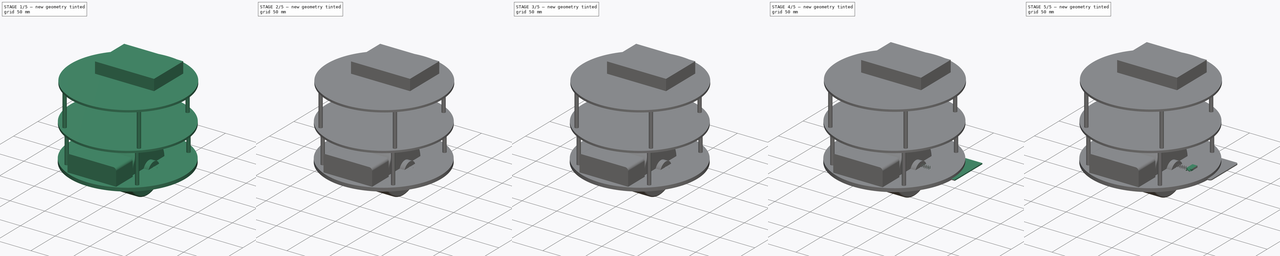
[diagram: build sequence overview — one tinted view per stage of 5, left to right]
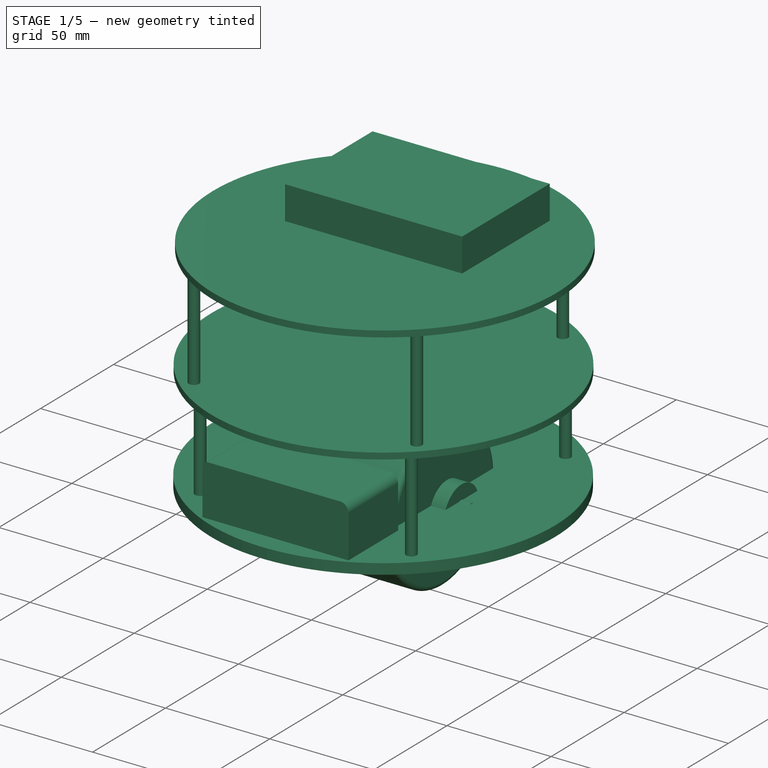
[diagram: stage 1 of 5 — iso view after this stage's code; geometry added in this stage tinted green]
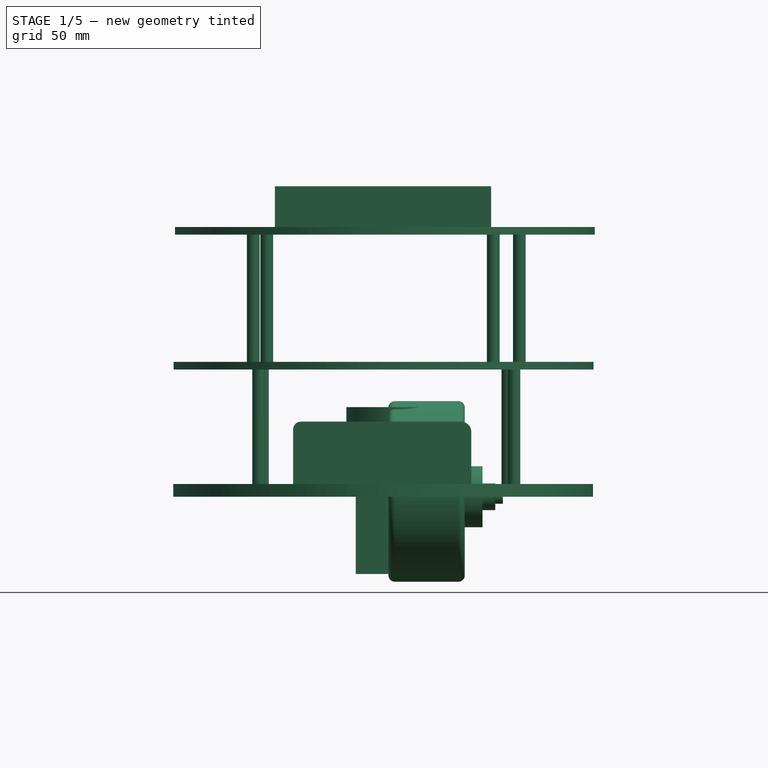
[diagram: stage 1 of 5 — front view after this stage's code; geometry added in this stage tinted green]
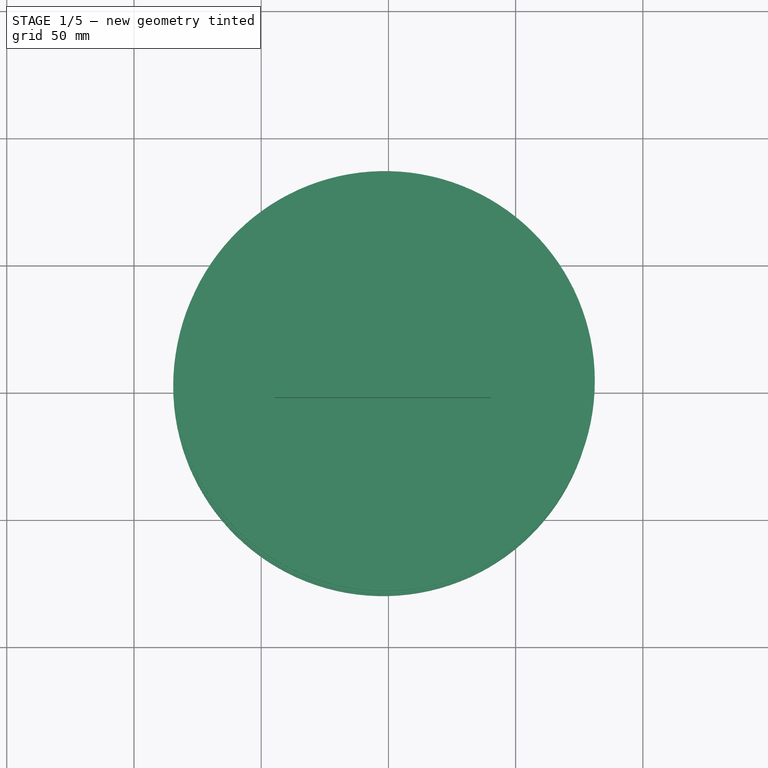
[diagram: stage 1 of 5 — top view after this stage's code; geometry added in this stage tinted green]
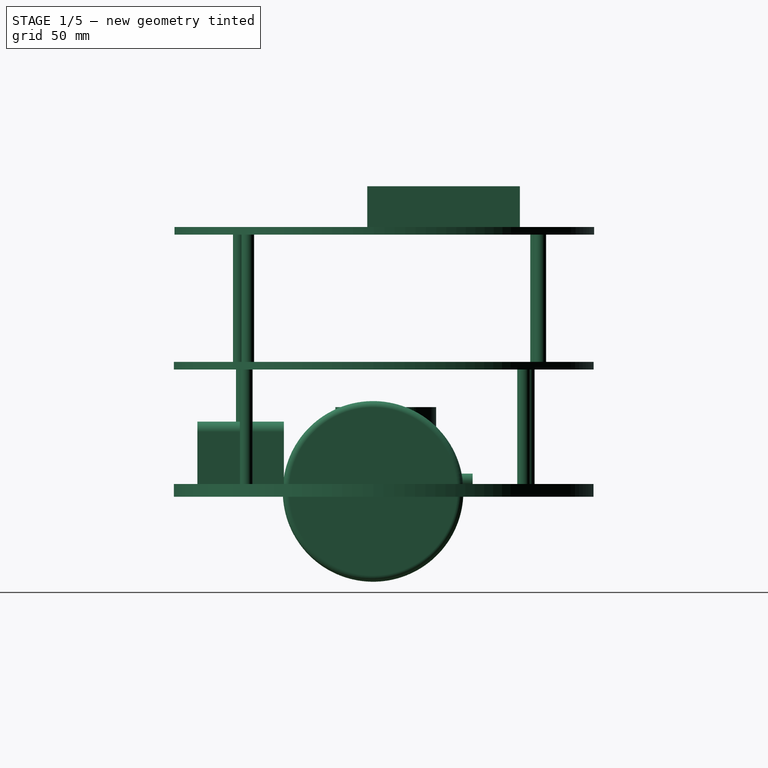
[diagram: stage 1 of 5 — right view after this stage's code; geometry added in this stage tinted green]
FCSTD DOCUMENT  (FreeCAD 1.0R39319 (Git))
Label: futbot
License: Creative Commons Attribution 4.0
LicenseURL: https://creativecommons.org/licenses/by/4.0/
objects: Part::Box×57, Sketcher::SketchObject×49, Part::FeaturePython×41, Part::MultiFuse×31, PartDesign::Pad×25, Part::Cut×17, App::Part×15, Part::Extrusion×15, Part::Fillet×14, App::Link×14, Part::Wedge×8, PartDesign::Pocket×8, PartDesign::Body×8, PartDesign::Fillet×6, Part::Chamfer×6, Part::Cylinder×3, Part::MultiCommon×3, PartDesign::Plane×2, Part::Mirroring×1, Part::Cone×1, +1 more types
note: 414 computed .brp shape members not serialized (recipe doc carries the construction recipe); baked Part::Feature solids carry a one-line shape summary decoded from their .brp

FEATURE [Sketcher::SketchObject] Sketch
  ArcFitTolerance = 1e-06
  AttachmentSupport = -> [XY_Plane]
  FullyConstrained = false
  MakeInternals = false
  MapMode = 5
  sketch-geometry (1):
    g0: Circle CenterX=-2.08618 CenterY=2.08626 CenterZ=0 NormalX=0 NormalY=0 NormalZ=1 AngleXU=0 Radius=82.5
  constraints (1):
    c: Diameter(g0) = 165
FEATURE [PartDesign::Pad] Pad
  Direction = (0,0,1)
  Length = 5
  Length2 = 10
  Profile = -> Sketch
  ReferenceAxis = -> Sketch [N_Axis]
  Refine = true
  Suppressed = false
  Type = 0
FEATURE [Sketcher::SketchObject] Sketch002
  ArcFitTolerance = 1e-06
  FullyConstrained = false
  MakeInternals = false
  MapMode = 5
  Placement = pos=(0,0,5) rot=(0,0,1;0rad)
  sketch-geometry (4):
    g0: LineSegment StartX=-37.4321 StartY=-37.1502 StartZ=0 EndX=-37.4321 EndY=-71.1502 EndZ=0
    g1: LineSegment StartX=-37.4321 StartY=-71.1502 StartZ=0 EndX=32.5679 EndY=-71.1502 EndZ=0
    g2: LineSegment StartX=32.5679 StartY=-71.1502 StartZ=0 EndX=32.5679 EndY=-37.1502 EndZ=0
    g3: LineSegment StartX=32.5679 StartY=-37.1502 StartZ=0 EndX=-37.4321 EndY=-37.1502 EndZ=0
  constraints (10):
    c: Coincident(g0,g1)
    c: Coincident(g1,g2)
    c: Coincident(g2,g3)
    c: Coincident(g3,g0)
    c: Vertical(g0)
    c: Vertical(g2)
    c: Horizontal(g1)
    c: Horizontal(g3)
    c: DistanceX(g3,g3) = 70
    c: DistanceY(g2,g2) = 34
FEATURE [PartDesign::Pad] Pad002
  BaseFeature = -> Pad
  Direction = (0,0,1)
  Length = 24.5
  Length2 = 10
  Profile = -> Sketch002
  ReferenceAxis = -> Sketch002 [N_Axis]
  Refine = true
  Suppressed = false
  Type = 0
FEATURE [Sketcher::SketchObject] Sketch003
  ArcFitTolerance = 1e-06
  AttachmentSupport = -> [Pad002]
  FullyConstrained = false
  MakeInternals = false
  MapMode = 5
  Placement = pos=(0,0,5) rot=(0,0,1;0rad)
  sketch-geometry (4):
    g0: Circle CenterX=-49.5124 CenterY=58.8774 CenterZ=0 NormalX=0 NormalY=0 NormalZ=1 AngleXU=0 Radius=2.5
    g1: Circle CenterX=46.9377 CenterY=57.0802 CenterZ=0 NormalX=0 NormalY=0 NormalZ=1 AngleXU=0 Radius=2.5
    g2: Circle CenterX=-51.0101 CenterY=-53.4481 CenterZ=0 NormalX=0 NormalY=0 NormalZ=1 AngleXU=0 Radius=2.5
    g3: Circle CenterX=49.334 CenterY=-51.9504 CenterZ=0 NormalX=0 NormalY=0 NormalZ=1 AngleXU=0 Radius=2.5
  constraints (4):
    c: Diameter(g0) = 5
    c: Diameter(g1) = 5
    c: Diameter(g2) = 5
    c: Diameter(g3) = 5
FEATURE [PartDesign::Pad] Pad003
  BaseFeature = -> Pad002
  Direction = (0,0,1)
  Length = 45
  Length2 = 10
  Profile = -> Sketch003
  ReferenceAxis = -> Sketch003 [N_Axis]
  Refine = true
  Suppressed = false
  Type = 0
FEATURE [PartDesign::Fillet] Fillet
  Base = -> Pad003 [Edge21]
  BaseFeature = -> Pad003
  Radius = 4
  Refine = true
  SupportTransform = false
  Suppressed = false
  UseAllEdges = false
FEATURE [PartDesign::Fillet] Fillet001
  Base = -> Fillet [Edge19]
  BaseFeature = -> Fillet
  Radius = 3
  Refine = true
  SupportTransform = false
  Suppressed = false
  UseAllEdges = false
FEATURE [PartDesign::Plane] DatumPlane
  AttachmentSupport = -> [Fillet001]
  Length = 198.362
  MapMode = 5
  Placement = pos=(0,0,50) rot=(0,0,1;0rad)
  ResizeMode = 0
  Width = 198.078
FEATURE [Sketcher::SketchObject] Sketch008
  ArcFitTolerance = 1e-06
  AttachmentSupport = -> [DatumPlane]
  FullyConstrained = false
  MakeInternals = false
  MapMode = 5
  Placement = pos=(0,0,50) rot=(0,0,1;0rad)
  sketch-geometry (1):
    g0: Circle CenterX=-1.91446 CenterY=2.09682 CenterZ=0 NormalX=0 NormalY=0 NormalZ=1 AngleXU=0 Radius=82.5
  constraints (1):
    c: Diameter(g0) = 165
FEATURE [PartDesign::Pad] Pad004
  BaseFeature = -> Fillet001
  Direction = (0,0,1)
  Length = 3
  Length2 = 10
  Profile = -> Sketch008
  ReferenceAxis = -> Sketch008 [N_Axis]
  Refine = true
  Suppressed = false
  Type = 0
FEATURE [App::Link] Link010  label="Cube047"
  LinkPlacement = pos=(-2.7,11,-0.035) rot=(0,0,1;0rad)
  LinkedObject = -> Box002
  Placement = pos=(-2.7,11,-0.035) rot=(0,0,1;0rad)
FEATURE [App::Link] Link011  label="Cube048"
  LinkPlacement = pos=(-4.9,11,-0.035) rot=(0,0,1;0rad)
  LinkedObject = -> Box071
  Placement = pos=(-4.9,11,-0.035) rot=(0,0,1;0rad)
FEATURE [App::Link] Link003  label="Cube049"
  LinkPlacement = pos=(-3.8,11,-0.035) rot=(0,0,1;0rad)
  LinkedObject = -> Box071
  Placement = pos=(-3.8,11,-0.035) rot=(0,0,1;0rad)
FEATURE [App::Link] Link012  label="Cube050"
  LinkPlacement = pos=(-1.6,11,-0.035) rot=(0,0,1;0rad)
  LinkedObject = -> Box071
  Placement = pos=(-1.6,11,-0.035) rot=(0,0,1;0rad)
FEATURE [App::Link] Link013  label="Cube051"
  LinkPlacement = pos=(1.7,11,-0.035) rot=(0,0,1;0rad)
  LinkedObject = -> Box071
  Placement = pos=(1.7,11,-0.035) rot=(0,0,1;0rad)
FEATURE [App::Link] Link014  label="Cube052"
  LinkPlacement = pos=(0.6,11,-0.035) rot=(0,0,1;0rad)
  LinkedObject = -> Box071
  Placement = pos=(0.6,11,-0.035) rot=(0,0,1;0rad)
FEATURE [Sketcher::SketchObject] Sketch022
  ArcFitTolerance = 0
  FullyConstrained = true
  MakeInternals = false
  sketch-geometry (16):
    g0: LineSegment StartX=-5.5 StartY=0.5 StartZ=0 EndX=-5.5 EndY=14.5 EndZ=0
    g1: LineSegment StartX=-5 StartY=15 StartZ=0 EndX=3.8 EndY=15 EndZ=0
    g2: LineSegment StartX=4.3 StartY=14.5 StartZ=0 EndX=4.3 EndY=10.2 EndZ=0
    g3: LineSegment StartX=4.3 StartY=10.2 StartZ=0 EndX=5.5 EndY=9 EndZ=0
    g4: LineSegment StartX=5.5 StartY=9 StartZ=0 EndX=5.5 EndY=7.2 EndZ=0
    g5: LineSegment StartX=5.5 StartY=7.2 StartZ=0 EndX=4.9 EndY=7.2 EndZ=0
    g6: LineSegment StartX=4.9 StartY=7.2 StartZ=0 EndX=4.9 EndY=6 EndZ=0
    g7: LineSegment StartX=4.9 StartY=6 StartZ=0 EndX=5.5 EndY=5.4 EndZ=0
    g8: LineSegment StartX=5.5 StartY=5.4 StartZ=0 EndX=5.5 EndY=0.5 EndZ=0
    g9: LineSegment StartX=5 StartY=0 StartZ=0 EndX=-5 EndY=0 EndZ=0
    g10: ArcOfCircle CenterX=-5 CenterY=14.5 CenterZ=0 NormalX=0 NormalY=0 NormalZ=1 AngleXU=0 Radius=0.5 StartAngle=1.5708 EndAngle=3.14159
    g11: ArcOfCircle CenterX=3.8 CenterY=14.5 CenterZ=0 NormalX=0 NormalY=0 NormalZ=1 AngleXU=0 Radius=0.5 StartAngle=6.28319 EndAngle=7.85398
    g12: ArcOfCircle CenterX=5 CenterY=0.5 CenterZ=0 NormalX=0 NormalY=0 NormalZ=1 AngleXU=0 Radius=0.5 StartAngle=4.71239 EndAngle=6.28319
    g13: ArcOfCircle CenterX=-5 CenterY=0.5 CenterZ=0 NormalX=0 NormalY=0 NormalZ=1 AngleXU=0 Radius=0.5 StartAngle=3.14159 EndAngle=4.71239
    g14: LineSegment [constr] StartX=-5 StartY=0.5 StartZ=0 EndX=-5 EndY=14.5 EndZ=0
    g15: LineSegment [constr] StartX=-5 StartY=14.5 StartZ=0 EndX=3.8 EndY=14.5 EndZ=0
  constraints (49):
    c: Coincident(g13,g9)
    c: Coincident(g13,g0)
    c: Coincident(g10,g0)
    c: Coincident(g1,g10)
    c: Coincident(g1,g11)
    c: Coincident(g11,g2)
    c: Coincident(g2,g3)
    c: Coincident(g3,g4)
    c: Coincident(g4,g5)
    c: Coincident(g5,g6)
    c: Coincident(g6,g7)
    c: Coincident(g7,g8)
    c: Coincident(g8,g12)
    c: Coincident(g12,g9)
    c: Symmetric(g13,g12,g-2)
    c: Horizontal(g9)
    c: PointOnObject(g-1,g9)
    c: Coincident(g14,g13)
    c: Coincident(g14,g10)
    c: Coincident(g10,g15)
    c: Coincident(g15,g11)
    c: Horizontal(g15)
    c: Horizontal(g1)
    c: Vertical(g14)
    c: Vertical(g0)
    c: Tangent(g9,g13)
    c: Tangent(g13,g0)
    c: Tangent(g0,g10)
    c: Tangent(g10,g1)
    c: Tangent(g1,g11)
    c: Tangent(g11,g2)
    c: Tangent(g9,g12)
    c: Tangent(g12,g8)
    c: Vertical(g2)
    c: Vertical(g4)
    c: Vertical(g6)
    c: Vertical(g8)
    c: Horizontal(g5)
    c: PointOnObject(g7,g4)
    c: Parallel(g7,g3)
    c: Radius(g10) = 0.5
    c: DistanceX(g0,g8) = 11
    c: DistanceY(g9,g1) = 15
    c: Angle(g7,g9) = 0.785398
    c: DistanceY(g9,g3) = 9
    c: DistanceY(g9,g4) = 7.2
    c: DistanceY(g9,g7) = 5.4
    c: DistanceX(g6,g8) = 0.6
    c: DistanceX(g2,g8) = 1.2
FEATURE [Part::Extrusion] Extrude017  label="Extrude021"
  Base = -> Sketch022
  Dir = (0,0,1)
  DirMode = 2
  FaceMakerClass = Part::FaceMakerBullseye
  FaceMakerMode = 3
  LengthFwd = 1
  LengthRev = 0
  Solid = true
  Symmetric = false
FEATURE [Part::Cone] Cone
  Angle = 360
  AttacherType = Attacher::AttachEngine3D
  Height = 0.3
  Placement = pos=(0,-36.4,0.7) rot=(0,0,1;0rad)
  Radius1 = 38.2
  Radius2 = 38
FEATURE [Part::Box] Box071  label="Cube053"
  AttacherType = Attacher::AttachEngine3D
  Height = 0.035
  Length = 0.8
  Placement = pos=(2.8,11,-0.035) rot=(0,0,1;0rad)
  Width = 3
FEATURE [Part::Box] Box072  label="Cube054"
  AttacherType = Attacher::AttachEngine3D
  Height = 0.3
  Length = 11
  Placement = pos=(-5.5,0,0.7) rot=(0,0,1;0rad)
  Width = 15
FEATURE [Part::Cut] Cut018
  Base = -> Box072
  Refine = true
  Tool = -> Cone
FEATURE [Part::Box] Box002  label="Cube055"
  AttacherType = Attacher::AttachEngine3D
  Height = 0.035
  Length = 0.8
  Placement = pos=(-0.5,11,-0.035) rot=(0,0,1;0rad)
  Width = 3.3
FEATURE [Part::MultiFuse] Fusion053  label="Contacts"
  Refine = true
  Shapes = -> [Box071,Link013,Link014,Link012,Link003,Link011,Box002,Link010]
FEATURE [App::Part] Part019  label="SD Card"
  Group = -> [Cut018,Sketch022,Extrude017,Cone,Box072,Cut019,Link010,Link011,Link003,Link012,Link013,Link014,Box071,Box002,Fusion053]
  Origin = -> Origin020
  Placement = pos=(-2.1,28,-0.5) rot=(0.707107,0.707107,0;3.14159rad)
FEATURE [App::Part] Part  label="PCBA: Raspberry Pi 4B"
  Group = -> [Array,Fillet002,Box,Cylinder,Cut,Part008,Box030,Box029,Part009,Part010,Part012,Box044,Link004,Link005,Part013,Box033,Part006,Part007,Part011,Part014,Part015,Cylinder001,Box054,Fusion043,Cut010,Cylinder002,Fillet012,Part016,Part017,Link008,Part018,Link009,Fusion052,Cut017,Box069,Box068,Box070,Fillet014,Fillet015,Part019]
  License = CC BY-NC-SA 4.0
  LicenseURL = http://creativecommons.org/licenses/by-nc-sa/4.0/
  Origin = -> Origin018
  Placement = pos=(-45,-62,105.5) rot=(0,0,1;0rad)
FEATURE [Sketcher::SketchObject] Sketch024
  ArcFitTolerance = 1e-06
  FullyConstrained = false
  MakeInternals = false
  MapMode = 5
  Placement = pos=(0,79.2958,0) rot=(0,0.707107,0.707107;3.14159rad)
  sketch-geometry (4):
    g0: LineSegment StartX=-7.16249 StartY=80.5088 StartZ=0 EndX=-7.16249 EndY=65.5088 EndZ=0
    g1: LineSegment StartX=-7.16249 StartY=65.5088 StartZ=0 EndX=7.83751 EndY=65.5088 EndZ=0
    g2: LineSegment StartX=7.83751 StartY=65.5088 StartZ=0 EndX=7.83751 EndY=80.5088 EndZ=0
    g3: LineSegment StartX=7.83751 StartY=80.5088 StartZ=0 EndX=-7.16249 EndY=80.5088 EndZ=0
  constraints (10):
    c: Coincident(g0,g1)
    c: Coincident(g1,g2)
    c: Coincident(g2,g3)
    c: Coincident(g3,g0)
    c: Vertical(g0)
    c: Vertical(g2)
    c: Horizontal(g1)
    c: Horizontal(g3)
    c: DistanceX(g3,g3) = 15
    c: DistanceY(g2,g2) = 15
FEATURE [PartDesign::Pad] Pad006
  BaseFeature = -> Pad004
  Direction = (1e-16,1,-2e-16)
  Length = 10
  Length2 = 10
  Profile = -> Sketch024
  ReferenceAxis = -> Sketch024 [N_Axis]
  Refine = true
  Suppressed = false
  Type = 0
FEATURE [Sketcher::SketchObject] Sketch026
  ArcFitTolerance = 1e-06
  FullyConstrained = false
  MakeInternals = false
  MapMode = 5
  Placement = pos=(0,0,53) rot=(0,0,1;0rad)
  sketch-geometry (4):
    g0: Circle CenterX=-47.8055 CenterY=62.1638 CenterZ=0 NormalX=0 NormalY=0 NormalZ=1 AngleXU=0 Radius=2.5
    g1: Circle CenterX=41.1821 CenterY=63.4293 CenterZ=0 NormalX=0 NormalY=0 NormalZ=1 AngleXU=0 Radius=2.5
    g2: Circle CenterX=-53.1273 CenterY=-54.6618 CenterZ=0 NormalX=0 NormalY=0 NormalZ=1 AngleXU=0 Radius=2.5
    g3: Circle CenterX=51.4464 CenterY=-51.3399 CenterZ=0 NormalX=0 NormalY=0 NormalZ=1 AngleXU=0 Radius=2.5
  constraints (4):
    c: Diameter(g0) = 5
    c: Diameter(g1) = 5
    c: Diameter(g2) = 5
    c: Diameter(g3) = 5
FEATURE [PartDesign::Pad] Pad008
  BaseFeature = -> Pad006
  Direction = (0,0,1)
  Length = 50
  Length2 = 10
  Profile = -> Sketch026
  ReferenceAxis = -> Sketch026 [N_Axis]
  Refine = true
  Suppressed = false
  Type = 0
FEATURE [PartDesign::Plane] DatumPlane001
  AttachmentSupport = -> [Pad008]
  Length = 198.362
  MapMode = 5
  Placement = pos=(0,0,103) rot=(0,0,1;0rad)
  ResizeMode = 0
  Width = 198.078
FEATURE [Sketcher::SketchObject] Sketch027
  ArcFitTolerance = 1e-06
  AttachmentSupport = -> [DatumPlane001]
  FullyConstrained = false
  MakeInternals = false
  MapMode = 5
  Placement = pos=(0,0,103) rot=(0,0,1;0rad)
  sketch-geometry (1):
    g0: Circle CenterX=-1.38772 CenterY=2.31443 CenterZ=0 NormalX=0 NormalY=0 NormalZ=1 AngleXU=0 Radius=82.5
  constraints (1):
    c: Diameter(g0) = 165
FEATURE [PartDesign::Pad] Pad009
  BaseFeature = -> Pad008
  Direction = (0,0,1)
  Length = 3
  Length2 = 10
  Profile = -> Sketch027
  ReferenceAxis = -> Sketch027 [N_Axis]
  Refine = true
  Suppressed = false
  Type = 0
FEATURE [Sketcher::SketchObject] Sketch030
  ArcFitTolerance = 1e-06
  AttachmentSupport = -> [YZ_Plane021]
  FullyConstrained = false
  MakeInternals = false
  MapMode = 5
  Placement = pos=(0,0,0) rot=(0.57735,0.57735,0.57735;2.0944rad)
  sketch-geometry (1):
    g0: Circle CenterX=-2.0864 CenterY=2.08625 CenterZ=0 NormalX=0 NormalY=0 NormalZ=1 AngleXU=0 Radius=35.5
  constraints (1):
    c: Diameter(g0) = 71
FEATURE [PartDesign::Pad] Pad012
  Direction = (1,0,0)
  Length = 30
  Length2 = 10
  Placement = pos=(0,0,0) rot=(1,1,1;2.0944rad)
  Profile = -> Sketch030
  ReferenceAxis = -> Sketch030 [N_Axis]
  Refine = true
  Suppressed = false
  Type = 0
FEATURE [Sketcher::SketchObject] Sketch031
  ArcFitTolerance = 1e-06
  AttachmentSupport = -> [Pad012]
  FullyConstrained = false
  MakeInternals = false
  MapMode = 5
  Placement = pos=(0,0,0) rot=(0.57735,0.57735,-0.57735;4.18879rad)
  sketch-geometry (1):
    g0: Circle CenterX=-1.66476 CenterY=-2.11974 CenterZ=0 NormalX=0 NormalY=0 NormalZ=1 AngleXU=0 Radius=24
  constraints (1):
    c: Diameter(g0) = 48
FEATURE [PartDesign::Pocket] Pocket
  BaseFeature = -> Pad012
  Direction = (1,0,0)
  Length = 25
  Length2 = 5
  Placement = pos=(0,0,0) rot=(1,1,1;2.0944rad)
  Profile = -> Sketch031
  ReferenceAxis = -> Sketch031 [N_Axis]
  Refine = true
  Suppressed = false
  Type = 0
FEATURE [Sketcher::SketchObject] Sketch032
  ArcFitTolerance = 1e-06
  AttachmentSupport = -> [Pocket]
  FullyConstrained = false
  MakeInternals = false
  MapMode = 5
  Placement = pos=(25,0,0) rot=(0.57735,0.57735,-0.57735;4.18879rad)
  sketch-geometry (1):
    g0: Circle CenterX=-1.35082 CenterY=-2.73267 CenterZ=0 NormalX=0 NormalY=0 NormalZ=1 AngleXU=0 Radius=8
  constraints (1):
    c: Diameter(g0) = 16
FEATURE [PartDesign::Pad] Pad013
  BaseFeature = -> Pocket
  Direction = (-1,0,0)
  Length = 12
  Length2 = 10
  Placement = pos=(0,0,0) rot=(1,1,1;2.0944rad)
  Profile = -> Sketch032
  ReferenceAxis = -> Sketch032 [N_Axis]
  Refine = true
  Suppressed = false
  Type = 0
FEATURE [Sketcher::SketchObject] Sketch033
  ArcFitTolerance = 1e-06
  AttachmentSupport = -> [Pad013]
  FullyConstrained = false
  MakeInternals = false
  MapMode = 5
  Placement = pos=(13,0,0) rot=(0.57735,0.57735,-0.57735;4.18879rad)
  sketch-geometry (7):
    g0: LineSegment StartX=-1.11187 StartY=4.24801 StartZ=0 EndX=-7.22276 EndY=0.700721 EndZ=0
    g1: LineSegment StartX=-7.22276 StartY=0.700721 StartZ=0 EndX=-7.20616 EndY=-6.36511 EndZ=0
    g2: LineSegment StartX=-7.20616 StartY=-6.36511 StartZ=0 EndX=-1.07867 EndY=-9.88365 EndZ=0
    g3: LineSegment StartX=-1.07867 StartY=-9.88365 StartZ=0 EndX=5.03222 EndY=-6.33636 EndZ=0
    g4: LineSegment StartX=5.03222 StartY=-6.33636 StartZ=0 EndX=5.01562 EndY=0.729474 EndZ=0
    g5: LineSegment StartX=5.01562 StartY=0.729474 StartZ=0 EndX=-1.11187 EndY=4.24801 EndZ=0
    g6: Circle [constr] CenterX=-1.09527 CenterY=-2.81782 CenterZ=0 NormalX=0 NormalY=0 NormalZ=1 AngleXU=0 Radius=7.06585
  constraints (13):
    c: Coincident(g0,g1)
    c: Coincident(g1,g2)
    c: Coincident(g2,g3)
    c: Coincident(g3,g4)
    c: Coincident(g4,g5)
    c: Coincident(g5,g0)
    c: Equal(g0, g1-g5) x5
    c: PointOnObject(g0,g6)
    c: PointOnObject(g1,g6)
    c: PointOnObject(g2,g6)
    c: PointOnObject(g3,g6)
    c: PointOnObject(g4,g6)
    c: PointOnObject(g5,g6)
FEATURE [PartDesign::Pocket] Pocket001
  BaseFeature = -> Pad013
  Direction = (1,0,0)
  Length = 3
  Length2 = 5
  Placement = pos=(0,0,0) rot=(1,1,1;2.0944rad)
  Profile = -> Sketch033
  ReferenceAxis = -> Sketch033 [N_Axis]
  Refine = true
  Suppressed = false
  Type = 0
FEATURE [Sketcher::SketchObject] Sketch004
  ArcFitTolerance = 1e-06
  AttachmentSupport = -> [Pocket001]
  FullyConstrained = false
  MakeInternals = false
  MapMode = 5
  Placement = pos=(16,0,0) rot=(0.57735,0.57735,-0.57735;4.18879rad)
  sketch-geometry (1):
    g0: Circle CenterX=-0.927213 CenterY=-2.79304 CenterZ=0 NormalX=0 NormalY=0 NormalZ=1 AngleXU=0 Radius=1.5
  constraints (1):
    c: Diameter(g0) = 3
FEATURE [PartDesign::Pocket] Pocket002
  BaseFeature = -> Pocket001
  Direction = (1,0,0)
  Length = 3
  Length2 = 5
  Placement = pos=(0,0,0) rot=(1,1,1;2.0944rad)
  Profile = -> Sketch004
  ReferenceAxis = -> Sketch004 [N_Axis]
  Refine = true
  Suppressed = false
  Type = 0
FEATURE [PartDesign::Fillet] Fillet016  label="Fillet018"
  Base = -> Pocket002 [Edge2]
  BaseFeature = -> Pocket002
  Placement = pos=(0,0,0) rot=(1,1,1;2.0944rad)
  Radius = 3
  Refine = true
  SupportTransform = false
  Suppressed = false
  UseAllEdges = false
FEATURE [PartDesign::Fillet] Fillet017  label="Fillet019"
  Base = -> Fillet016 [Edge3]
  BaseFeature = -> Fillet016
  Placement = pos=(0,0,0) rot=(1,1,1;2.0944rad)
  Radius = 3
  Refine = true
  SupportTransform = false
  Suppressed = false
  UseAllEdges = false
FEATURE [PartDesign::Body] Body001  label="Body008"
  AllowCompound = false
  Group = -> [Sketch030,Pad012,Sketch031,Pocket,Sketch032,Pad013,Sketch033,Pocket001,Sketch004,Pocket002,Fillet016,Fillet017]
  Origin = -> Origin021
  Placement = pos=(77,-11,5) rot=(0,0,1;0rad)
  Tip = -> Fillet017
FEATURE [Sketcher::SketchObject] Sketch034
  ArcFitTolerance = 1e-06
  AttachmentSupport = -> [YZ_Plane022]
  FullyConstrained = false
  MakeInternals = false
  MapMode = 5
  Placement = pos=(0,0,0) rot=(0.57735,0.57735,0.57735;2.0944rad)
  sketch-geometry (1):
    g0: Circle CenterX=-2.08628 CenterY=2.08615 CenterZ=0 NormalX=0 NormalY=0 NormalZ=1 AngleXU=0 Radius=35.5
  constraints (1):
    c: Diameter(g0) = 71
FEATURE [PartDesign::Pad] Pad014
  Direction = (1,0,0)
  Length = 30
  Length2 = 10
  Placement = pos=(0,0,0) rot=(1,1,1;2.0944rad)
  Profile = -> Sketch034
  ReferenceAxis = -> Sketch034 [N_Axis]
  Refine = true
  Suppressed = false
  Type = 0
FEATURE [Sketcher::SketchObject] Sketch035
  ArcFitTolerance = 1e-06
  AttachmentSupport = -> [Pad014]
  FullyConstrained = false
  MakeInternals = false
  MapMode = 5
  Placement = pos=(30,0,0) rot=(0.57735,0.57735,0.57735;2.0944rad)
  sketch-geometry (1):
    g0: Circle CenterX=-2.49007 CenterY=1.41343 CenterZ=0 NormalX=0 NormalY=0 NormalZ=1 AngleXU=0 Radius=24
  constraints (1):
    c: Diameter(g0) = 48
FEATURE [PartDesign::Fillet] Fillet018  label="Fillet020"
  Base = -> Pad014 [Edge3]
  BaseFeature = -> Pad014
  Placement = pos=(0,0,0) rot=(1,1,1;2.0944rad)
  Radius = 2.5
  Refine = true
  SupportTransform = false
  Suppressed = false
  UseAllEdges = false
FEATURE [PartDesign::Fillet] Fillet019  label="Fillet021"
  Base = -> Fillet018 [Edge3]
  BaseFeature = -> Fillet018
  Placement = pos=(0,0,0) rot=(1,1,1;2.0944rad)
  Radius = 2.5
  Refine = true
  SupportTransform = false
  Suppressed = false
  UseAllEdges = false
FEATURE [PartDesign::Pocket] Pocket003
  BaseFeature = -> Fillet019
  Direction = (-1,0,0)
  Length = 20
  Length2 = 5
  Placement = pos=(0,0,0) rot=(1,1,1;2.0944rad)
  Profile = -> Sketch035
  ReferenceAxis = -> Sketch035 [N_Axis]
  Refine = true
  Suppressed = false
  Type = 0
FEATURE [Sketcher::SketchObject] Sketch036
  ArcFitTolerance = 1e-06
  AttachmentSupport = -> [Pocket003]
  FullyConstrained = false
  MakeInternals = false
  MapMode = 5
  Placement = pos=(10,0,0) rot=(0.57735,0.57735,0.57735;2.0944rad)
  sketch-geometry (1):
    g0: Circle CenterX=-1.10678 CenterY=1.90225 CenterZ=0 NormalX=0 NormalY=0 NormalZ=1 AngleXU=0 Radius=8.25
  constraints (1):
    c: Diameter(g0) = 16.5
FEATURE [PartDesign::Pad] Pad015
  BaseFeature = -> Pocket003
  Direction = (1,0,0)
  Length = 12
  Length2 = 10
  Placement = pos=(0,0,0) rot=(1,1,1;2.0944rad)
  Profile = -> Sketch036
  ReferenceAxis = -> Sketch036 [N_Axis]
  Refine = true
  Suppressed = false
  Type = 0
FEATURE [Sketcher::SketchObject] Sketch037
  ArcFitTolerance = 1e-06
  AttachmentSupport = -> [Pad015]
  FullyConstrained = false
  MakeInternals = false
  MapMode = 5
  Placement = pos=(22,0,0) rot=(0.57735,0.57735,0.57735;2.0944rad)
  sketch-geometry (7):
    g0: LineSegment StartX=4.85295 StartY=4.98885 StartZ=0 EndX=-1.20923 EndY=8.48885 EndZ=0
    g1: LineSegment StartX=-1.20923 StartY=8.48885 StartZ=0 EndX=-7.27141 EndY=4.98885 EndZ=0
    g2: LineSegment StartX=-7.27141 StartY=4.98885 StartZ=0 EndX=-7.27141 EndY=-2.01115 EndZ=0
    g3: LineSegment StartX=-7.27141 StartY=-2.01115 StartZ=0 EndX=-1.20923 EndY=-5.51115 EndZ=0
    g4: LineSegment StartX=-1.20923 StartY=-5.51115 StartZ=0 EndX=4.85295 EndY=-2.01115 EndZ=0
    g5: LineSegment StartX=4.85295 StartY=-2.01115 StartZ=0 EndX=4.85295 EndY=4.98885 EndZ=0
    g6: Circle [constr] CenterX=-1.20923 CenterY=1.48885 CenterZ=0 NormalX=0 NormalY=0 NormalZ=1 AngleXU=0 Radius=7
  constraints (15):
    c: Coincident(g0,g1)
    c: Coincident(g1,g2)
    c: Coincident(g2,g3)
    c: Coincident(g3,g4)
    c: Coincident(g4,g5)
    c: Coincident(g5,g0)
    c: Equal(g0, g1-g5) x5
    c: PointOnObject(g0,g6)
    c: PointOnObject(g1,g6)
    c: PointOnObject(g2,g6)
    c: PointOnObject(g3,g6)
    c: PointOnObject(g4,g6)
    c: PointOnObject(g5,g6)
    c: Distance(g0,g0) = 7
    c: DistanceY(g5,g5) = 7
FEATURE [PartDesign::Pocket] Pocket004
  BaseFeature = -> Pad015
  Direction = (-1,0,0)
  Length = 2.5
  Length2 = 5
  Placement = pos=(0,0,0) rot=(1,1,1;2.0944rad)
  Profile = -> Sketch037
  ReferenceAxis = -> Sketch037 [N_Axis]
  Refine = true
  Suppressed = false
  Type = 0
FEATURE [Sketcher::SketchObject] Sketch038
  ArcFitTolerance = 1e-06
  AttachmentSupport = -> [Pocket004]
  FullyConstrained = false
  MakeInternals = false
  MapMode = 5
  Placement = pos=(19.5,0,0) rot=(0.57735,0.57735,0.57735;2.0944rad)
  sketch-geometry (1):
    g0: Circle CenterX=-1.04009 CenterY=1.34355 CenterZ=0 NormalX=0 NormalY=0 NormalZ=1 AngleXU=0 Radius=1.5
  constraints (1):
    c: Diameter(g0) = 3
FEATURE [PartDesign::Pocket] Pocket005
  BaseFeature = -> Pocket004
  Direction = (-1,0,0)
  Length = 3.5
  Length2 = 5
  Placement = pos=(0,0,0) rot=(1,1,1;2.0944rad)
  Profile = -> Sketch038
  ReferenceAxis = -> Sketch038 [N_Axis]
  Refine = true
  Suppressed = false
  Type = 0
FEATURE [PartDesign::Body] Body002  label="Body009"
  AllowCompound = false
  Group = -> [Sketch034,Pad014,Sketch035,Fillet018,Fillet019,Pocket003,Sketch036,Pad015,Sketch037,Pocket004,Sketch038,Pocket005]
  Origin = -> Origin022
  Placement = pos=(-112,-11,5) rot=(0,0,1;0rad)
  Tip = -> Pocket005
FEATURE [Sketcher::SketchObject] Sketch039
  ArcFitTolerance = 1e-06
  AttachmentSupport = -> [XY_Plane023]
  FullyConstrained = false
  MakeInternals = false
  MapMode = 5
  sketch-geometry (4):
    g0: LineSegment StartX=-17.3005 StartY=23.5417 StartZ=0 EndX=-17.3005 EndY=-17.4583 EndZ=0
    g1: LineSegment StartX=-17.3005 StartY=-17.4583 StartZ=0 EndX=23.6995 EndY=-17.4583 EndZ=0
    g2: LineSegment StartX=23.6995 StartY=-17.4583 StartZ=0 EndX=23.6995 EndY=23.5417 EndZ=0
    g3: LineSegment StartX=23.6995 StartY=23.5417 StartZ=0 EndX=-17.3005 EndY=23.5417 EndZ=0
  constraints (10):
    c: Coincident(g0,g1)
    c: Coincident(g1,g2)
    c: Coincident(g2,g3)
    c: Coincident(g3,g0)
    c: Vertical(g0)
    c: Vertical(g2)
    c: Horizontal(g1)
    c: Horizontal(g3)
    c: DistanceX(g1,g1) = 41
    c: DistanceY(g0,g0) = 41
FEATURE [PartDesign::Pad] Pad016
  Direction = (0,0,1)
  Length = 22.6
  Length2 = 10
  Profile = -> Sketch039
  ReferenceAxis = -> Sketch039 [N_Axis]
  Refine = true
  Suppressed = false
  Type = 0
FEATURE [Sketcher::SketchObject] Sketch040
  ArcFitTolerance = 1e-06
  AttachmentSupport = -> [Pad016]
  FullyConstrained = false
  MakeInternals = false
  MapMode = 5
  Placement = pos=(0,0,22.6) rot=(0,0,1;0rad)
  sketch-geometry (1):
    g0: Circle CenterX=3.29703 CenterY=2.8924 CenterZ=0 NormalX=0 NormalY=0 NormalZ=1 AngleXU=0 Radius=19.8
  constraints (1):
    c: Diameter(g0) = 39.6
FEATURE [PartDesign::Pad] Pad017
  BaseFeature = -> Pad016
  Direction = (0,0,1)
  Length = 12.6
  Length2 = 10
  Profile = -> Sketch040
  ReferenceAxis = -> Sketch040 [N_Axis]
  Refine = true
  Suppressed = false
  Type = 0
FEATURE [Sketcher::SketchObject] Sketch041
  ArcFitTolerance = 1e-06
  AttachmentSupport = -> [Pad017]
  FullyConstrained = false
  MakeInternals = false
  MapMode = 5
  Placement = pos=(0,-17.4583,0) rot=(1,0,0;1.5708rad)
  sketch-geometry (5):
    g0: LineSegment StartX=-1.04287 StartY=9.49271 StartZ=0 EndX=-1.04287 EndY=4.79271 EndZ=0
    g1: LineSegment StartX=-1.04287 StartY=4.79271 StartZ=0 EndX=7.95713 EndY=4.79271 EndZ=0
    g2: LineSegment StartX=7.95713 StartY=4.79271 StartZ=0 EndX=7.95713 EndY=9.49271 EndZ=0
    g3: LineSegment StartX=7.95713 StartY=9.49271 StartZ=0 EndX=-1.04287 EndY=9.49271 EndZ=0
    g4: GeomPoint [constr] X=3.45713 Y=7.14271 Z=0
  constraints (11):
    c: Coincident(g0,g1)
    c: Coincident(g1,g2)
    c: Coincident(g2,g3)
    c: Coincident(g3,g0)
    c: Vertical(g0)
    c: Vertical(g2)
    c: Horizontal(g1)
    c: Horizontal(g3)
    c: Symmetric(g2,g0,g4)
    c: DistanceX(g3,g3) = 9
    c: DistanceY(g2,g2) = 4.7
FEATURE [PartDesign::Pocket] Pocket006
  BaseFeature = -> Pad017
  Direction = (0,1,-2e-16)
  Length = 5
  Length2 = 5
  Profile = -> Sketch041
  ReferenceAxis = -> Sketch041 [N_Axis]
  Refine = true
  Suppressed = false
  Type = 0
FEATURE [PartDesign::Body] Body003  label="Body010"
  AllowCompound = false
  Group = -> [Sketch039,Pad016,Sketch040,Pad017,Sketch041,Pocket006]
  Origin = -> Origin023
  Placement = pos=(0,0,53) rot=(0,0,1;0rad)
  Tip = -> Pocket006
FEATURE [Sketcher::SketchObject] Sketch042
  ArcFitTolerance = 1e-06
  AttachmentSupport = -> [YZ_Plane024]
  FullyConstrained = true
  MakeInternals = false
  MapMode = 5
  Placement = pos=(0,0,0) rot=(0.57735,0.57735,0.57735;2.0944rad)
  sketch-geometry (1):
    g0: Circle CenterX=0 CenterY=0 CenterZ=0 NormalX=0 NormalY=0 NormalZ=1 AngleXU=0 Radius=12
  constraints (2):
    c: Coincident(g0,g-1)
    c: Diameter(g0) = 24
FEATURE [PartDesign::Pad] Pad018
  Direction = (1,0,0)
  Length = 37
  Length2 = 10
  Placement = pos=(0,0,0) rot=(1,1,1;2.0944rad)
  Profile = -> Sketch042
  ReferenceAxis = -> Sketch042 [N_Axis]
  Refine = true
  Suppressed = false
  Type = 0
FEATURE [Sketcher::SketchObject] Sketch001
  ArcFitTolerance = 1e-06
  AttachmentSupport = -> [Pad018]
  FullyConstrained = false
  MakeInternals = false
  MapMode = 5
  Placement = pos=(37,0,0) rot=(0.57735,0.57735,0.57735;2.0944rad)
  sketch-geometry (1):
    g0: Circle CenterX=-0.336656 CenterY=0 CenterZ=0 NormalX=0 NormalY=0 NormalZ=1 AngleXU=0 Radius=5.25
  constraints (2):
    c: PointOnObject(g0,g-1)
    c: Diameter(g0) = 10.5
FEATURE [PartDesign::Pad] Pad001
  BaseFeature = -> Pad018
  Direction = (1,0,0)
  Length = 5
  Length2 = 10
  Placement = pos=(0,0,0) rot=(1,1,1;2.0944rad)
  Profile = -> Sketch001
  ReferenceAxis = -> Sketch001 [N_Axis]
  Refine = true
  Suppressed = false
  Type = 0
FEATURE [Sketcher::SketchObject] Sketch043
  ArcFitTolerance = 1e-06
  AttachmentSupport = -> [Pad001]
  FullyConstrained = true
  MakeInternals = false
  MapMode = 5
  Placement = pos=(0,0,0) rot=(0.57735,0.57735,-0.57735;4.18879rad)
  sketch-geometry (1):
    g0: Circle CenterX=0 CenterY=0 CenterZ=0 NormalX=0 NormalY=0 NormalZ=1 AngleXU=0 Radius=2.75
  constraints (2):
    c: Coincident(g0,g-1)
    c: Diameter(g0) = 5.5
FEATURE [PartDesign::Pad] Pad019
  BaseFeature = -> Pad001
  Direction = (-1,0,0)
  Length = 8
  Length2 = 10
  Placement = pos=(0,0,0) rot=(1,1,1;2.0944rad)
  Profile = -> Sketch043
  ReferenceAxis = -> Sketch043 [N_Axis]
  Refine = true
  Suppressed = false
  Type = 0
  UseCustomVector = true
FEATURE [PartDesign::Body] Body004  label="Body011"
  AllowCompound = false
  Group = -> [Sketch042,Pad018,Sketch001,Pad001,Sketch043,Pad019]
  Origin = -> Origin024
  Placement = pos=(-77,-22,16) rot=(0,0,1;0rad)
  Tip = -> Pad019
FEATURE [Sketcher::SketchObject] Sketch044
  ArcFitTolerance = 1e-06
  AttachmentSupport = -> [YZ_Plane025]
  FullyConstrained = true
  MakeInternals = false
  MapMode = 5
  Placement = pos=(0,0,0) rot=(0.57735,0.57735,0.57735;2.0944rad)
  sketch-geometry (1):
    g0: Circle CenterX=0 CenterY=0 CenterZ=0 NormalX=0 NormalY=0 NormalZ=1 AngleXU=0 Radius=12
  constraints (2):
    c: Coincident(g0,g-1)
    c: Diameter(g0) = 24
FEATURE [PartDesign::Pad] Pad020
  Direction = (1,0,0)
  Length = 37
  Length2 = 10
  Placement = pos=(0,0,0) rot=(1,1,1;2.0944rad)
  Profile = -> Sketch044
  ReferenceAxis = -> Sketch044 [N_Axis]
  Refine = true
  Suppressed = false
  Type = 0
FEATURE [Sketcher::SketchObject] Sketch045
  ArcFitTolerance = 1e-06
  AttachmentSupport = -> [Pad020]
  FullyConstrained = true
  MakeInternals = false
  MapMode = 5
  Placement = pos=(37,0,0) rot=(0.57735,0.57735,0.57735;2.0944rad)
  sketch-geometry (1):
    g0: Circle CenterX=0 CenterY=0 CenterZ=0 NormalX=0 NormalY=0 NormalZ=1 AngleXU=0 Radius=2.75
  constraints (2):
    c: Coincident(g0,g-1)
    c: Diameter(g0) = 5.5
FEATURE [PartDesign::Pad] Pad021
  BaseFeature = -> Pad020
  Direction = (1,0,0)
  Length = 8
  Length2 = 10
  Placement = pos=(0,0,0) rot=(1,1,1;2.0944rad)
  Profile = -> Sketch045
  ReferenceAxis = -> Sketch045 [N_Axis]
  Refine = true
  Suppressed = false
  Type = 0
FEATURE [Sketcher::SketchObject] Sketch046
  ArcFitTolerance = 1e-06
  AttachmentSupport = -> [Pad021]
  FullyConstrained = true
  MakeInternals = false
  MapMode = 5
  Placement = pos=(0,0,0) rot=(0.57735,0.57735,-0.57735;4.18879rad)
  sketch-geometry (1):
    g0: Circle CenterX=0 CenterY=0 CenterZ=0 NormalX=0 NormalY=0 NormalZ=1 AngleXU=0 Radius=5.25
  constraints (2):
    c: Coincident(g0,g-1)
    c: Diameter(g0) = 10.5
FEATURE [PartDesign::Pad] Pad022
  BaseFeature = -> Pad021
  Direction = (-1,0,0)
  Length = 5
  Length2 = 10
  Placement = pos=(0,0,0) rot=(1,1,1;2.0944rad)
  Profile = -> Sketch046
  ReferenceAxis = -> Sketch046 [N_Axis]
  Refine = true
  Suppressed = false
  Type = 0
FEATURE [PartDesign::Body] Body005  label="Body012"
  AllowCompound = false
  Group = -> [Sketch044,Pad020,Sketch045,Pad021,Sketch046,Pad022]
  Origin = -> Origin025
  Placement = pos=(35,-22,16) rot=(0,0,1;0rad)
  Tip = -> Pad022
FEATURE [Sketcher::SketchObject] Sketch047
  ArcFitTolerance = 1e-06
  AttachmentSupport = -> [XZ_Plane026]
  FullyConstrained = false
  MakeInternals = false
  MapMode = 5
  Placement = pos=(0,0,0) rot=(1,0,0;1.5708rad)
  sketch-geometry (4):
    g0: LineSegment StartX=-12.8525 StartY=11.6213 StartZ=0 EndX=-12.8525 EndY=-30.3787 EndZ=0
    g1: LineSegment StartX=-12.8525 StartY=-30.3787 StartZ=0 EndX=29.1475 EndY=-30.3787 EndZ=0
    g2: LineSegment StartX=29.1475 StartY=-30.3787 StartZ=0 EndX=29.1475 EndY=11.6213 EndZ=0
    g3: LineSegment StartX=29.1475 StartY=11.6213 StartZ=0 EndX=-12.8525 EndY=11.6213 EndZ=0
  constraints (10):
    c: Coincident(g0,g1)
    c: Coincident(g1,g2)
    c: Coincident(g2,g3)
    c: Coincident(g3,g0)
    c: Vertical(g0)
    c: Vertical(g2)
    c: Horizontal(g1)
    c: Horizontal(g3)
    c: DistanceX(g3,g3) = 42
    c: DistanceY(g0,g0) = 42
FEATURE [PartDesign::Pad] Pad023
  Direction = (0,-1,2e-16)
  Length = 14
  Length2 = 10
  Placement = pos=(0,0,0) rot=(1,0,0;1.5708rad)
  Profile = -> Sketch047
  ReferenceAxis = -> Sketch047 [N_Axis]
  Refine = true
  Suppressed = false
  Type = 0
FEATURE [Sketcher::SketchObject] Sketch048
  ArcFitTolerance = 1e-06
  AttachmentSupport = -> [Pad023]
  FullyConstrained = false
  MakeInternals = false
  MapMode = 5
  Placement = pos=(0,-2.1e-15,0) rot=(-1,0,0;1.5708rad)
  sketch-geometry (1):
    g0: Circle CenterX=8.14286 CenterY=9.21914 CenterZ=0 NormalX=0 NormalY=0 NormalZ=1 AngleXU=0 Radius=7
  constraints (1):
    c: Diameter(g0) = 14
FEATURE [PartDesign::Pad] Pad024
  BaseFeature = -> Pad023
  Direction = (0,1,2e-16)
  Length = 2.5
  Length2 = 10
  Placement = pos=(0,0,0) rot=(1,0,0;1.5708rad)
  Profile = -> Sketch048
  ReferenceAxis = -> Sketch048 [N_Axis]
  Refine = true
  Suppressed = false
  Type = 0
FEATURE [Sketcher::SketchObject] Sketch049
  ArcFitTolerance = 1e-06
  AttachmentSupport = -> [Pad024]
  FullyConstrained = false
  MakeInternals = false
  MapMode = 5
  Placement = pos=(0,2.5,0) rot=(-1,0,0;1.5708rad)
  sketch-geometry (1):
    g0: Circle CenterX=8.27745 CenterY=9.21909 CenterZ=0 NormalX=0 NormalY=0 NormalZ=1 AngleXU=0 Radius=5.62223
FEATURE [PartDesign::Hole] Hole
  BaseFeature = -> Pad024
  CustomThreadClearance = 0
  Depth = 0.5
  DepthType = 0
  Diameter = 6
  DrillForDepth = false
  DrillPoint = 1
  DrillPointAngle = 118
  HoleCutCountersinkAngle = 90
  HoleCutCustomValues = false
  HoleCutDepth = 0
  HoleCutDiameter = 6.1
  HoleCutType = 0
  ModelThread = false
  Placement = pos=(0,0,0) rot=(1,0,0;1.5708rad)
  Profile = -> Sketch049
  Refine = true
  Suppressed = false
  Tapered = false
  TaperedAngle = 90
  ThreadClass = 0
  ThreadDepth = 0.5
  ThreadDepthType = 0
  ThreadDirection = 0
  ThreadFit = 0
  ThreadSize = 0
  ThreadType = 0
  Threaded = false
  UseCustomThreadClearance = false
FEATURE [Sketcher::SketchObject] Sketch050
  ArcFitTolerance = 1e-06
  AttachmentSupport = -> [Hole]
  FullyConstrained = false
  MakeInternals = false
  MapMode = 5
  Placement = pos=(0,-14,0) rot=(1,0,0;1.5708rad)
  sketch-geometry (4):
    g0: LineSegment StartX=-3.02818 StartY=-20.0516 StartZ=0 EndX=-3.02818 EndY=-25.5516 EndZ=0
    g1: LineSegment StartX=-3.02818 StartY=-25.5516 StartZ=0 EndX=20.4718 EndY=-25.5516 EndZ=0
    g2: LineSegment StartX=20.4718 StartY=-25.5516 StartZ=0 EndX=20.4718 EndY=-20.0516 EndZ=0
    g3: LineSegment StartX=20.4718 StartY=-20.0516 StartZ=0 EndX=-3.02818 EndY=-20.0516 EndZ=0
  constraints (10):
    c: Coincident(g0,g1)
    c: Coincident(g1,g2)
    c: Coincident(g2,g3)
    c: Coincident(g3,g0)
    c: Vertical(g0)
    c: Vertical(g2)
    c: Horizontal(g1)
    c: Horizontal(g3)
    c: DistanceX(g3,g3) = 23.5
    c: DistanceY(g0,g0) = 5.5
FEATURE [PartDesign::Pocket] Pocket007
  BaseFeature = -> Hole
  Direction = (0,1,-2e-16)
  Length = 5
  Length2 = 5
  Placement = pos=(0,0,0) rot=(1,0,0;1.5708rad)
  Profile = -> Sketch050
  ReferenceAxis = -> Sketch050 [N_Axis]
  Refine = true
  Suppressed = false
  Type = 0
FEATURE [PartDesign::Body] Body006  label="Body013"
  AllowCompound = false
  Group = -> [Sketch047,Pad023,Sketch048,Pad024,Sketch049,Hole,Sketch050,Pocket007]
  Origin = -> Origin026
  Placement = pos=(-10,77,136) rot=(0,0,1;0rad)
  Tip = -> Pocket007
FEATURE [Sketcher::SketchObject] Sketch051
  ArcFitTolerance = 1e-06
  AttachmentSupport = -> [Pad009]
  FullyConstrained = false
  MakeInternals = false
  MapMode = 5
  Placement = pos=(0,0,106) rot=(0,0,1;0rad)
  sketch-geometry (4):
    g0: LineSegment StartX=-44.6333 StartY=55.601 StartZ=0 EndX=-44.6333 EndY=-4.39901 EndZ=0
    g1: LineSegment StartX=-44.6333 StartY=-4.39901 StartZ=0 EndX=40.3667 EndY=-4.39901 EndZ=0
    g2: LineSegment StartX=40.3667 StartY=-4.39901 StartZ=0 EndX=40.3667 EndY=55.601 EndZ=0
    g3: LineSegment StartX=40.3667 StartY=55.601 StartZ=0 EndX=-44.6333 EndY=55.601 EndZ=0
  constraints (10):
    c: Coincident(g0,g1)
    c: Coincident(g1,g2)
    c: Coincident(g2,g3)
    c: Coincident(g3,g0)
    c: Vertical(g0)
    c: Vertical(g2)
    c: Horizontal(g1)
    c: Horizontal(g3)
    c: DistanceX(g3,g3) = 85
    c: DistanceY(g0,g0) = 60
FEATURE [PartDesign::Pad] Pad025
  BaseFeature = -> Pad009
  Direction = (0,0,1)
  Length = 16
  Length2 = 10
  Profile = -> Sketch051
  ReferenceAxis = -> Sketch051 [N_Axis]
  Refine = true
  Suppressed = false
  Type = 0
FEATURE [PartDesign::Body] Body  label="Cuerpo"
  AllowCompound = false
  Group = -> [Sketch,Pad,Sketch002,Pad002,Sketch003,Pad003,Fillet,Fillet001,DatumPlane,Sketch008,Pad004,Sketch024,Pad006,Sketch026,Pad008,DatumPlane001,Sketch027,Pad009,Sketch051,Pad025]
  Origin = -> Origin
  Tip = -> Pad025
FEATURE [Sketcher::SketchObject] Sketch052
  ArcFitTolerance = 1e-06
  AttachmentSupport = -> [XY_Plane027]
  FullyConstrained = false
  MakeInternals = false
  MapMode = 5
  sketch-geometry (4):
    g0: LineSegment StartX=-4.70785 StartY=9.00794 StartZ=0 EndX=-4.70785 EndY=-20.9921 EndZ=0
    g1: LineSegment StartX=-4.70785 StartY=-20.9921 StartZ=0 EndX=10.8922 EndY=-20.9921 EndZ=0
    g2: LineSegment StartX=10.8922 StartY=-20.9921 StartZ=0 EndX=10.8922 EndY=9.00794 EndZ=0
    g3: LineSegment StartX=10.8922 StartY=9.00794 StartZ=0 EndX=-4.70785 EndY=9.00794 EndZ=0
  constraints (10):
    c: Coincident(g0,g1)
    c: Coincident(g1,g2)
    c: Coincident(g2,g3)
    c: Coincident(g3,g0)
    c: Vertical(g0)
    c: Vertical(g2)
    c: Horizontal(g1)
    c: Horizontal(g3)
    c: DistanceX(g1,g1) = 15.6
    c: DistanceY(g2,g2) = 30
FEATURE [PartDesign::Pad] Pad026
  Direction = (0,0,1)
  Length = 13
  Length2 = 10
  Profile = -> Sketch052
  ReferenceAxis = -> Sketch052 [N_Axis]
  Refine = true
  Suppressed = false
  Type = 0
FEATURE [Sketcher::SketchObject] Sketch053
  ArcFitTolerance = 1e-06
  AttachmentSupport = -> [Pad026]
  FullyConstrained = false
  MakeInternals = false
  MapMode = 5
  Placement = pos=(0,9.00794,0) rot=(0,0.707107,0.707107;3.14159rad)
  sketch-geometry (1):
    g0: Circle CenterX=-2.70878 CenterY=6.23385 CenterZ=0 NormalX=0 NormalY=0 NormalZ=1 AngleXU=0 Radius=2.85
  constraints (1):
    c: Diameter(g0) = 5.7
FEATURE [PartDesign::Pad] Pad027
  BaseFeature = -> Pad026
  Direction = (0,1,-2e-16)
  Length = 28
  Length2 = 10
  Profile = -> Sketch053
  ReferenceAxis = -> Sketch053 [N_Axis]
  Refine = true
  Suppressed = false
  Type = 0
FEATURE [Sketcher::SketchObject] Sketch054
  ArcFitTolerance = 1e-06
  AttachmentSupport = -> [Pad027]
  FullyConstrained = false
  MakeInternals = false
  MapMode = 5
  Placement = pos=(0,-20.9921,0) rot=(1,0,0;1.5708rad)
  sketch-geometry (1):
    g0: Circle CenterX=3.02825 CenterY=5.85558 CenterZ=0 NormalX=0 NormalY=0 NormalZ=1 AngleXU=0 Radius=0.75
  constraints (1):
    c: Diameter(g0) = 1.5
FEATURE [PartDesign::Pad] Pad028
  BaseFeature = -> Pad027
  Direction = (0,-1,2e-16)
  Length = 2
  Length2 = 10
  Profile = -> Sketch054
  ReferenceAxis = -> Sketch054 [N_Axis]
  Refine = true
  Suppressed = false
  Type = 0
FEATURE [PartDesign::Body] Body007  label="Body014"
  AllowCompound = false
  Group = -> [Sketch052,Pad026,Sketch053,Pad027,Sketch054,Pad028]
  Origin = -> Origin027
  Placement = pos=(0,68,5) rot=(0,0,1;0rad)
  Tip = -> Pad028
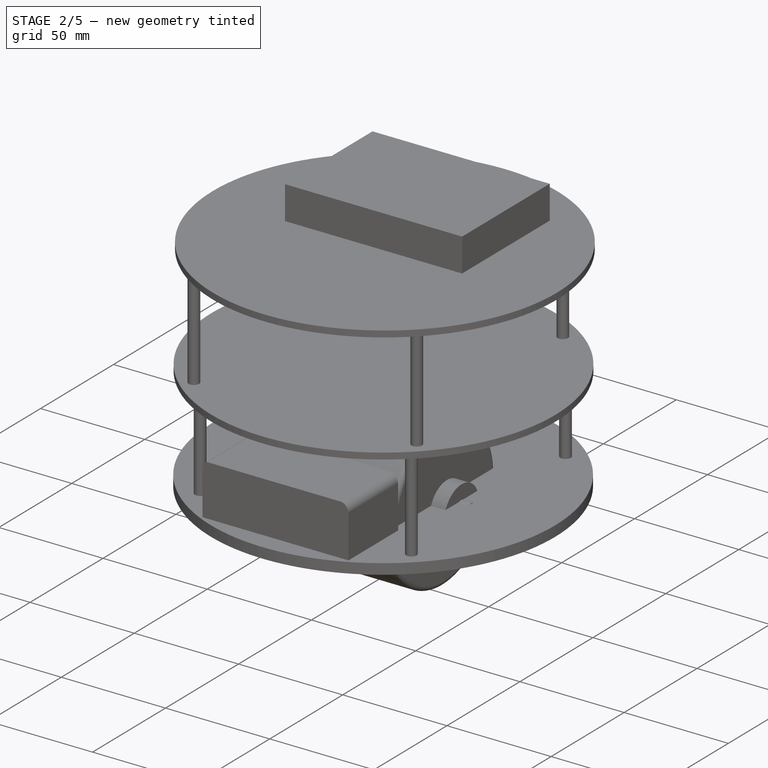
[diagram: stage 2 of 5 — iso view after this stage's code; geometry added in this stage tinted green]
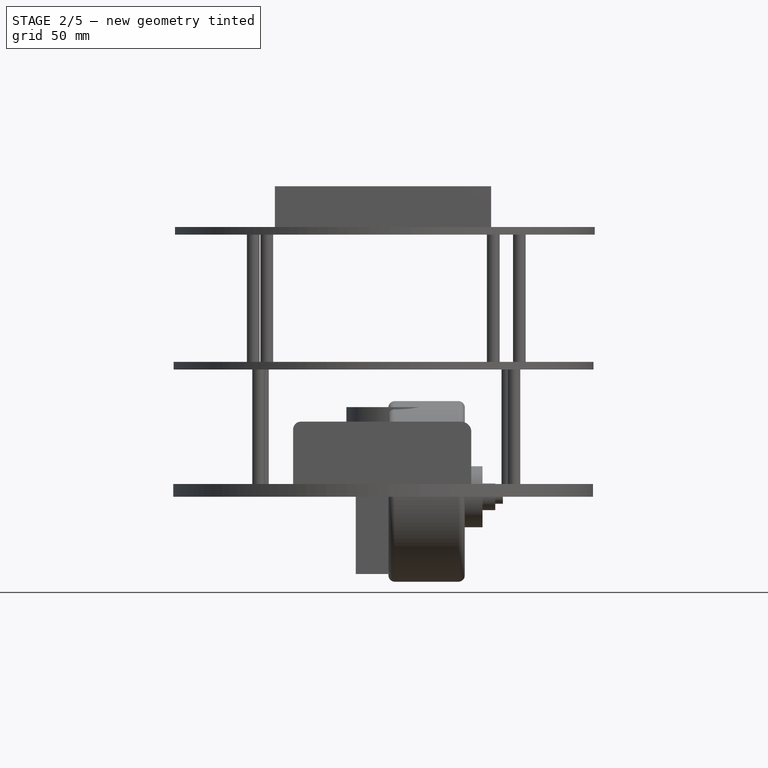
[diagram: stage 2 of 5 — front view after this stage's code; geometry added in this stage tinted green]
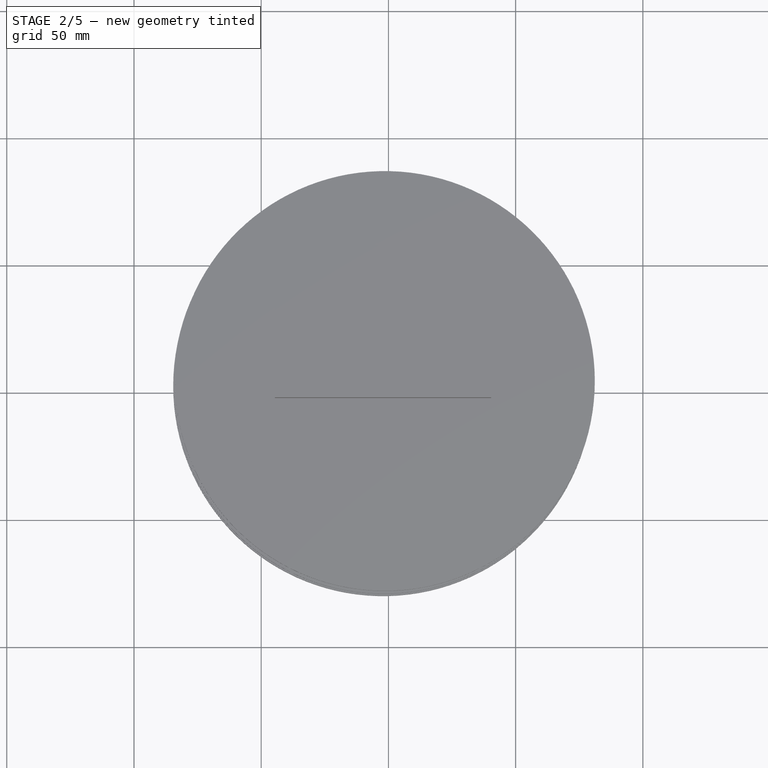
[diagram: stage 2 of 5 — top view after this stage's code; geometry added in this stage tinted green]
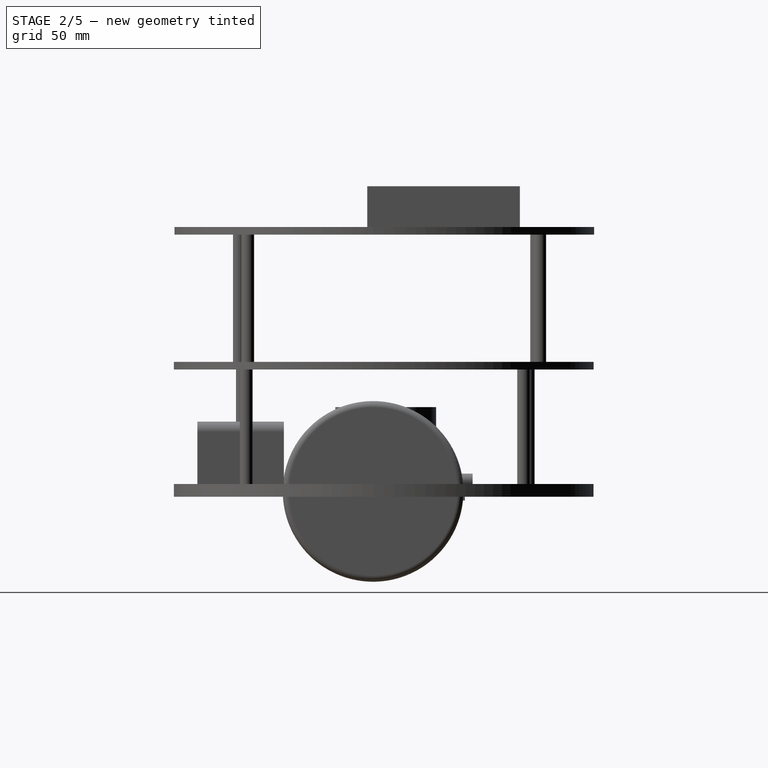
[diagram: stage 2 of 5 — right view after this stage's code; geometry added in this stage tinted green]
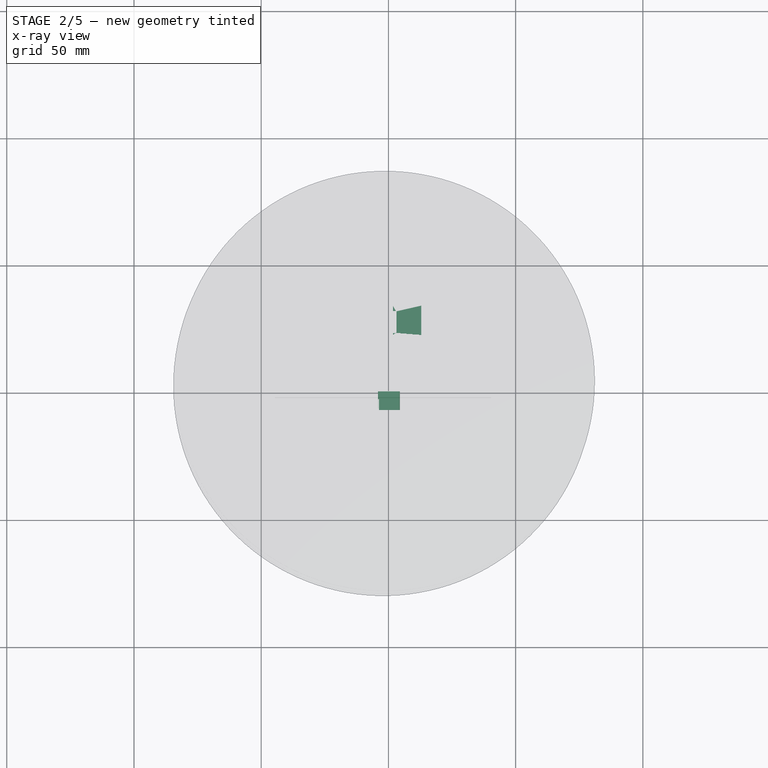
[diagram: stage 2 of 5 — x-ray composite at the top view; earlier geometry ghosted, this stage's added geometry solid]
FEATURE [Part::Wedge] Wedge005  label="Wedge006"
  AttacherType = Attacher::AttachEngine3D
  Placement = pos=(0,-11,0.2) rot=(0,0,1;0rad)
  X2max = 1.2
  X2min = -1.1
  Xmax = 1.2
  Xmin = -1.1
  Ymax = 1
  Ymin = 0
  Z2max = 2
  Z2min = 0
  Zmax = 4
  Zmin = 0
FEATURE [Part::FeaturePython] Clone028  label="Wedge"  # Draft clone (typed FeaturePython)
  AttacherType = Attacher::AttachEngine3D
  Fuse = false
  Objects = -> [Wedge005]
  Placement = pos=(0.1,11,0.2) rot=(0,0,1;3.14159rad)
  Scale = (1,1,1)
FEATURE [Part::Wedge] Wedge006  label="Wedge007"
  AttacherType = Attacher::AttachEngine3D
  Placement = pos=(-1.5,0,0) rot=(0,0,1;0rad)
  X2max = 0.9
  X2min = -0.9
  Xmax = 0.6
  Xmin = -0.6
  Ymax = -3.7
  Ymin = -6.7
  Z2max = 3
  Z2min = 1
  Zmax = 3
  Zmin = 1
FEATURE [Part::Wedge] Wedge007  label="Wedge008"
  AttacherType = Attacher::AttachEngine3D
  X2max = 0.6
  X2min = -0.6
  Xmax = 0.45
  Xmin = -0.45
  Ymax = 0
  Ymin = -3
  Z2max = 0
  Z2min = -1
  Zmax = 0
  Zmin = -1
FEATURE [Part::Box] Box055  label="Cube011"
  AttacherType = Attacher::AttachEngine3D
  Height = 0.6
  Length = 1.5
  Placement = pos=(-2.25,-7.125,0) rot=(0,0,1;0rad)
  Width = 0.25
FEATURE [Part::FeaturePython] Array016  label="Array"  # Draft array (typed FeaturePython)
  AlwaysSyncPlacement = false
  Angle = 360
  ArrayType = 0
  Axis = (0,0,1)
  Base = -> Box055
  Center = (0,0,0)
  Count = 30
  ExpandArray = false
  Fuse = false
  IntervalAxis = (0,0,0)
  IntervalX = (3,0,0)
  IntervalY = (0,1,0)
  IntervalZ = (0,0,100)
  NumberCircles = 3
  NumberPolar = 5
  NumberX = 2
  NumberY = 15
  NumberZ = 1
  PlacementList = 30 placements: [(-2.25,-7.125,0),(-2.25,-6.125,0),(-2.25,-5.125,0),(-2.25,-4.125,0),(-2.25,-3.125,0),(-2.25,-2.125,0),(-2.25,-1.125,0),(-2.25,-0.125,0),(-2.25,0.875,0),(-2.25,1.875,0),(-2.25,2.875,0),(-2.25,3.875,0),(-2.25,4.875,0),(-2.25,5.875,0),(-2.25,6.875,0),(0.75,-7.125,0),(0.75,-6.125,0),(0.75,-5.125,0),(0.75,-4.125,0),(0.75,-3.125,0),(0.75,-2.125,0),(0.75,-1.125,0),(0.75,-0.125,0),(0.75,0.875,0),+6 more]
  RadialDistance = 50
  ScaleList = (30) [(1,1,1),(1,1,1),(1,1,1),(1,1,1),(1,1,1),(1,1,1),(1,1,1),(1,1,1),(1,1,1),(1,1,1),(1,1,1),(1,1,1),(1,1,1),(1,1,1),(1,1,1),(1,1,1),(1,1,1),(1,1,1),+12 more]
  Symmetry = 1
  TangentialDistance = 25
FEATURE [Part::Box] Box056  label="Cube012"
  AttacherType = Attacher::AttachEngine3D
  Height = 5.2
  Length = 2.3
  Placement = pos=(-1.1,-11,0.2) rot=(0,0,1;0rad)
  Width = 22
FEATURE [Part::Box] Box057  label="Cube013"
  AttacherType = Attacher::AttachEngine3D
  Height = 4
  Length = 0.2
  Placement = pos=(1,-11,0.2) rot=(0,0,1;0rad)
  Width = 22
FEATURE [Part::FeaturePython] Clone029  label="Cube005"  # Draft clone (typed FeaturePython)
  AttacherType = Attacher::AttachEngine3D
  Fuse = false
  Objects = -> [Box057]
  Placement = pos=(-1.2,-11,0.2) rot=(0,0,1;0rad)
  Scale = (1,1,1)
FEATURE [Part::Box] Box065  label="Cube025"
  AttacherType = Attacher::AttachEngine3D
  Height = 2.8
  Length = 5
  Placement = pos=(-2.5,-2.5,0) rot=(0,0,1;0rad)
  Width = 2.5
FEATURE [Sketcher::SketchObject] Sketch018
  ArcFitTolerance = 0
  FullyConstrained = true
  MakeInternals = false
  Placement = pos=(0,0,0) rot=(0.57735,0.57735,0.57735;2.0944rad)
  sketch-geometry (6):
    g0: LineSegment StartX=0 StartY=0 StartZ=0 EndX=0 EndY=-0.2 EndZ=0
    g1: LineSegment StartX=-0.321393 StartY=-0.0830226 StartZ=0 EndX=-0.7 EndY=0.234666 EndZ=0
    g2: LineSegment StartX=-0.7 StartY=0.234666 StartZ=0 EndX=-0.571442 EndY=0.387875 EndZ=0
    g3: LineSegment StartX=-0.571442 StartY=0.387875 StartZ=0 EndX=-0.19284 EndY=0.0701896 EndZ=0
    g4: ArcOfCircle CenterX=0 CenterY=0.3 CenterZ=0 NormalX=0 NormalY=0 NormalZ=1 AngleXU=0 Radius=0.3 StartAngle=4.01424 EndAngle=4.71239
    g5: ArcOfCircle CenterX=0 CenterY=0.3 CenterZ=0 NormalX=0 NormalY=0 NormalZ=1 AngleXU=0 Radius=0.5 StartAngle=4.01426 EndAngle=4.71239
  constraints (18):
    c: Coincident(g1,g2)
    c: Coincident(g2,g3)
    c: Coincident(g3,g4)
    c: Coincident(g4,g0)
    c: Coincident(g0,g5)
    c: Coincident(g5,g1)
    c: Parallel(g1,g3)
    c: Perpendicular(g3,g2)
    c: Coincident(g5,g4)
    c: Perpendicular(g4,g0)
    c: Vertical(g0)
    c: Angle(g2,g0) = 0.698132
    c: Tangent(g4,g3)
    c: Tangent(g5,g1)
    c: Distance(g0) = 0.2
    c: DistanceX(g1,g0) = 0.7
    c: DistanceY(g0,g4) = 0.3
    c: Coincident(g-1,g0)
FEATURE [Sketcher::SketchObject] Sketch019
  ArcFitTolerance = 0
  FullyConstrained = true
  MakeInternals = false
  Placement = pos=(0,0,0) rot=(0.57735,0.57735,0.57735;2.0944rad)
  sketch-geometry (6):
    g0: LineSegment StartX=0 StartY=0 StartZ=0 EndX=0 EndY=-0.2 EndZ=0
    g1: LineSegment StartX=-0.321393 StartY=-0.0830226 StartZ=0 EndX=-0.7 EndY=0.234666 EndZ=0
    g2: LineSegment StartX=-0.7 StartY=0.234666 StartZ=0 EndX=-0.571442 EndY=0.387875 EndZ=0
    g3: LineSegment StartX=-0.571442 StartY=0.387875 StartZ=0 EndX=-0.19284 EndY=0.0701896 EndZ=0
    g4: ArcOfCircle CenterX=0 CenterY=0.3 CenterZ=0 NormalX=0 NormalY=0 NormalZ=1 AngleXU=0 Radius=0.3 StartAngle=4.01424 EndAngle=4.71239
    g5: ArcOfCircle CenterX=0 CenterY=0.3 CenterZ=0 NormalX=0 NormalY=0 NormalZ=1 AngleXU=0 Radius=0.5 StartAngle=4.01426 EndAngle=4.71239
  constraints (18):
    c: Coincident(g1,g2)
    c: Coincident(g2,g3)
    c: Coincident(g3,g4)
    c: Coincident(g4,g0)
    c: Coincident(g0,g5)
    c: Coincident(g5,g1)
    c: Parallel(g1,g3)
    c: Perpendicular(g3,g2)
    c: Coincident(g5,g4)
    c: Perpendicular(g4,g0)
    c: Vertical(g0)
    c: Angle(g2,g0) = 0.698132
    c: Tangent(g4,g3)
    c: Tangent(g5,g1)
    c: Distance(g0) = 0.2
    c: DistanceX(g1,g0) = 0.7
    c: DistanceY(g0,g4) = 0.3
    c: Coincident(g-1,g0)
FEATURE [Sketcher::SketchObject] Sketch020
  ArcFitTolerance = 0
  FullyConstrained = true
  MakeInternals = false
  Placement = pos=(0,0,0) rot=(0.57735,0.57735,0.57735;2.0944rad)
  sketch-geometry (7):
    g0: LineSegment StartX=0 StartY=0 StartZ=0 EndX=-1.58756 EndY=2e-16 EndZ=0
    g1: ArcOfCircle CenterX=-2.10718 CenterY=0.3 CenterZ=0 NormalX=0 NormalY=0 NormalZ=1 AngleXU=0 Radius=0.6 StartAngle=3.66519 EndAngle=5.75959
    g2: ArcOfCircle CenterX=-2.10718 CenterY=0.3 CenterZ=0 NormalX=0 NormalY=0 NormalZ=1 AngleXU=0 Radius=0.8 StartAngle=3.66519 EndAngle=5.60805
    g3: LineSegment StartX=0 StartY=0 StartZ=0 EndX=0 EndY=-0.2 EndZ=0
    g4: LineSegment StartX=-1.48268 StartY=-0.2 StartZ=0 EndX=0 EndY=-0.2 EndZ=0
    g5: ArcOfCircle CenterX=-2.7134 CenterY=-0.05 CenterZ=0 NormalX=0 NormalY=0 NormalZ=1 AngleXU=0 Radius=0.1 StartAngle=0.523599 EndAngle=3.66519
    g6: LineSegment [constr] StartX=-2.10718 StartY=0.3 StartZ=0 EndX=-1.58756 EndY=2e-16 EndZ=0
  constraints (21):
    c: Coincident(g2,g4)
    c: Coincident(g1,g0)
    c: Coincident(g0,g-1)
    c: Coincident(g3,g0)
    c: Coincident(g3,g4)
    c: Coincident(g2,g1)
    c: Vertical(g3)
    c: Perpendicular(g0,g3)
    c: Parallel(g0,g4)
    c: Distance(g3) = 0.2
    c: Coincident(g5,g1)
    c: Coincident(g5,g2)
    c: Tangent(g5,g1)
    c: Tangent(g5,g2)
    c: Coincident(g1,g6)
    c: Coincident(g6,g0)
    c: Distance(g2,g1) = 0.2
    c: Angle(g0,g6) = 2.61799
    c: PointOnObject(g1,g-1)
    c: DistanceX(g2,g3) = 2.8
    c: Radius(g2) = 0.8
FEATURE [Part::FeaturePython] Clone033  label="Wedge009"  # Draft clone (typed FeaturePython)
  AttacherType = Attacher::AttachEngine3D
  Fuse = false
  Objects = -> [Wedge006]
  Placement = pos=(1.5,0,0) rot=(0,0,1;0rad)
  Scale = (1,1,1)
FEATURE [Part::FeaturePython] Clone036  label="Cube027"  # Draft clone (typed FeaturePython)
  AttacherType = Attacher::AttachEngine3D
  Fuse = false
  Objects = -> [Box065]
  Placement = pos=(-2.5,-2.5,0) rot=(0,0,1;0rad)
  Scale = (1,1,1)
FEATURE [Part::Extrusion] Extrude011  label="Extrude018"
  Base = -> Sketch015
  Dir = (0,-1,2e-16)
  DirMode = 2
  FaceMakerClass = Part::FaceMakerBullseye
  FaceMakerMode = 3
  LengthFwd = 7.2
  LengthRev = 0
  Solid = true
  Symmetric = false
FEATURE [Part::Extrusion] Extrude015  label="Extrude019"
  Base = -> Sketch020
  Dir = (1,0,0)
  DirMode = 2
  FaceMakerClass = Part::FaceMakerBullseye
  FaceMakerMode = 3
  LengthFwd = 3
  LengthRev = 0
  Placement = pos=(-1.5,0,0) rot=(0,0,1;0rad)
  Solid = true
  Symmetric = false
FEATURE [Part::Box] Box058  label="Cube035"
  AttacherType = Attacher::AttachEngine3D
  Height = 5.2
  Length = 1.1
  Placement = pos=(-1.1,-8.1,0.2) rot=(0,0,1;0rad)
  Width = 16.2
FEATURE [Part::MultiFuse] Fusion044
  Refine = true
  Shapes = -> [Wedge005,Clone028,Box057,Clone029,Box058]
FEATURE [Part::Cut] Cut011  label="Body003"
  Base = -> Box056
  Refine = true
  Tool = -> Fusion044
FEATURE [Part::Box] Box059  label="Cube036"
  AttacherType = Attacher::AttachEngine3D
  Height = 4
  Length = 0.3
  Placement = pos=(1,-10,0.2) rot=(0,0,1;0rad)
  Width = 20
FEATURE [Part::FeaturePython] Clone030  label="Cube006"  # Draft clone (typed FeaturePython)
  AttacherType = Attacher::AttachEngine3D
  Fuse = false
  Objects = -> [Box059]
  Placement = pos=(-1.3,-10,0.2) rot=(0,0,1;0rad)
  Scale = (1,1,1)
FEATURE [Part::Box] Box060  label="Cube037"
  AttacherType = Attacher::AttachEngine3D
  Height = 5.2
  Length = 1
  Placement = pos=(-1.3,-8,0.2) rot=(0,0,1;0rad)
  Width = 16
FEATURE [Part::Box] Box061  label="Cube038"
  AttacherType = Attacher::AttachEngine3D
  Height = 3
  Length = 0.1
  Placement = pos=(-0.4,-7.1,2.4) rot=(0,0,1;0rad)
  Width = 0.2
FEATURE [Part::FeaturePython] Array017  # Draft array (typed FeaturePython)
  AlwaysSyncPlacement = false
  Angle = 360
  ArrayType = 0
  Axis = (0,0,1)
  Base = -> Box061
  Center = (0,0,0)
  Count = 15
  ExpandArray = false
  Fuse = false
  IntervalAxis = (0,0,0)
  IntervalX = (100,0,0)
  IntervalY = (0,1,0)
  IntervalZ = (0,0,100)
  NumberCircles = 3
  NumberPolar = 5
  NumberX = 1
  NumberY = 15
  NumberZ = 1
  PlacementList = 15 placements: arithmetic series from (-0.4,-7.1,2.4) step (0,1,0) to (-0.4,6.9,2.4)
  RadialDistance = 50
  ScaleList = (15) [(1,1,1),(1,1,1),(1,1,1),(1,1,1),(1,1,1),(1,1,1),(1,1,1),(1,1,1),(1,1,1),(1,1,1),(1,1,1),(1,1,1),(1,1,1),(1,1,1),(1,1,1)]
  Symmetry = 1
  TangentialDistance = 25
FEATURE [Part::Cut] Cut012
  Base = -> Box060
  Refine = true
  Tool = -> Array017
FEATURE [Part::MultiFuse] Fusion045  label="Holder"
  Refine = true
  Shapes = -> [Box059,Clone030,Cut012]
FEATURE [Part::FeaturePython] Clone031  label="Fusion045"  # Draft clone (typed FeaturePython)
  AttacherType = Attacher::AttachEngine3D
  Fuse = false
  Objects = -> [Fusion045]
  Scale = (1,1,1)
FEATURE [Part::Cut] Cut013  label="Pins004"
  Base = -> Array016
  Refine = true
  Tool = -> Clone031
FEATURE [App::Part] Part016  label="MIPI/CSI (Camera)"
  Group = -> [Clone028,Wedge005,Clone029,Fusion044,Box056,Box057,Box058,Cut011,Cut012,Clone030,Array017,Box059,Box060,Box061,Fusion045,Array016,Clone031,Box055,Cut013]
  Origin = -> Origin016
  Placement = pos=(46.5,11.5,1.5) rot=(0,0,1;0rad)
FEATURE [Part::Box] Box063  label="Cube039"
  AttacherType = Attacher::AttachEngine3D
  Height = 3
  Length = 6.5
  Placement = pos=(-3.25,-0.6,0) rot=(0,0,1;0rad)
  Width = 0.6
FEATURE [Part::Box] Box064  label="Cube040"
  AttacherType = Attacher::AttachEngine3D
  Height = 0.2
  Length = 4
  Placement = pos=(-2,-0.6,2.8) rot=(0,0,1;0rad)
  Width = 0.6
FEATURE [App::Part] Part013  label="Diode"
  Group = -> [Box045,Extrude,Clone011,Sketch009,Part__Mirroring,Fusion028]
  Origin = -> Origin013
  Placement = pos=(65.4,9.1,1.5) rot=(0,0,1;0rad)
FEATURE [Part::Cut] Cut014  label="Cut015"
  Base = -> Box063
  Refine = true
  Tool = -> Box064
FEATURE [Part::FeaturePython] Clone032  label="Cut014"  # Draft clone (typed FeaturePython)
  AttacherType = Attacher::AttachEngine3D
  Fuse = false
  Objects = -> [Cut014]
  Scale = (1,1,1)
FEATURE [Part::MultiCommon] Common002  label="Common003"
  Placement = pos=(-1.5,-3.7,3) rot=(0,0,1;0rad)
  Refine = true
  Shapes = -> [Extrude015,Wedge007]
FEATURE [Part::MultiFuse] Fusion049
  Refine = true
  Shapes = -> [Clone032,Wedge006,Clone033,Clone036]
FEATURE [Part::Cut] Cut015  label="Cut016"
  Base = -> Extrude011
  Refine = true
  Tool = -> Fusion049
FEATURE [App::Part] Part012  label="Power Controller"
  Group = -> [Box042,Array014,Box043,Link002,Fusion027]
  Origin = -> Origin012
  Placement = pos=(9.9,12.2,1.5) rot=(0,0,1;0rad)
FEATURE [App::Link] Link004  label="Inductor001"
  LinkPlacement = pos=(13.1,8,1.5) rot=(0,0,1;0rad)
  LinkedObject = -> Box044
  Placement = pos=(13.1,8,1.5) rot=(0,0,1;0rad)
FEATURE [App::Link] Link005  label="Inductor002"
  LinkPlacement = pos=(13.2,14.1,1.5) rot=(0,0,1;0rad)
  LinkedObject = -> Box044
  Placement = pos=(13.2,14.1,1.5) rot=(0,0,1;0rad)
FEATURE [App::Link] Link006  label="Shield003"
  LinkedObject = -> Fillet006
FEATURE [App::Part] Part015  label="Dual USB A Socket (USB v2.0)"
  Group = -> [Link006,Clone020,Clone024,Clone026]
  Origin = -> Origin015
  Placement = pos=(70.5,9,1.5) rot=(0,0,1;-1.5708rad)
FEATURE [App::Link] Link008  label="Micro HDMI Socket001"
  LinkPlacement = pos=(26,6.5,1.5) rot=(0,0,1;0rad)
  LinkedObject = -> Part017
  Placement = pos=(26,6.5,1.5) rot=(0,0,1;0rad)
FEATURE [App::Link] Link009  label="MIPI/DSI (Touch-Screen)"
  LinkPlacement = pos=(4,28,1.5) rot=(0,0,1;3.14159rad)
  LinkedObject = -> Part016
  Placement = pos=(4,28,1.5) rot=(0,0,1;3.14159rad)
FEATURE [Part::Box] Box067  label="Cube042"
  AttacherType = Attacher::AttachEngine3D
  Height = 3
  Length = 8.5
  Placement = pos=(-4.25,0,0) rot=(0,0,1;0rad)
  Width = 2.95
FEATURE [Part::Fillet] Fillet013  label="Fillet015"
  Base = -> Box067
  EdgeLinks = -> Box067 [Edge3,Edge7]
  Edges = 2 edges r=0.75: [Edge3,Edge7]
FEATURE [Part::Box] Box001  label="Cube043"
  AttacherType = Attacher::AttachEngine3D
  Height = 6.9
  Length = 6.4
  Placement = pos=(-3.2,1.35,0) rot=(0,0,1;0rad)
  Width = 0.5
FEATURE [Part::MultiFuse] Fusion051  label="Body006"
  Placement = pos=(0,0,0) rot=(1,0,0;1.5708rad)
  Refine = true
  Shapes = -> [Fillet013,Box001]
FEATURE [Sketcher::SketchObject] Sketch021
  ArcFitTolerance = 0
  FullyConstrained = true
  MakeInternals = false
  sketch-geometry (18):
    g0: LineSegment StartX=-3.5 StartY=3.2 StartZ=0 EndX=3.5 EndY=3.2 EndZ=0
    g1: LineSegment StartX=-3.5 StartY=0 StartZ=0 EndX=3.5 EndY=0 EndZ=0
    g2: LineSegment StartX=-4.5 StartY=2.2 StartZ=0 EndX=-4.5 EndY=1 EndZ=0
    g3: LineSegment StartX=4.5 StartY=2.2 StartZ=0 EndX=4.5 EndY=1 EndZ=0
    g4: ArcOfCircle CenterX=-3.5 CenterY=2.2 CenterZ=0 NormalX=0 NormalY=0 NormalZ=1 AngleXU=0 Radius=1 StartAngle=1.5708 EndAngle=3.14159
    g5: ArcOfCircle CenterX=3.5 CenterY=2.2 CenterZ=0 NormalX=0 NormalY=0 NormalZ=1 AngleXU=0 Radius=1 StartAngle=9.57638e-09 EndAngle=1.5708
    g6: ArcOfCircle CenterX=3.5 CenterY=1 CenterZ=0 NormalX=0 NormalY=0 NormalZ=1 AngleXU=0 Radius=1 StartAngle=4.71239 EndAngle=6.28319
    g7: ArcOfCircle CenterX=-3.5 CenterY=1 CenterZ=0 NormalX=0 NormalY=0 NormalZ=1 AngleXU=0 Radius=1 StartAngle=3.14159 EndAngle=4.71239
    g8: LineSegment [constr] StartX=-3.5 StartY=2.2 StartZ=0 EndX=3.5 EndY=2.2 EndZ=0
    g9: LineSegment [constr] StartX=-3.5 StartY=1 StartZ=0 EndX=3.5 EndY=1 EndZ=0
    g10: LineSegment StartX=-3.5 StartY=2.95 StartZ=0 EndX=3.5 EndY=2.95 EndZ=0
    g11: LineSegment StartX=4.25 StartY=2.2 StartZ=0 EndX=4.25 EndY=1 EndZ=0
    g12: LineSegment StartX=3.5 StartY=0.25 StartZ=0 EndX=-3.5 EndY=0.25 EndZ=0
    g13: LineSegment StartX=-4.25 StartY=1 StartZ=0 EndX=-4.25 EndY=2.2 EndZ=0
    g14: ArcOfCircle CenterX=-3.5 CenterY=2.2 CenterZ=0 NormalX=0 NormalY=0 NormalZ=1 AngleXU=0 Radius=0.75 StartAngle=1.5708 EndAngle=3.14159
    g15: ArcOfCircle CenterX=3.5 CenterY=2.2 CenterZ=0 NormalX=0 NormalY=0 NormalZ=1 AngleXU=0 Radius=0.75 StartAngle=4.93509e-08 EndAngle=1.5708
    g16: ArcOfCircle CenterX=3.5 CenterY=1 CenterZ=0 NormalX=0 NormalY=0 NormalZ=1 AngleXU=0 Radius=0.75 StartAngle=4.71239 EndAngle=6.28319
    g17: ArcOfCircle CenterX=-3.5 CenterY=1 CenterZ=0 NormalX=0 NormalY=0 NormalZ=1 AngleXU=0 Radius=0.75 StartAngle=3.14159 EndAngle=4.71239
  constraints (54):
    c: Coincident(g2,g4)
    c: Coincident(g4,g0)
    c: Tangent(g2,g4)
    c: Tangent(g4,g0)
    c: Coincident(g7,g1)
    c: Coincident(g2,g7)
    c: Coincident(g6,g1)
    c: Coincident(g3,g6)
    c: Coincident(g3,g5)
    c: Coincident(g5,g0)
    c: Tangent(g0,g5)
    c: Tangent(g5,g3)
    c: Tangent(g3,g6)
    c: Tangent(g1,g6)
    c: Tangent(g1,g7)
    c: Tangent(g7,g2)
    c: PointOnObject(g-1,g1)
    c: Symmetric(g7,g6,g-2)
    c: Horizontal(g1)
    c: Symmetric(g4,g5,g-2)
    c: Parallel(g1,g0)
    c: Coincident(g8,g4)
    c: Coincident(g8,g5)
    c: Coincident(g9,g7)
    c: Coincident(g9,g6)
    c: Equal(g8,g9)
    c: Vertical(g2)
    c: DistanceX(g2,g3) = 9
    c: DistanceY(g1,g0) = 3.2
    c: Distance(g3) = 1.2
    c: Coincident(g13,g14)
    c: Coincident(g14,g10)
    c: Coincident(g10,g15)
    c: Coincident(g15,g11)
    c: Coincident(g11,g16)
    c: Coincident(g16,g12)
    c: Coincident(g12,g17)
    c: Coincident(g17,g13)
    c: Coincident(g17,g7)
    c: Coincident(g14,g4)
    c: Coincident(g15,g5)
    c: Coincident(g16,g6)
    c: Parallel(g10,g0)
    c: DistanceY(g10,g0) = 0.25
    c: Tangent(g15,g10)
    c: Tangent(g15,g11)
    c: Tangent(g11,g16)
    c: Parallel(g11,g3)
    c: Parallel(g12,g1)
    c: Parallel(g13,g2)
    c: Tangent(g16,g12)
    c: Tangent(g17,g13)
    c: Tangent(g14,g10)
    c: Tangent(g13,g14)
FEATURE [Part::Extrusion] Extrude016  label="Extrude020"
  Base = -> Sketch021
  Dir = (0,0,1)
  DirMode = 2
  FaceMakerClass = Part::FaceMakerBullseye
  FaceMakerMode = 3
  LengthFwd = 7.3
  LengthRev = 0
  Solid = true
  Symmetric = false
FEATURE [Part::FeaturePython] Clone037  label="Fillet016"  # Draft clone (typed FeaturePython)
  AttacherType = Attacher::AttachEngine3D
  Fuse = false
  Objects = -> [Fillet013]
  Scale = (1,1,1)
FEATURE [Part::Cut] Cut016  label="Shield004"
  Base = -> Extrude016
  Placement = pos=(0,0,0) rot=(1,0,0;1.5708rad)
  Refine = true
  Tool = -> Clone037
FEATURE [App::Part] Part018  label="USB C Socket (Power)"
  Group = -> [Fillet013,Box067,Box001,Fusion051,Extrude016,Sketch021,Clone037,Cut016]
  Origin = -> Origin019
  Placement = pos=(11.2,6.2,1.5) rot=(0,0,1;0rad)
FEATURE [Part::Box] Box068  label="Cube044"
  AttacherType = Attacher::AttachEngine3D
  Height = 1.5
  Length = 11.4
  Width = 12
FEATURE [Part::Box] Box069  label="Cube045"
  AttacherType = Attacher::AttachEngine3D
  Height = 1.3
  Length = 11.2
  Placement = pos=(0,0.2,0.2) rot=(0,0,1;0rad)
  Width = 11.6
FEATURE [Part::Box] Box070  label="Cube046"
  AttacherType = Attacher::AttachEngine3D
  Height = 0.2
  Length = 1.4
  Placement = pos=(0,1,0) rot=(0,0,1;0rad)
  Width = 8.6
FEATURE [Part::Fillet] Fillet014  label="Fillet017"
  Base = -> Box070
  EdgeLinks = -> Box070 [Edge5,Edge7]
  Edges = 2 edges r=0.2: [Edge5,Edge7]
FEATURE [Part::MultiFuse] Fusion052
  Refine = true
  Shapes = -> [Box069,Fillet014]
FEATURE [Part::Cut] Cut017
  Base = -> Box068
  Refine = true
  Tool = -> Fusion052
FEATURE [Part::Fillet] Fillet015  label="SD Card Slot"
  Base = -> Cut017
  EdgeLinks = -> Cut017 [Edge4,Edge38]
  Edges = 2 edges r=0.2: [Edge4,Edge38]
  Placement = pos=(1.7,22,-1.5) rot=(0,0,1;0rad)
FEATURE [Part::Cut] Cut019  label="Body007"
  Base = -> Extrude017
  Refine = true
  Tool = -> Cut018
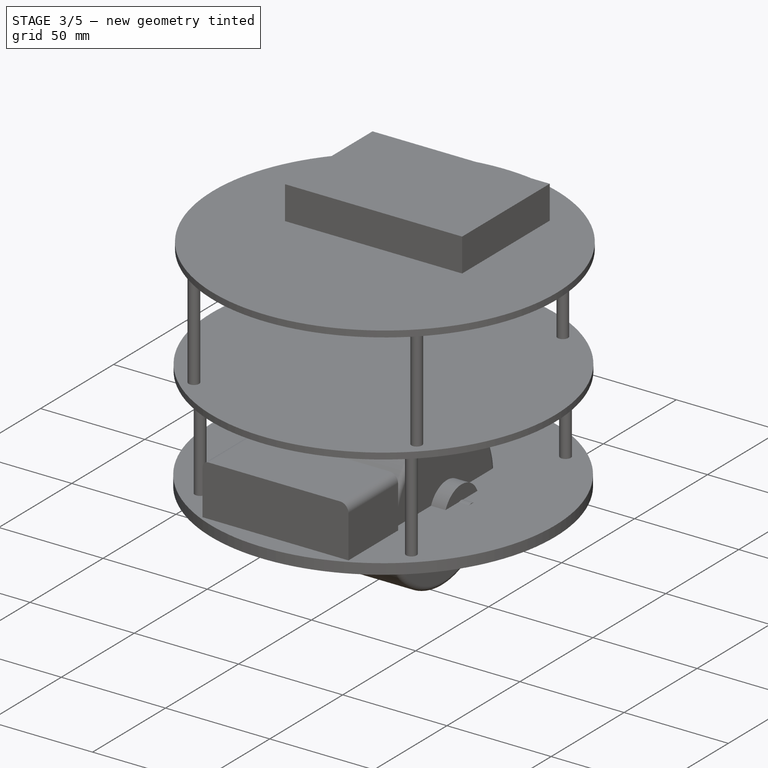
[diagram: stage 3 of 5 — iso view after this stage's code; geometry added in this stage tinted green]
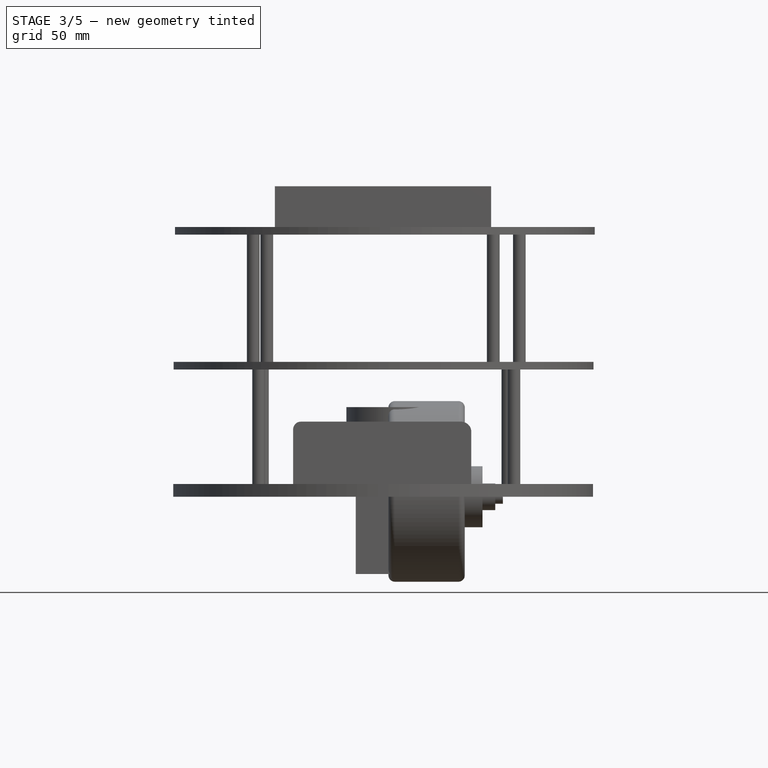
[diagram: stage 3 of 5 — front view after this stage's code; geometry added in this stage tinted green]
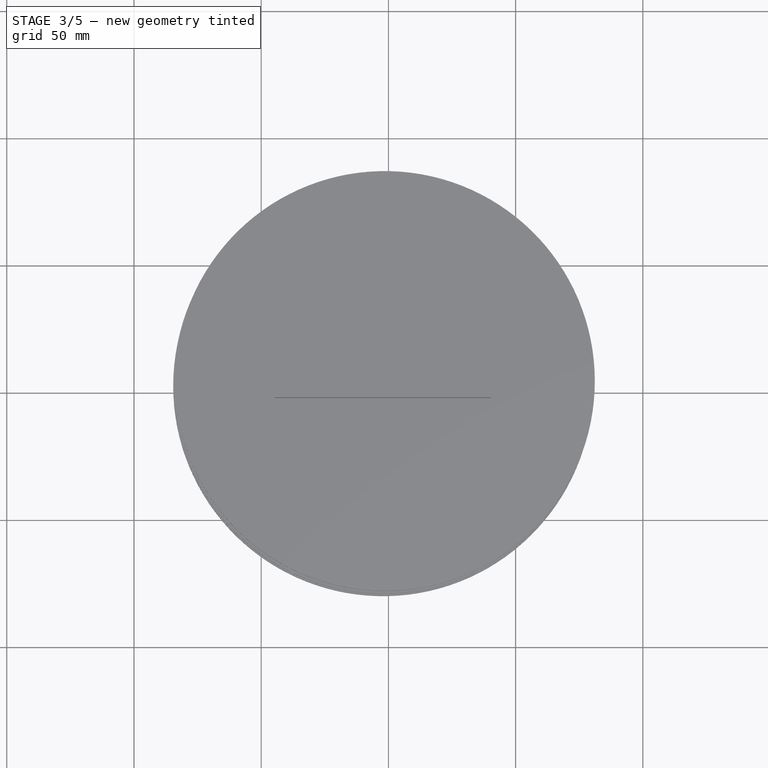
[diagram: stage 3 of 5 — top view after this stage's code; geometry added in this stage tinted green]
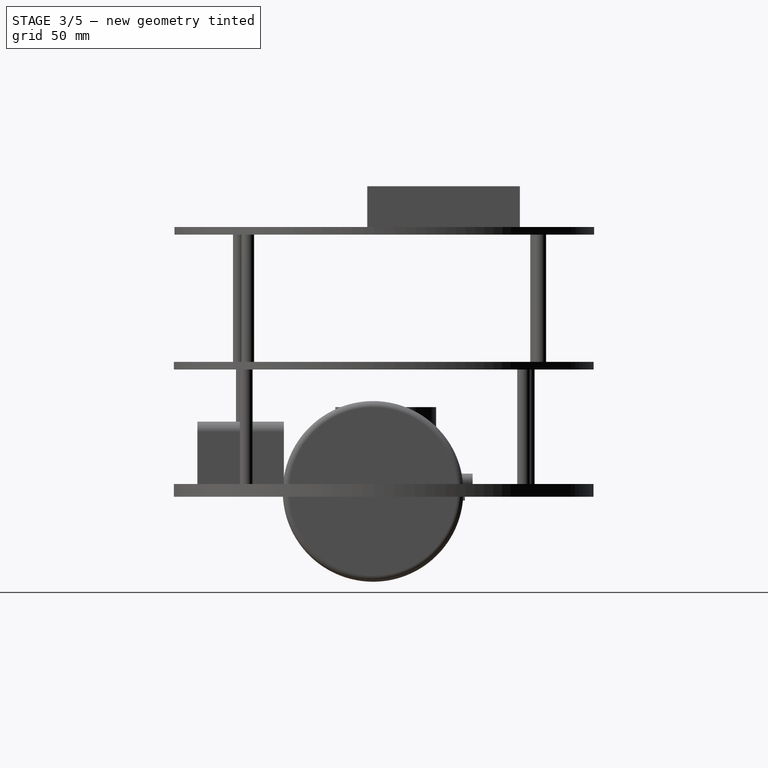
[diagram: stage 3 of 5 — right view after this stage's code; geometry added in this stage tinted green]
FEATURE [Part::Wedge] Wedge001  label="Wedge002"
  AttacherType = Attacher::AttachEngine3D
  X2max = 4
  X2min = 2
  Xmax = 4.8
  Xmin = 1.2
  Ymax = 16.5
  Ymin = 11
  Z2max = 15.5
  Z2min = 0
  Zmax = 15.5
  Zmin = 0
FEATURE [Part::Wedge] Wedge002  label="Wedge003"
  AttacherType = Attacher::AttachEngine3D
  X2max = 0.8
  X2min = -0.8
  Xmax = 1.2
  Xmin = -1.2
  Ymax = 4.6
  Ymin = 0
  Z2max = 6.6
  Z2min = -6.6
  Zmax = 6.6
  Zmin = -6.6
FEATURE [Part::Wedge] Wedge003  label="Wedge004"
  AttacherType = Attacher::AttachEngine3D
  X2max = 0.7
  X2min = -0.7
  Xmax = 1.4
  Xmin = -1.4
  Ymax = 5.2
  Ymin = 0
  Z2max = 2
  Z2min = -2
  Zmax = 2
  Zmin = -2
FEATURE [Part::Wedge] Wedge004  label="Wedge005"
  AttacherType = Attacher::AttachEngine3D
  X2max = 2
  X2min = -2
  Xmax = 2
  Xmin = -2
  Ymax = 4
  Ymin = 0
  Z2max = 0.55
  Z2min = -0.55
  Zmax = 1
  Zmin = -1
FEATURE [App::Part] Part008  label="SystemOnChip"
  Group = -> [Box027,Wedge,Fillet003,Chamfer,Box028,Fusion,Box026]
  Origin = -> Origin008
  Placement = pos=(29.25,32.5,1.5) rot=(0,0,1;0rad)
FEATURE [Part::Extrusion] Extrude006
  Base = -> Sketch006
  Dir = (1,0,0)
  DirMode = 2
  FaceMakerClass = Part::FaceMakerBullseye
  FaceMakerMode = 3
  LengthFwd = 11.4
  LengthRev = 0
  Placement = pos=(-5.7,16.5,15.2) rot=(0,0,1;0rad)
  Solid = true
  Symmetric = false
FEATURE [Part::Extrusion] Extrude007
  Base = -> Sketch010
  Dir = (1,0,0)
  DirMode = 2
  FaceMakerClass = Part::FaceMakerBullseye
  FaceMakerMode = 3
  LengthFwd = 12.2
  LengthRev = 0
  Placement = pos=(-6.3,16.5,2.4) rot=(0,-1,0;1.5708rad)
  Solid = true
  Symmetric = false
FEATURE [Part::Extrusion] Extrude009
  Base = -> Sketch013
  Dir = (0,0,1)
  DirMode = 2
  FaceMakerClass = Part::FaceMakerBullseye
  FaceMakerMode = 3
  LengthFwd = 4
  LengthRev = 0
  Placement = pos=(0,0,-2) rot=(0,0,1;0rad)
  Solid = true
  Symmetric = false
FEATURE [Part::Extrusion] Extrude008
  Base = -> Sketch011
  Dir = (1,0,0)
  DirMode = 2
  FaceMakerClass = Part::FaceMakerBullseye
  FaceMakerMode = 3
  LengthFwd = 4
  LengthRev = 0
  Placement = pos=(-2,0,0) rot=(0,0,1;0rad)
  Solid = true
  Symmetric = false
FEATURE [Part::MultiFuse] Fusion030
  Refine = true
  Shapes = -> [Extrude006,Extrude007]
FEATURE [Part::FeaturePython] Clone014  label="Fusion046"  # Draft clone (typed FeaturePython)
  AttacherType = Attacher::AttachEngine3D
  Fuse = false
  Objects = -> [Fusion030]
  Placement = pos=(0,0,17) rot=(0,1,0;3.14159rad)
  Scale = (1,1,1)
FEATURE [Part::Box] Box046  label="Cube019"
  AttacherType = Attacher::AttachEngine3D
  Height = 15.5
  Length = 13.2
  Placement = pos=(-6.6,0,0) rot=(0,0,1;0rad)
  Width = 16.5
FEATURE [Part::MultiFuse] Fusion031
  Refine = true
  Shapes = -> [Box046,Fusion030,Clone014]
FEATURE [Part::Box] Box047  label="Cube020"
  AttacherType = Attacher::AttachEngine3D
  Height = 1.5
  Length = 13.2
  Placement = pos=(-6.6,8.4,0) rot=(0,0,1;0rad)
  Width = 8.6
FEATURE [Part::Box] Box048  label="Cube021"
  AttacherType = Attacher::AttachEngine3D
  Height = 13.4
  Length = 12.6
  Placement = pos=(-6.3,0.3,1.8) rot=(0,0,1;0rad)
  Width = 16.2
FEATURE [Part::Box] Box049  label="Cube022"
  AttacherType = Attacher::AttachEngine3D
  Height = 3.4
  Length = 12.6
  Placement = pos=(-6.3,7.2,6.8) rot=(0,0,1;0rad)
  Width = 10
FEATURE [Part::Box] Box066  label="Cube026"
  AttacherType = Attacher::AttachEngine3D
  Height = 0.5
  Length = 4
  Placement = pos=(-2,-6,1.2) rot=(0,0,1;0rad)
  Width = 3.5
FEATURE [Part::Fillet] Fillet004
  Base = -> Box048
  EdgeLinks = -> Box048 [Edge2,Edge4,Edge6,Edge8]
  Edges = 4 edges r=0.5: [Edge2,Edge4,Edge6,Edge8]
FEATURE [Part::MultiFuse] Fusion032
  Refine = true
  Shapes = -> [Fillet004,Box047]
FEATURE [Part::Cut] Cut005
  Base = -> Fusion031
  Refine = true
  Tool = -> Fusion032
FEATURE [Part::Fillet] Fillet005
  Base = -> Box049
  EdgeLinks = -> Box049 [Edge11,Edge12]
  Edges = 2 edges r=0.4: [Edge11,Edge12]
FEATURE [Part::MultiFuse] Fusion034
  Refine = true
  Shapes = -> [Fillet005,Cut005]
FEATURE [Part::Fillet] Fillet009  label="Fillet012"
  Base = -> Wedge001
  EdgeLinks = -> Wedge001 [Edge1,Edge3,Edge5,Edge7]
  Edges = 4 edges r=0.2: [Edge1,Edge3,Edge5,Edge7]
FEATURE [Part::FeaturePython] Clone012  label="Fillet009"  # Draft clone (typed FeaturePython)
  AttacherType = Attacher::AttachEngine3D
  Fuse = false
  Objects = -> [Fillet009]
  Placement = pos=(-6,0,0) rot=(0,0,1;0rad)
  Scale = (1,1,1)
FEATURE [Part::Fillet] Fillet010  label="Fillet013"
  Base = -> Wedge002
  EdgeLinks = -> Wedge002 [Edge1,Edge3,Edge5,Edge7]
  Edges = 4 edges r=0.2: [Edge1,Edge3,Edge5,Edge7]
  Placement = pos=(0,10,4.5) rot=(0,1,0;1.5708rad)
FEATURE [Part::FeaturePython] Clone013  label="Fillet010"  # Draft clone (typed FeaturePython)
  AttacherType = Attacher::AttachEngine3D
  Fuse = false
  Objects = -> [Fillet010]
  Placement = pos=(0,10,12.5) rot=(0,1,0;1.5708rad)
  Scale = (1,1,1)
FEATURE [Part::MultiFuse] Fusion033
  Refine = true
  Shapes = -> [Fillet010,Fillet009,Clone012,Clone013]
FEATURE [Part::Cut] Cut006
  Base = -> Fusion034
  Refine = true
  Tool = -> Fusion033
FEATURE [Part::MultiCommon] Common
  Placement = pos=(-3,11,15.5) rot=(0,0,1;0rad)
  Refine = true
  Shapes = -> [Extrude008,Wedge003]
FEATURE [Part::MultiCommon] Common001
  Placement = pos=(-6.6,10,4.5) rot=(0,0,1;0rad)
  Refine = true
  Shapes = -> [Extrude009,Wedge004]
FEATURE [Part::Extrusion] Extrude014  label="Extrude015"
  Base = -> Sketch019
  Dir = (1,0,0)
  DirMode = 2
  FaceMakerClass = Part::FaceMakerBullseye
  FaceMakerMode = 3
  LengthFwd = 0.9
  LengthRev = 0
  Placement = pos=(3.25,-7.2,2.38) rot=(0,1,0;1.5708rad)
  Solid = true
  Symmetric = false
FEATURE [Part::FeaturePython] Clone034  label="Extrude014"  # Draft clone (typed FeaturePython)
  AttacherType = Attacher::AttachEngine3D
  Fuse = false
  Objects = -> [Extrude014]
  Placement = pos=(-3.25,-7.2,1.48) rot=(0,-1,0;1.5708rad)
  Scale = (1,1,1)
FEATURE [Part::Extrusion] Extrude012  label="Extrude016"
  Base = -> Sketch016
  Dir = (1,0,0)
  DirMode = 2
  FaceMakerClass = Part::FaceMakerBullseye
  FaceMakerMode = 3
  LengthFwd = 5
  LengthRev = 0
  Placement = pos=(-2.5,-7.2,3) rot=(0,0,1;0rad)
  Solid = true
  Symmetric = false
FEATURE [Part::Extrusion] Extrude013
  Base = -> Sketch018
  Dir = (1,0,0)
  DirMode = 2
  FaceMakerClass = Part::FaceMakerBullseye
  FaceMakerMode = 3
  LengthFwd = 3.5
  LengthRev = 0
  Placement = pos=(1.75,-7.2,0) rot=(0,1,0;3.14159rad)
  Solid = true
  Symmetric = false
FEATURE [Part::Box] Box043  label="Cube034"
  AttacherType = Attacher::AttachEngine3D
  Height = 0.1
  Length = 0.2
  Placement = pos=(-1.85,2.4,0) rot=(0,0,1;0rad)
  Width = 0.6
FEATURE [Part::Box] Box044  label="Inductor"
  AttacherType = Attacher::AttachEngine3D
  Height = 1.2
  Length = 2
  Placement = pos=(4.35,8,1.5) rot=(0,0,1;0rad)
  Width = 2.5
FEATURE [Part::FeaturePython] Clone035  label="Common002"  # Draft clone (typed FeaturePython)
  AttacherType = Attacher::AttachEngine3D
  Fuse = false
  Objects = -> [Common002]
  Placement = pos=(1.5,-3.7,3) rot=(0,0,1;0rad)
  Scale = (1,1,1)
FEATURE [Part::MultiFuse] Fusion048  label="Body005"
  Refine = true
  Shapes = -> [Box065,Cut014,Box066]
FEATURE [Part::MultiFuse] Fusion050  label="Shield002"
  Refine = true
  Shapes = -> [Cut015,Extrude012,Extrude013,Extrude014,Clone034,Common002,Clone035]
FEATURE [Part::FeaturePython] Clone015  label="Common004"  # Draft clone (typed FeaturePython)
  AttacherType = Attacher::AttachEngine3D
  Fuse = false
  Objects = -> [Common]
  Placement = pos=(3,11,15.5) rot=(0,0,1;0rad)
  Scale = (1,1,1)
FEATURE [Part::MultiFuse] Fusion035
  Refine = true
  Shapes = -> [Common,Clone015]
FEATURE [Part::FeaturePython] Clone016  label="Fusion050"  # Draft clone (typed FeaturePython)
  AttacherType = Attacher::AttachEngine3D
  Fuse = false
  Objects = -> [Fusion035]
  Placement = pos=(0,0,-8.4) rot=(0,0,1;0rad)
  Scale = (1,1,1)
FEATURE [Part::FeaturePython] Clone017  label="Common005"  # Draft clone (typed FeaturePython)
  AttacherType = Attacher::AttachEngine3D
  Fuse = false
  Objects = -> [Common001]
  Placement = pos=(-6.6,10,12.5) rot=(0,0,1;0rad)
  Scale = (1,1,1)
FEATURE [Part::MultiFuse] Fusion036
  Refine = true
  Shapes = -> [Common001,Clone017]
FEATURE [Part::MultiFuse] Fusion037
  Refine = true
  Shapes = -> [Fusion035,Clone016,Fusion036]
FEATURE [Part::FeaturePython] Clone018  label="Fusion051"  # Draft clone (typed FeaturePython)
  AttacherType = Attacher::AttachEngine3D
  Fuse = false
  Objects = -> [Fusion037]
  Placement = pos=(0,0,17) rot=(0,1,0;3.14159rad)
  Scale = (1,1,1)
FEATURE [Part::MultiFuse] Fusion038
  Refine = true
  Shapes = -> [Cut006,Fusion037,Clone018]
FEATURE [Part::Fillet] Fillet006  label="Shield"
  Base = -> Fusion038
  EdgeLinks = -> Fusion038 [Edge2,Edge3,Edge4,Edge11,Edge17,Edge814,Edge815]
  Edges = 7 edges: [Edge2 r=0.5,Edge3 r=0.5,Edge4 r=0.5,Edge11 r=0.8,Edge17 r=0.8,Edge814 r=0.8,Edge815 r=0.8]
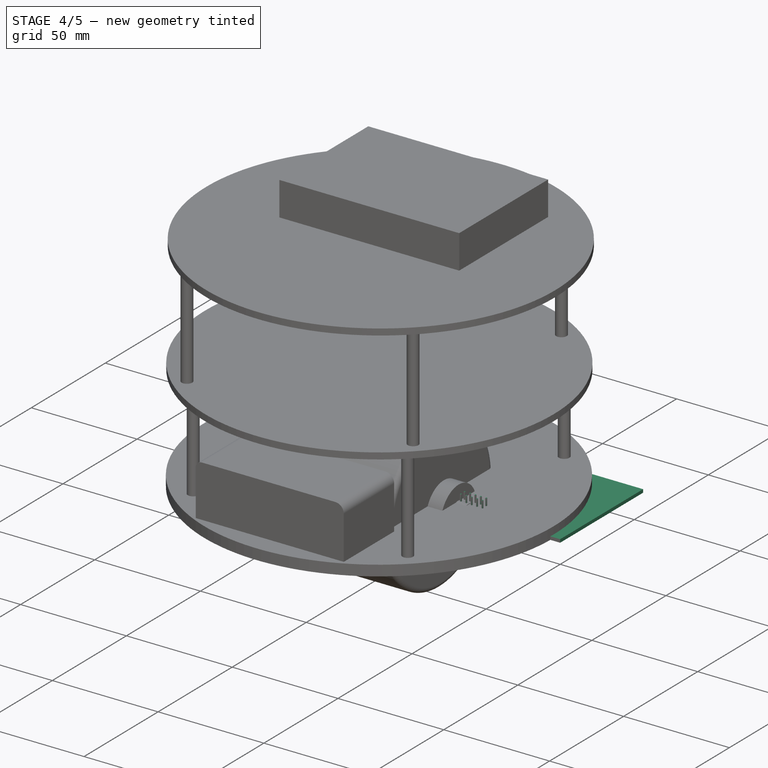
[diagram: stage 4 of 5 — iso view after this stage's code; geometry added in this stage tinted green]
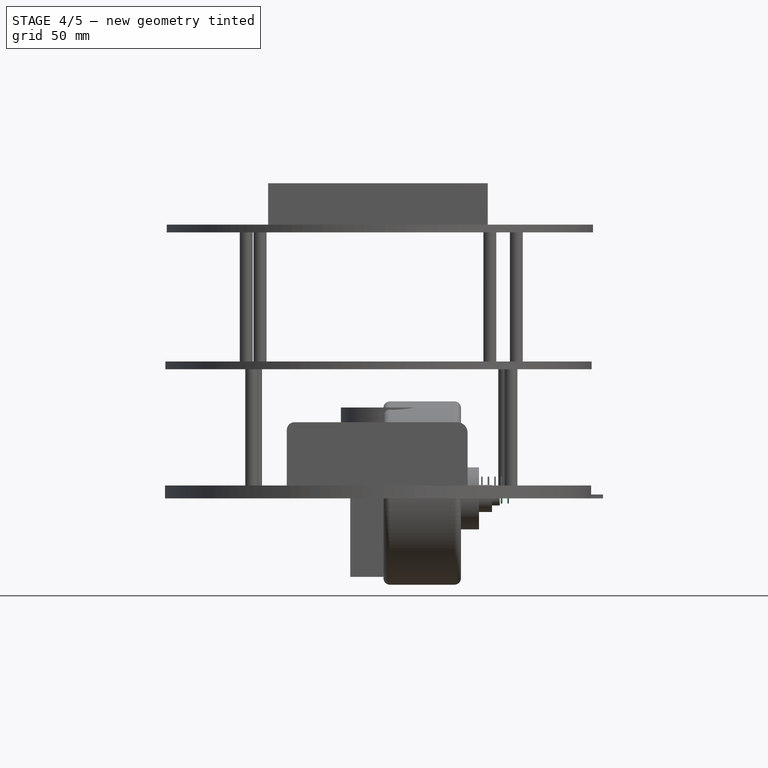
[diagram: stage 4 of 5 — front view after this stage's code; geometry added in this stage tinted green]
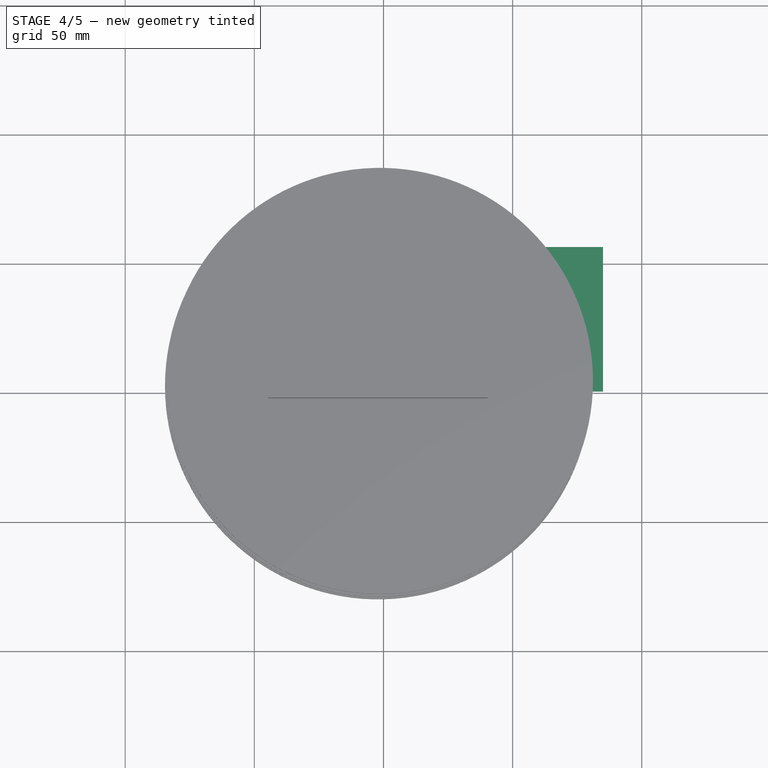
[diagram: stage 4 of 5 — top view after this stage's code; geometry added in this stage tinted green]
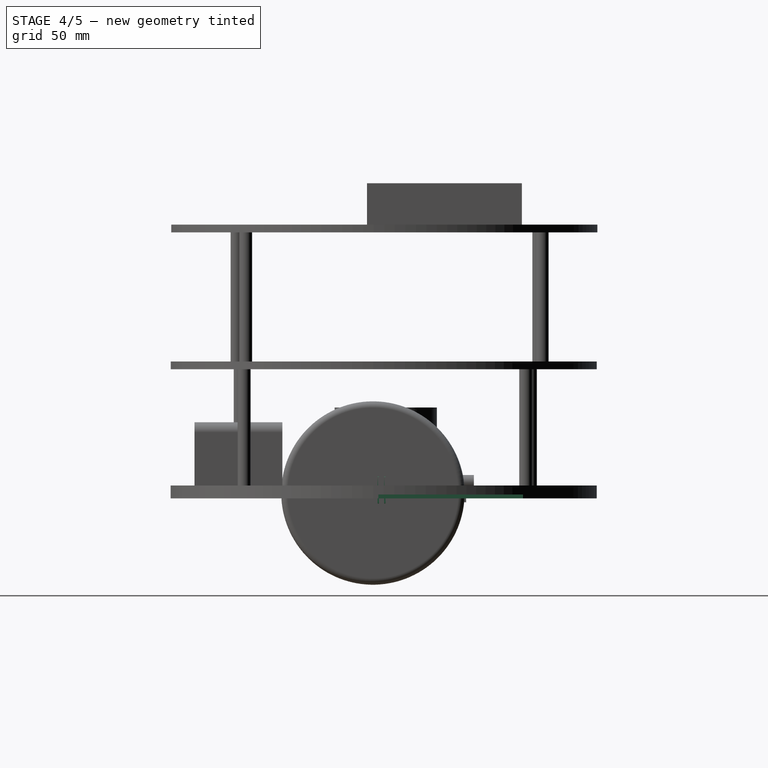
[diagram: stage 4 of 5 — right view after this stage's code; geometry added in this stage tinted green]
FEATURE [Sketcher::SketchObject] Sketch009
  ArcFitTolerance = 0
  FullyConstrained = true
  MakeInternals = false
  Placement = pos=(0,0,0) rot=(0.57735,0.57735,0.57735;2.0944rad)
  sketch-geometry (10):
    g0: ArcOfCircle CenterX=-0.7 CenterY=0.425 CenterZ=0 NormalX=0 NormalY=0 NormalZ=1 AngleXU=0 Radius=0.425 StartAngle=4.71239 EndAngle=6.28319
    g1: ArcOfCircle CenterX=-0.7 CenterY=0.425 CenterZ=0 NormalX=0 NormalY=0 NormalZ=1 AngleXU=0 Radius=0.275 StartAngle=4.71239 EndAngle=6.28319
    g2: LineSegment StartX=-0.7 StartY=0.15 StartZ=0 EndX=-0.7 EndY=0 EndZ=0
    g3: LineSegment StartX=0 StartY=1.1 StartZ=0 EndX=0 EndY=0.95 EndZ=0
    g4: LineSegment StartX=-0.425 StartY=0.675 StartZ=0 EndX=-0.425 EndY=0.425 EndZ=0
    g5: LineSegment StartX=-0.275 StartY=0.675 StartZ=0 EndX=-0.275 EndY=0.425 EndZ=0
    g6: ArcOfCircle CenterX=0 CenterY=0.675 CenterZ=0 NormalX=0 NormalY=0 NormalZ=1 AngleXU=0 Radius=0.425 StartAngle=1.5708 EndAngle=3.14159
    g7: ArcOfCircle CenterX=0 CenterY=0.675 CenterZ=0 NormalX=0 NormalY=0 NormalZ=1 AngleXU=0 Radius=0.275 StartAngle=1.5708 EndAngle=3.14159
    g8: LineSegment [constr] StartX=-0.7 StartY=0.425 StartZ=0 EndX=-0.425 EndY=0.425 EndZ=0
    g9: LineSegment [constr] StartX=-0.275 StartY=0.675 StartZ=0 EndX=0 EndY=0.675 EndZ=0
  constraints (30):
    c: Coincident(g2,g1)
    c: Coincident(g2,g0)
    c: Coincident(g1,g0)
    c: Vertical(g2)
    c: Perpendicular(g1,g2)
    c: PointOnObject(g0,g-1)
    c: Distance(g2) = 0.15
    c: Vertical(g3)
    c: PointOnObject(g3,g-2)
    c: Coincident(g4,g1)
    c: Coincident(g4,g6)
    c: Coincident(g5,g0)
    c: Coincident(g5,g7)
    c: Vertical(g4)
    c: Vertical(g5)
    c: Coincident(g6,g3)
    c: Coincident(g7,g3)
    c: Perpendicular(g6,g3)
    c: Coincident(g7,g6)
    c: Tangent(g4,g6)
    c: Tangent(g4,g1)
    c: Tangent(g5,g7)
    c: Tangent(g0,g5)
    c: DistanceY(g-1,g3) = 1.1
    c: DistanceX(g0,g-1) = 0.7
    c: Coincident(g0,g8)
    c: Coincident(g8,g1)
    c: Coincident(g9,g5)
    c: Coincident(g9,g6)
    c: Equal(g8,g9)
FEATURE [Sketcher::SketchObject] Sketch010
  ArcFitTolerance = 0
  FullyConstrained = true
  MakeInternals = false
  Placement = pos=(0,0,0) rot=(0.57735,0.57735,0.57735;2.0944rad)
  sketch-geometry (8):
    g0: LineSegment StartX=0 StartY=0 StartZ=0 EndX=0.4 EndY=0 EndZ=0
    g1: LineSegment StartX=0 StartY=0.3 StartZ=0 EndX=0.4 EndY=0.3 EndZ=0
    g2: LineSegment StartX=0 StartY=0.3 StartZ=0 EndX=0 EndY=0 EndZ=0
    g3: LineSegment StartX=0.7 StartY=0.6 StartZ=0 EndX=0.7 EndY=0.8 EndZ=0
    g4: LineSegment StartX=1 StartY=0.6 StartZ=0 EndX=1 EndY=0.8 EndZ=0
    g5: LineSegment StartX=0.7 StartY=0.8 StartZ=0 EndX=1 EndY=0.8 EndZ=0
    g6: ArcOfCircle CenterX=0.4 CenterY=0.6 CenterZ=0 NormalX=0 NormalY=0 NormalZ=1 AngleXU=0 Radius=0.3 StartAngle=4.71239 EndAngle=6.28319
    g7: ArcOfCircle CenterX=0.4 CenterY=0.6 CenterZ=0 NormalX=0 NormalY=0 NormalZ=1 AngleXU=0 Radius=0.6 StartAngle=4.71239 EndAngle=6.28319
  constraints (24):
    c: Coincident(g7,g6)
    c: Coincident(g6,g1)
    c: Coincident(g7,g0)
    c: Coincident(g7,g4)
    c: Coincident(g6,g3)
    c: Coincident(g5,g3)
    c: Coincident(g5,g4)
    c: Coincident(g0,g2)
    c: Coincident(g2,g1)
    c: Coincident(g0,g-1)
    c: Horizontal(g0)
    c: Perpendicular(g0,g2)
    c: Perpendicular(g4,g5)
    c: Vertical(g4)
    c: Parallel(g3,g4)
    c: Parallel(g1,g0)
    c: Tangent(g6,g3)
    c: Tangent(g6,g1)
    c: Tangent(g7,g4)
    c: Tangent(g7,g0)
    c: Distance(g2) = 0.3
    c: DistanceX(g0,g4) = 1
    c: DistanceY(g0,g3) = 0.8
    c: Radius(g7) = 0.6
FEATURE [Sketcher::SketchObject] Sketch006
  ArcFitTolerance = 0
  FullyConstrained = true
  MakeInternals = false
  Placement = pos=(0,0,0) rot=(0.57735,0.57735,0.57735;2.0944rad)
  sketch-geometry (8):
    g0: LineSegment StartX=0 StartY=0 StartZ=0 EndX=0.4 EndY=0 EndZ=0
    g1: LineSegment StartX=0 StartY=0.3 StartZ=0 EndX=0.4 EndY=0.3 EndZ=0
    g2: LineSegment StartX=0 StartY=0.3 StartZ=0 EndX=0 EndY=0 EndZ=0
    g3: LineSegment StartX=0.7 StartY=0.6 StartZ=0 EndX=0.7 EndY=0.8 EndZ=0
    g4: LineSegment StartX=1 StartY=0.6 StartZ=0 EndX=1 EndY=0.8 EndZ=0
    g5: LineSegment StartX=0.7 StartY=0.8 StartZ=0 EndX=1 EndY=0.8 EndZ=0
    g6: ArcOfCircle CenterX=0.4 CenterY=0.6 CenterZ=0 NormalX=0 NormalY=0 NormalZ=1 AngleXU=0 Radius=0.3 StartAngle=4.71239 EndAngle=6.28319
    g7: ArcOfCircle CenterX=0.4 CenterY=0.6 CenterZ=0 NormalX=0 NormalY=0 NormalZ=1 AngleXU=0 Radius=0.6 StartAngle=4.71239 EndAngle=6.28319
  constraints (24):
    c: Coincident(g7,g6)
    c: Coincident(g6,g1)
    c: Coincident(g7,g0)
    c: Coincident(g7,g4)
    c: Coincident(g6,g3)
    c: Coincident(g5,g3)
    c: Coincident(g5,g4)
    c: Coincident(g0,g2)
    c: Coincident(g2,g1)
    c: Coincident(g0,g-1)
    c: Horizontal(g0)
    c: Perpendicular(g0,g2)
    c: Perpendicular(g4,g5)
    c: Vertical(g4)
    c: Parallel(g3,g4)
    c: Parallel(g1,g0)
    c: Tangent(g6,g3)
    c: Tangent(g6,g1)
    c: Tangent(g7,g4)
    c: Tangent(g7,g0)
    c: Distance(g2) = 0.3
    c: DistanceX(g0,g4) = 1
    c: DistanceY(g0,g3) = 0.8
    c: Radius(g7) = 0.6
FEATURE [Sketcher::SketchObject] Sketch011
  ArcFitTolerance = 0
  FullyConstrained = true
  MakeInternals = false
  Placement = pos=(0,0,0) rot=(0.57735,0.57735,0.57735;2.0944rad)
  sketch-geometry (12):
    g0: LineSegment StartX=0 StartY=0 StartZ=0 EndX=3 EndY=-1.7514e-12 EndZ=0
    g1: LineSegment StartX=0 StartY=-0.3 StartZ=0 EndX=3 EndY=-0.3 EndZ=0
    g2: ArcOfCircle CenterX=3 CenterY=-0.440663 CenterZ=0 NormalX=0 NormalY=0 NormalZ=1 AngleXU=0 Radius=0.440663 StartAngle=0.523599 EndAngle=1.5708
    g3: ArcOfCircle CenterX=3 CenterY=-0.440663 CenterZ=0 NormalX=0 NormalY=0 NormalZ=1 AngleXU=0 Radius=0.140663 StartAngle=0.523599 EndAngle=1.5708
    g4: LineSegment StartX=3.38163 StartY=-0.220332 StartZ=0 EndX=3.68538 EndY=-0.746441 EndZ=0
    g5: LineSegment StartX=3.12182 StartY=-0.370332 StartZ=0 EndX=3.42557 EndY=-0.896441 EndZ=0
    g6: ArcOfCircle CenterX=3.85858 CenterY=-0.646443 CenterZ=0 NormalX=0 NormalY=0 NormalZ=1 AngleXU=0 Radius=0.2 StartAngle=3.66518 EndAngle=5.49779
    g7: ArcOfCircle CenterX=3.85858 CenterY=-0.646443 CenterZ=0 NormalX=0 NormalY=0 NormalZ=1 AngleXU=0 Radius=0.5 StartAngle=3.66519 EndAngle=5.49778
    g8: LineSegment StartX=4 StartY=-0.787864 StartZ=0 EndX=4.78787 EndY=-1.347e-13 EndZ=0
    g9: LineSegment StartX=4.21213 StartY=-1 StartZ=0 EndX=5 EndY=-0.212133 EndZ=0
    g10: ArcOfCircle CenterX=4.89393 CenterY=-0.106066 CenterZ=0 NormalX=0 NormalY=0 NormalZ=1 AngleXU=0 Radius=0.15 StartAngle=5.49778 EndAngle=8.63938
    g11: LineSegment StartX=0 StartY=0 StartZ=0 EndX=0 EndY=-0.3 EndZ=0
  constraints (38):
    c: Coincident(g11,g0)
    c: Coincident(g0,g-1)
    c: Coincident(g3,g2)
    c: Coincident(g7,g6)
    c: Coincident(g0,g2)
    c: Coincident(g2,g4)
    c: Coincident(g1,g3)
    c: Coincident(g3,g5)
    c: Coincident(g11,g1)
    c: Coincident(g5,g7)
    c: Coincident(g7,g9)
    c: Coincident(g4,g6)
    c: Coincident(g6,g8)
    c: Coincident(g8,g10)
    c: Coincident(g9,g10)
    c: Vertical(g11)
    c: Perpendicular(g0,g11)
    c: Parallel(g0,g1)
    c: Distance(g11) = 0.3
    c: Tangent(g0,g2)
    c: Tangent(g1,g3)
    c: Tangent(g2,g4)
    c: Tangent(g3,g5)
    c: Parallel(g4,g5)
    c: Tangent(g4,g6)
    c: Tangent(g6,g8)
    c: Tangent(g5,g7)
    c: Tangent(g7,g9)
    c: Tangent(g8,g10)
    c: Tangent(g10,g9)
    c: Parallel(g8,g9)
    c: Angle(g1,g5) = 2.0944
    c: Angle(g-1,g8) = 0.785398
    c: Radius(g6) = 0.2
    c: DistanceX(g0,g0) = 3
    c: DistanceY(g7,g0) = 1
    c: DistanceX(g0,g9) = 5
    c: PointOnObject(g8,g-1)
FEATURE [Sketcher::SketchObject] Sketch012
  ArcFitTolerance = 0
  FullyConstrained = true
  MakeInternals = false
  Placement = pos=(0,0,0) rot=(1,0,0;1.5708rad)
  sketch-geometry (20):
    g0: LineSegment StartX=-6 StartY=9.7 StartZ=0 EndX=-6 EndY=2.7 EndZ=0
    g1: LineSegment StartX=-6 StartY=2.7 StartZ=0 EndX=6 EndY=2.7 EndZ=0
    g2: LineSegment StartX=6 StartY=2.7 StartZ=0 EndX=6 EndY=9.7 EndZ=0
    g3: LineSegment StartX=6 StartY=9.7 StartZ=0 EndX=3.15 EndY=9.7 EndZ=0
    g4: LineSegment StartX=3.15 StartY=9.7 StartZ=0 EndX=3.15 EndY=11.3 EndZ=0
    g5: LineSegment StartX=3.15 StartY=11.3 StartZ=0 EndX=2.05 EndY=11.3 EndZ=0
    g6: LineSegment StartX=2.05 StartY=11.3 StartZ=0 EndX=2.05 EndY=12.5 EndZ=0
    g7: LineSegment StartX=2.05 StartY=12.5 StartZ=0 EndX=-2.05 EndY=12.5 EndZ=0
    g8: LineSegment StartX=-2.05 StartY=12.5 StartZ=0 EndX=-2.05 EndY=11.3 EndZ=0
    g9: LineSegment StartX=-2.05 StartY=11.3 StartZ=0 EndX=-3.15 EndY=11.3 EndZ=0
    g10: LineSegment StartX=-3.15 StartY=11.3 StartZ=0 EndX=-3.15 EndY=9.7 EndZ=0
    g11: LineSegment StartX=-3.15 StartY=9.7 StartZ=0 EndX=-6 EndY=9.7 EndZ=0
    g12: LineSegment StartX=-6.8 StartY=11.7 StartZ=0 EndX=-3.8 EndY=11.7 EndZ=0
    g13: LineSegment StartX=-3.8 StartY=11.7 StartZ=0 EndX=-3.8 EndY=10.5 EndZ=0
    g14: LineSegment StartX=-3.8 StartY=10.5 StartZ=0 EndX=-6.8 EndY=10.5 EndZ=0
    g15: LineSegment StartX=-6.8 StartY=10.5 StartZ=0 EndX=-6.8 EndY=11.7 EndZ=0
    g16: LineSegment StartX=3.8 StartY=11.7 StartZ=0 EndX=6.8 EndY=11.7 EndZ=0
    g17: LineSegment StartX=6.8 StartY=11.7 StartZ=0 EndX=6.8 EndY=10.5 EndZ=0
    g18: LineSegment StartX=6.8 StartY=10.5 StartZ=0 EndX=3.8 EndY=10.5 EndZ=0
    g19: LineSegment StartX=3.8 StartY=10.5 StartZ=0 EndX=3.8 EndY=11.7 EndZ=0
  constraints (54):
    c: Coincident(g0,g1)
    c: Coincident(g1,g2)
    c: Coincident(g2,g3)
    c: Coincident(g3,g4)
    c: Coincident(g4,g5)
    c: Coincident(g5,g6)
    c: Coincident(g6,g7)
    c: Coincident(g7,g8)
    c: Coincident(g8,g9)
    c: Coincident(g9,g10)
    c: Coincident(g10,g11)
    c: Coincident(g11,g0)
    c: Symmetric(g0,g1,g-2)
    c: Symmetric(g0,g2,g-2)
    c: Symmetric(g9,g4,g-2)
    c: Symmetric(g7,g6,g-2)
    c: Horizontal(g9)
    c: Horizontal(g5)
    c: Horizontal(g11)
    c: Horizontal(g3)
    c: Vertical(g8)
    c: Vertical(g6)
    c: Vertical(g4)
    c: Vertical(g10)
    c: Vertical(g0)
    c: DistanceX(g10,g3) = 6.3
    c: Distance(g7) = 4.1
    c: Distance(g1) = 12
    c: DistanceY(g-1,g1) = 2.7
    c: Distance(g0) = 7
    c: DistanceY(g0,g9) = 8.6
    c: DistanceY(g0,g7) = 9.8
    c: Coincident(g12,g13)
    c: Coincident(g13,g14)
    c: Coincident(g14,g15)
    c: Coincident(g15,g12)
    c: Horizontal(g12)
    c: Horizontal(g14)
    c: Vertical(g13)
    c: Vertical(g15)
    c: Coincident(g16,g17)
    c: Coincident(g17,g18)
    c: Coincident(g18,g19)
    c: Coincident(g19,g16)
    c: Horizontal(g16)
    c: Horizontal(g18)
    c: Vertical(g17)
    c: Vertical(g19)
    c: Symmetric(g14,g17,g-2)
    c: Symmetric(g12,g16,g-2)
    c: DistanceY(g0,g14) = 0.8
    c: Distance(g15) = 1.2
    c: Distance(g12) = 3
    c: DistanceX(g12,g16) = 7.6
FEATURE [Part::Box] Box023  label="Cube"
  AttacherType = Attacher::AttachEngine3D
  Height = 2.5
  Length = 2.46
  Placement = pos=(-1.23,-1.23,0) rot=(0,0,1;0rad)
  Width = 5
FEATURE [Part::Box] Box024  label="Cube002"
  AttacherType = Attacher::AttachEngine3D
  Height = 10.5
  Length = 0.6
  Placement = pos=(-0.3,-0.3,-2) rot=(0,0,1;0rad)
  Width = 0.6
FEATURE [Part::Chamfer] Chamfer003  label="Pin"
  Base = -> Box024
  EdgeLinks = -> Box024 [Edge2,Edge4,Edge6,Edge8,Edge9,Edge10,Edge11,Edge12]
  Edges = 8 edges r=0.2: [Edge2,Edge4,Edge6,Edge8,Edge9,Edge10,Edge11,Edge12]
FEATURE [Part::Chamfer] Chamfer004
  Base = -> Box023
  EdgeLinks = -> Box023 [Edge1,Edge3,Edge5,Edge7]
  Edges = 4 edges r=0.75: [Edge1,Edge3,Edge5,Edge7]
FEATURE [Part::Box] Box032  label="Cube003"
  AttacherType = Attacher::AttachEngine3D
  Height = 0.1
  Length = 0.2
  Placement = pos=(-2.2,2.9,0) rot=(0,0,1;0rad)
  Width = 0.6
FEATURE [Part::Box] Box035  label="Cube004"
  AttacherType = Attacher::AttachEngine3D
  Height = 0.1
  Length = 0.2
  Placement = pos=(-3.3,3.9,0) rot=(0,0,1;0rad)
  Width = 0.8
FEATURE [Part::FeaturePython] Array013  # Draft array (typed FeaturePython)
  AlwaysSyncPlacement = false
  Angle = 360
  ArrayType = 0
  Axis = (0,0,1)
  Base = -> Box035
  Center = (0,0,0)
  Count = 34
  ExpandArray = false
  Fuse = false
  IntervalAxis = (0,0,0)
  IntervalX = (0.4,0,0)
  IntervalY = (0,-8.6,0)
  IntervalZ = (0,0,100)
  NumberCircles = 3
  NumberPolar = 5
  NumberX = 17
  NumberY = 2
  NumberZ = 1
  PlacementList = 34 placements: [(-3.3,3.9,0),(-3.3,-4.7,0),(-2.9,3.9,0),(-2.9,-4.7,0),(-2.5,3.9,0),(-2.5,-4.7,0),(-2.1,3.9,0),(-2.1,-4.7,0),(-1.7,3.9,0),(-1.7,-4.7,0),(-1.3,3.9,0),(-1.3,-4.7,0),(-0.9,3.9,0),(-0.9,-4.7,0),(-0.5,3.9,0),(-0.5,-4.7,0),(-0.1,3.9,0),(-0.1,-4.7,0),(0.3,3.9,0),(0.3,-4.7,0),(0.7,3.9,0),(0.7,-4.7,0),(1.1,3.9,0),(1.1,-4.7,0),(1.5,3.9,0),(1.5,-4.7,0),(1.9,3.9,0),(1.9,-4.7,0),(2.3,3.9,0),(2.3,-4.7,0),+4 more]
  RadialDistance = 50
  ScaleList = (34) [(1,1,1),(1,1,1),(1,1,1),(1,1,1),(1,1,1),(1,1,1),(1,1,1),(1,1,1),(1,1,1),(1,1,1),(1,1,1),(1,1,1),(1,1,1),(1,1,1),(1,1,1),(1,1,1),(1,1,1),(1,1,1),+16 more]
  Symmetry = 1
  TangentialDistance = 25
FEATURE [Part::Extrusion] Extrude  label="Pin003"
  Base = -> Sketch009
  Dir = (1,0,0)
  DirMode = 2
  FaceMakerClass = Part::FaceMakerBullseye
  FaceMakerMode = 3
  LengthFwd = 2
  LengthRev = 0
  Placement = pos=(0.7,0,0) rot=(0,0,1;0rad)
  Solid = true
  Symmetric = false
FEATURE [Part::Box] Box052  label="Cube008"
  AttacherType = Attacher::AttachEngine3D
  Height = 16
  Length = 14
  Placement = pos=(-7,7.2,0) rot=(0,0,1;0rad)
  Width = 10
FEATURE [Part::Box] Box053  label="Cube009"
  AttacherType = Attacher::AttachEngine3D
  Height = 0.1
  Length = 1.2
  Placement = pos=(-4.6,15,12.5) rot=(0,0,1;0rad)
  Width = 2
FEATURE [Part::FeaturePython] Array015  # Draft array (typed FeaturePython)
  AlwaysSyncPlacement = false
  Angle = 360
  ArrayType = 0
  Axis = (0,0,1)
  Base = -> Box053
  Center = (0,0,0)
  Count = 5
  ExpandArray = false
  Fuse = false
  IntervalAxis = (0,0,0)
  IntervalX = (2,0,0)
  IntervalY = (0,100,0)
  IntervalZ = (0,0,100)
  NumberCircles = 3
  NumberPolar = 5
  NumberX = 5
  NumberY = 1
  NumberZ = 1
  PlacementList = 5 placements: arithmetic series from (-4.6,15,12.5) step (2,0,0) to (3.4,15,12.5)
  RadialDistance = 50
  ScaleList = (5) [(1,1,1),(1,1,1),(1,1,1),(1,1,1),(1,1,1)]
  Symmetry = 1
  TangentialDistance = 25
FEATURE [Part::Cylinder] Cylinder001  label="Cylinder"
  Angle = 360
  AttacherType = Attacher::AttachEngine3D
  FirstAngle = 0
  Height = 2.5
  Placement = pos=(0,0,3) rot=(1,0,0;1.5708rad)
  Radius = 3
  SecondAngle = 0
FEATURE [Part::Box] Box037  label="Cube016"
  AttacherType = Attacher::AttachEngine3D
  Height = 1.5
  Length = 2.85
  Placement = pos=(3.15,8.4,8.2) rot=(0,0,1;0rad)
  Width = 2.4
FEATURE [Part::Box] Box050  label="Cube023"
  AttacherType = Attacher::AttachEngine3D
  Height = 1.6
  Length = 11.2
  Placement = pos=(-5.6,7.2,0) rot=(0,0,1;0rad)
  Width = 10
FEATURE [Part::Box] Box051  label="Cube024"
  AttacherType = Attacher::AttachEngine3D
  Height = 13.4
  Length = 12.6
  Placement = pos=(-6.3,0.3,1.8) rot=(0,0,1;0rad)
  Width = 16.2
FEATURE [Part::Chamfer] Chamfer006  label="Chamfer007"
  Base = -> Box050
  EdgeLinks = -> Box050 [Edge2,Edge3,Edge6,Edge7,Edge12]
  Edges = 5 edges: [Edge2 r=0.2,Edge3 r=0.5,Edge6 r=0.2,Edge7 r=0.5,Edge12 r=0.5]
  Placement = pos=(0,0,12.6) rot=(0,0,1;0rad)
FEATURE [Part::FeaturePython] Clone019  label="Chamfer006"  # Draft clone (typed FeaturePython)
  AttacherType = Attacher::AttachEngine3D
  Fuse = false
  Objects = -> [Chamfer006]
  Placement = pos=(0,0,4.2) rot=(0,0,1;0rad)
  Scale = (1,1,1)
FEATURE [Part::Fillet] Fillet007
  Base = -> Box051
  EdgeLinks = -> Box051 [Edge2,Edge4,Edge6,Edge8]
  Edges = 4 edges r=0.5: [Edge2,Edge4,Edge6,Edge8]
FEATURE [Part::Cut] Cut007
  Base = -> Fillet007
  Refine = true
  Tool = -> Box052
FEATURE [Part::MultiFuse] Fusion039  label="Pin Carrier001"
  Refine = true
  Shapes = -> [Cut007,Chamfer006,Clone019]
FEATURE [Part::Extrusion] Extrude010  label="Extrude017"
  Base = -> Sketch014
  Dir = (1,0,0)
  DirMode = 2
  FaceMakerClass = Part::FaceMakerBullseye
  FaceMakerMode = 3
  LengthFwd = 1
  LengthRev = 0
  Placement = pos=(-4,0,0) rot=(0,0,1;0rad)
  Solid = true
  Symmetric = false
FEATURE [Part::FeaturePython] Clone021  label="Extrude010"  # Draft clone (typed FeaturePython)
  AttacherType = Attacher::AttachEngine3D
  Fuse = false
  Objects = -> [Extrude010]
  Placement = pos=(-1.5,0,0) rot=(0,0,1;0rad)
  Scale = (1,1,1)
FEATURE [Part::FeaturePython] Clone022  label="Extrude011"  # Draft clone (typed FeaturePython)
  AttacherType = Attacher::AttachEngine3D
  Fuse = false
  Objects = -> [Extrude010]
  Placement = pos=(0.5,0,0) rot=(0,0,1;0rad)
  Scale = (1,1,1)
FEATURE [Part::FeaturePython] Clone023  label="Extrude012"  # Draft clone (typed FeaturePython)
  AttacherType = Attacher::AttachEngine3D
  Fuse = false
  Objects = -> [Extrude010]
  Placement = pos=(3,0,0) rot=(0,0,1;0rad)
  Scale = (1,1,1)
FEATURE [Part::MultiFuse] Fusion040
  Placement = pos=(0,10,12.6) rot=(0,0,1;0rad)
  Refine = true
  Shapes = -> [Extrude010,Clone021,Clone022,Clone023]
FEATURE [Part::MultiFuse] Fusion041  label="Pins (Upper Connector)001"
  Refine = true
  Shapes = -> [Array015,Fusion040]
FEATURE [Part::Box] Box  label="Cube028"
  AttacherType = Attacher::AttachEngine3D
  Height = 1.5
  Length = 85
  Width = 56
FEATURE [Part::Box] Box021  label="Cube029"
  AttacherType = Attacher::AttachEngine3D
  Height = 2.5
  Length = 2.46
  Placement = pos=(-1.23,-1.23,0) rot=(0,0,1;0rad)
  Width = 5
FEATURE [Part::Chamfer] Chamfer002
  Base = -> Box021
  EdgeLinks = -> Box021 [Edge1,Edge3,Edge5,Edge7]
  Edges = 4 edges r=0.75: [Edge1,Edge3,Edge5,Edge7]
FEATURE [Part::Box] Box020  label="Cube030"
  AttacherType = Attacher::AttachEngine3D
  Height = 10.5
  Length = 0.6
  Placement = pos=(-0.3,-0.3,-2) rot=(0,0,1;0rad)
  Width = 0.6
FEATURE [Part::Chamfer] Chamfer001  label="Pin002"
  Base = -> Box020
  EdgeLinks = -> Box020 [Edge2,Edge4,Edge6,Edge8,Edge9,Edge10,Edge11,Edge12]
  Edges = 8 edges r=0.2: [Edge2,Edge4,Edge6,Edge8,Edge9,Edge10,Edge11,Edge12]
FEATURE [Part::Box] Box022  label="Cube031"
  AttacherType = Attacher::AttachEngine3D
  Height = 2.3
  Length = 48.26
  Placement = pos=(0,-0.33,0.1) rot=(0,0,1;0rad)
  Width = 3.2
FEATURE [Part::Cylinder] Cylinder  label="Cylinder003"
  Angle = 360
  AttacherType = Attacher::AttachEngine3D
  FirstAngle = 0
  Height = 1.5
  Placement = pos=(3.5,3.5,0) rot=(0,0,1;0rad)
  Radius = 1.35
  SecondAngle = 0
FEATURE [Part::Box] Box040  label="Cube032"
  AttacherType = Attacher::AttachEngine3D
  Height = 9.6
  Length = 12.8
  Placement = pos=(-6.4,0,2.2) rot=(0,0,1;0rad)
  Width = 0.2
FEATURE [Part::Box] Box041  label="Cube033"
  AttacherType = Attacher::AttachEngine3D
  Height = 1.6
  Length = 4.2
  Placement = pos=(-2.1,0,11.8) rot=(0,0,1;0rad)
  Width = 0.2
FEATURE [Part::Box] Box042  label="Package002"
  AttacherType = Attacher::AttachEngine3D
  Height = 1
  Length = 5
  Placement = pos=(-2.5,-2.5,0.1) rot=(0,0,1;0rad)
  Width = 5
FEATURE [Part::Box] Box045  label="Body004"
  AttacherType = Attacher::AttachEngine3D
  Height = 2.2
  Length = 3.4
  Placement = pos=(0,0,0.1) rot=(0,0,1;0rad)
  Width = 4.2
FEATURE [Part::FeaturePython] Clone011  label="Pin004"  # Draft clone (typed FeaturePython)
  AttacherType = Attacher::AttachEngine3D
  Fuse = false
  Objects = -> [Extrude]
  Placement = pos=(0.7,0,0) rot=(0,0,1;0rad)
  Scale = (1,1,1)
FEATURE [Part::Mirroring] Part__Mirroring  label="Pin001"
  Base = (0,0,0)
  Normal = (0,1,0)
  Placement = pos=(0,4.2,0) rot=(0,0,1;0rad)
  Source = -> Clone011
FEATURE [Part::MultiFuse] Fusion028  label="Pins003"
  Refine = true
  Shapes = -> [Extrude,Part__Mirroring]
FEATURE [App::Part] Part017  label="Micro HDMI Socket"
  Group = -> [Box066,Box064,Box063,Box065,Cut014,Fusion048,Extrude015,Extrude011,Extrude013,Extrude012,Extrude014,Common002,Cut015,Fusion049,Clone035,Sketch015,Wedge006,Wedge007,Sketch016,Sketch020,Sketch019,Sketch018,Clone036,Clone034,Clone033,Clone032,Fusion050]
  Origin = -> Origin017
  Placement = pos=(39.5,6.5,1.5) rot=(0,0,1;0rad)
FEATURE [Part::FeaturePython] Clone  label="Cube041"  # Draft clone (typed FeaturePython)
  AttacherType = Attacher::AttachEngine3D
  Fuse = false
  Objects = -> [Box037]
  Placement = pos=(-6,8.4,8.2) rot=(0,0,1;0rad)
  Scale = (1,1,1)
FEATURE [App::Part] Part011  label="Mod. RJ45 (Ethernet)"
  Group = -> [Extrude005,Clone,Fillet008,Box036,Box007,Box038,Box037,Sketch012,Cut001,Fusion024,Fusion025,Cut008,Fusion042,Clone027,Fillet011,Box041,Box040,Box039,Cut009,Extrude003,Sketch017,Array005,Box008,Clone008]
  Origin = -> Origin011
  Placement = pos=(87.8,45.75,14.9) rot=(0.707107,-0.707107,0;3.14159rad)
FEATURE [Part::FeaturePython] Array014  # Draft array (typed FeaturePython)
  AlwaysSyncPlacement = false
  Angle = 360
  ArrayType = 0
  Axis = (0,0,1)
  Base = -> Box043
  Center = (0,0,0)
  Count = 16
  ExpandArray = false
  Fuse = false
  IntervalAxis = (0,0,0)
  IntervalX = (0.5,0,0)
  IntervalY = (0,-5.4,0)
  IntervalZ = (0,0,100)
  NumberCircles = 3
  NumberPolar = 5
  NumberX = 8
  NumberY = 2
  NumberZ = 1
  PlacementList = 16 placements: [(-1.85,2.4,0),(-1.85,-3,0),(-1.35,2.4,0),(-1.35,-3,0),(-0.85,2.4,0),(-0.85,-3,0),(-0.35,2.4,0),(-0.35,-3,0),(0.15,2.4,0),(0.15,-3,0),(0.65,2.4,0),(0.65,-3,0),(1.15,2.4,0),(1.15,-3,0),(1.65,2.4,0),(1.65,-3,0)]
  RadialDistance = 50
  ScaleList = (16) [(1,1,1),(1,1,1),(1,1,1),(1,1,1),(1,1,1),(1,1,1),(1,1,1),(1,1,1),(1,1,1),(1,1,1),(1,1,1),(1,1,1),(1,1,1),(1,1,1),(1,1,1),(1,1,1)]
  Symmetry = 1
  TangentialDistance = 25
FEATURE [Part::FeaturePython] Array  label="Mounting Holes"  # Draft array (typed FeaturePython)
  AlwaysSyncPlacement = false
  Angle = 360
  ArrayType = 0
  Axis = (0,0,1)
  Base = -> Cylinder
  Center = (0,0,0)
  Count = 4
  ExpandArray = false
  Fuse = false
  IntervalAxis = (0,0,0)
  IntervalX = (58,0,0)
  IntervalY = (0,49,0)
  IntervalZ = (0,0,100)
  NumberCircles = 3
  NumberPolar = 5
  NumberX = 2
  NumberY = 2
  NumberZ = 1
  PlacementList = 4 placements: [(3.5,3.5,0),(3.5,52.5,0),(61.5,3.5,0),(61.5,52.5,0)]
  RadialDistance = 50
  ScaleList = (4) [(1,1,1),(1,1,1),(1,1,1),(1,1,1)]
  Symmetry = 1
  TangentialDistance = 25
FEATURE [Part::FeaturePython] Array008  # Draft array (typed FeaturePython)
  AlwaysSyncPlacement = false
  Angle = 360
  ArrayType = 0
  Axis = (0,0,1)
  Base = -> Chamfer002
  Center = (0,0,0)
  Count = 20
  ExpandArray = false
  Fuse = false
  IntervalAxis = (0,0,0)
  IntervalX = (2.54,0,0)
  IntervalY = (0,100,0)
  IntervalZ = (0,0,100)
  NumberCircles = 3
  NumberPolar = 5
  NumberX = 20
  NumberY = 1
  NumberZ = 1
  PlacementList = 20 placements: arithmetic series from (0,0,0) step (2.54,0,0) to (48.26,0,0)
  RadialDistance = 50
  ScaleList = (20) [(1,1,1),(1,1,1),(1,1,1),(1,1,1),(1,1,1),(1,1,1),(1,1,1),(1,1,1),(1,1,1),(1,1,1),(1,1,1),(1,1,1),(1,1,1),(1,1,1),(1,1,1),(1,1,1),(1,1,1),(1,1,1),+2 more]
  Symmetry = 1
  TangentialDistance = 25
FEATURE [Part::FeaturePython] Array009  label="Pins005"  # Draft array (typed FeaturePython)
  AlwaysSyncPlacement = false
  Angle = 360
  ArrayType = 0
  Axis = (0,0,1)
  Base = -> Chamfer001
  Center = (0,0,0)
  Count = 40
  ExpandArray = false
  Fuse = false
  IntervalAxis = (0,0,0)
  IntervalX = (2.54,0,0)
  IntervalY = (0,2.54,0)
  IntervalZ = (0,0,100)
  NumberCircles = 3
  NumberPolar = 5
  NumberX = 20
  NumberY = 2
  NumberZ = 1
  PlacementList = 40 placements: [(0,0,0),(0,2.54,0),(2.54,0,0),(2.54,2.54,0),(5.08,0,0),(5.08,2.54,0),(7.62,0,0),(7.62,2.54,0),(10.16,0,0),(10.16,2.54,0),(12.7,0,0),(12.7,2.54,0),(15.24,0,0),(15.24,2.54,0),(17.78,0,0),(17.78,2.54,0),(20.32,0,0),(20.32,2.54,0),(22.86,0,0),(22.86,2.54,0),(25.4,0,0),(25.4,2.54,0),(27.94,0,0),(27.94,2.54,0),(30.48,0,0),(30.48,2.54,0),(33.02,0,0),(33.02,2.54,0),(35.56,0,0),(35.56,2.54,0),(38.1,0,0),+9 more]
  RadialDistance = 50
  ScaleList = (40) [(1,1,1),(1,1,1),(1,1,1),(1,1,1),(1,1,1),(1,1,1),(1,1,1),(1,1,1),(1,1,1),(1,1,1),(1,1,1),(1,1,1),(1,1,1),(1,1,1),(1,1,1),(1,1,1),(1,1,1),(1,1,1),+22 more]
  Symmetry = 1
  TangentialDistance = 25
FEATURE [App::Part] Part006  label="Header 20x2 (GPIO)"
  Group = -> [Chamfer002,Box021,Box022,Array008,Fusion020,Chamfer001,Box020,Array009]
  Origin = -> Origin006
  Placement = pos=(8.37,51.23,1.5) rot=(0,0,1;0rad)
FEATURE [Part::FeaturePython] Array010  # Draft array (typed FeaturePython)
  AlwaysSyncPlacement = false
  Angle = 360
  ArrayType = 0
  Axis = (0,0,1)
  Base = -> Chamfer004
  Center = (0,0,0)
  Count = 2
  ExpandArray = false
  Fuse = false
  IntervalAxis = (0,0,0)
  IntervalX = (2.54,0,0)
  IntervalY = (0,100,0)
  IntervalZ = (0,0,100)
  NumberCircles = 3
  NumberPolar = 5
  NumberX = 2
  NumberY = 1
  NumberZ = 1
  PlacementList = 2 placements: [(0,0,0),(2.54,0,0)]
  RadialDistance = 50
  ScaleList = (2) [(1,1,1),(1,1,1)]
  Symmetry = 1
  TangentialDistance = 25
FEATURE [Part::FeaturePython] Array011  label="Pins006"  # Draft array (typed FeaturePython)
  AlwaysSyncPlacement = false
  Angle = 360
  ArrayType = 0
  Axis = (0,0,1)
  Base = -> Chamfer003
  Center = (0,0,0)
  Count = 4
  ExpandArray = false
  Fuse = false
  IntervalAxis = (0,0,0)
  IntervalX = (2.54,0,0)
  IntervalY = (0,2.54,0)
  IntervalZ = (0,0,100)
  NumberCircles = 3
  NumberPolar = 5
  NumberX = 2
  NumberY = 2
  NumberZ = 1
  PlacementList = 4 placements: [(0,0,0),(0,2.54,0),(2.54,0,0),(2.54,2.54,0)]
  RadialDistance = 50
  ScaleList = (4) [(1,1,1),(1,1,1),(1,1,1),(1,1,1)]
  Symmetry = 1
  TangentialDistance = 25
FEATURE [App::Part] Part007  label="Header 2x2 (PoE)"
  Group = -> [Chamfer004,Box023,Box025,Array010,Fusion021,Chamfer003,Box024,Array011]
  Origin = -> Origin007
  Placement = pos=(60.23,47.63,1.5) rot=(0,0,1;-1.5708rad)
FEATURE [Part::FeaturePython] Array012  # Draft array (typed FeaturePython)
  AlwaysSyncPlacement = false
  Angle = 360
  ArrayType = 0
  Axis = (0,0,1)
  Base = -> Box032
  Center = (0,0,0)
  Count = 18
  ExpandArray = false
  Fuse = false
  IntervalAxis = (0,0,0)
  IntervalX = (0.525,0,0)
  IntervalY = (0,-6.4,0)
  IntervalZ = (0,0,100)
  NumberCircles = 3
  NumberPolar = 5
  NumberX = 9
  NumberY = 2
  NumberZ = 1
  PlacementList = 18 placements: [(-2.2,2.9,0),(-2.2,-3.5,0),(-1.675,2.9,0),(-1.675,-3.5,0),(-1.15,2.9,0),(-1.15,-3.5,0),(-0.625,2.9,0),(-0.625,-3.5,0),(-0.1,2.9,0),(-0.1,-3.5,0),(0.425,2.9,0),(0.425,-3.5,0),(0.95,2.9,0),(0.95,-3.5,0),(1.475,2.9,0),(1.475,-3.5,0),(2,2.9,0),(2,-3.5,0)]
  RadialDistance = 50
  ScaleList = (18) [(1,1,1),(1,1,1),(1,1,1),(1,1,1),(1,1,1),(1,1,1),(1,1,1),(1,1,1),(1,1,1),(1,1,1),(1,1,1),(1,1,1),(1,1,1),(1,1,1),(1,1,1),(1,1,1),(1,1,1),(1,1,1)]
  Symmetry = 1
  TangentialDistance = 25
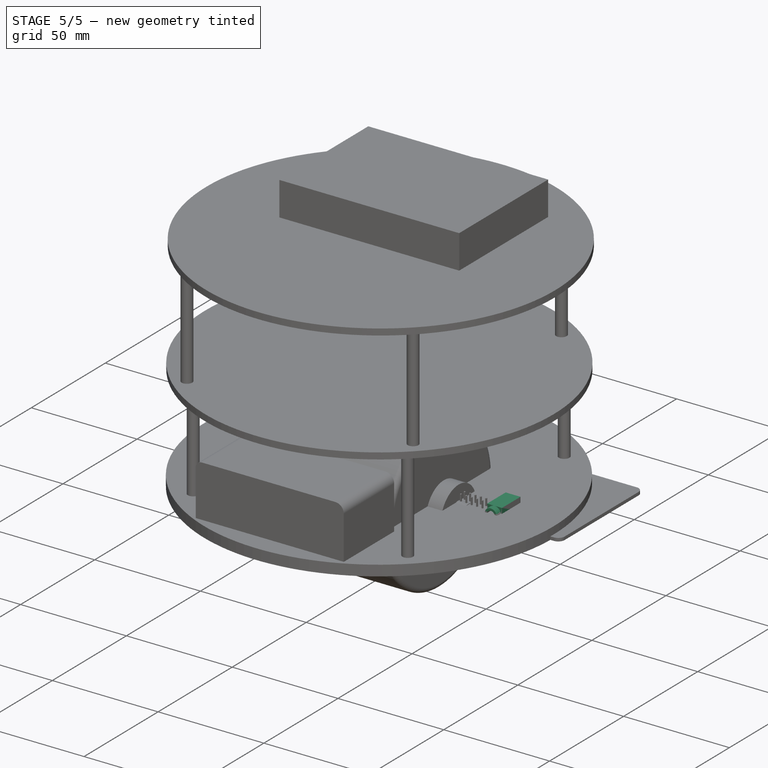
[diagram: stage 5 of 5 — iso view after this stage's code; geometry added in this stage tinted green]
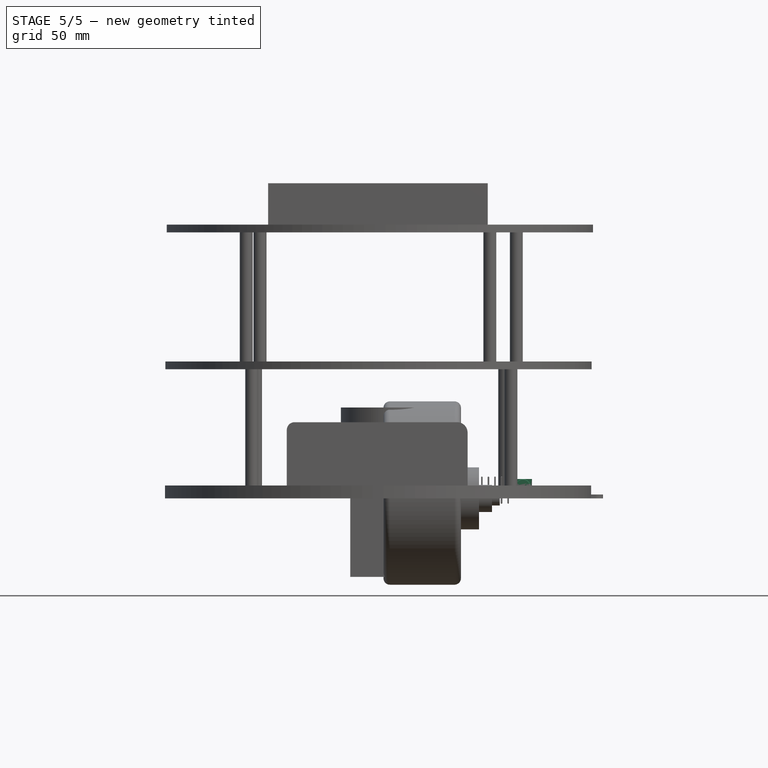
[diagram: stage 5 of 5 — front view after this stage's code; geometry added in this stage tinted green]
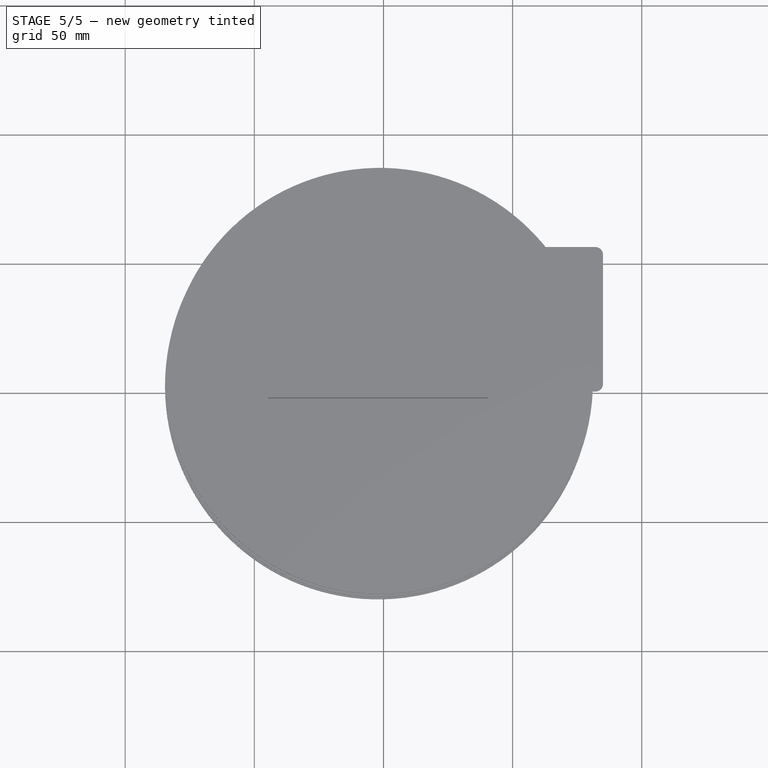
[diagram: stage 5 of 5 — top view after this stage's code; geometry added in this stage tinted green]
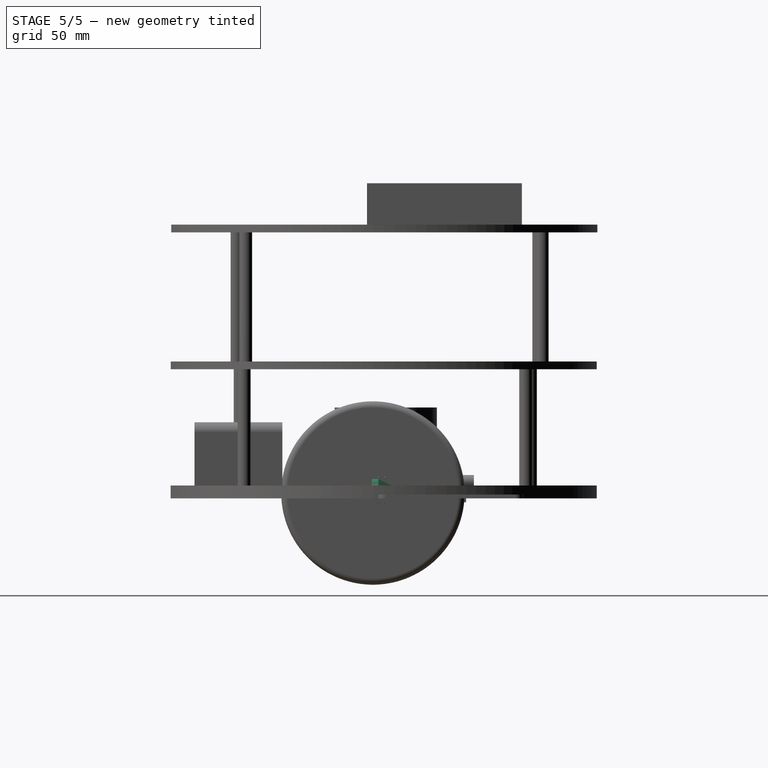
[diagram: stage 5 of 5 — right view after this stage's code; geometry added in this stage tinted green]
FEATURE [Part::Box] Box025  label="Cube001"
  AttacherType = Attacher::AttachEngine3D
  Height = 2.3
  Length = 2.54
  Placement = pos=(0,-0.33,0.1) rot=(0,0,1;0rad)
  Width = 3.2
FEATURE [Part::Box] Box029  label="Radio"
  AttacherType = Attacher::AttachEngine3D
  Height = 1.75
  Length = 10.8
  Placement = pos=(6.6,36,1.5) rot=(0,0,1;0rad)
  Width = 13
FEATURE [Part::Box] Box030  label="RAM (LPDDR4)"
  AttacherType = Attacher::AttachEngine3D
  Height = 1
  Length = 10
  Placement = pos=(39,25,1.5) rot=(0,0,1;0rad)
  Width = 15
FEATURE [Part::Box] Box031  label="Package"
  AttacherType = Attacher::AttachEngine3D
  Height = 1
  Length = 6
  Placement = pos=(-3,-3,0.1) rot=(0,0,1;0rad)
  Width = 6
FEATURE [Part::Box] Box033  label="Capacitor"
  AttacherType = Attacher::AttachEngine3D
  Height = 2
  Length = 7
  Placement = pos=(69.8,29.75,1.5) rot=(0,0,1;1.5708rad)
  Width = 4.5
FEATURE [Part::Box] Box034  label="Package001"
  AttacherType = Attacher::AttachEngine3D
  Height = 1
  Length = 8
  Placement = pos=(-4,-4,0.1) rot=(0,0,1;0rad)
  Width = 8
FEATURE [Part::Wedge] Wedge  label="Wedge001"
  AttacherType = Attacher::AttachEngine3D
  Placement = pos=(0,0,1.5) rot=(1,0,0;1.5708rad)
  X2max = 5.1
  X2min = -5.1
  Xmax = 6.3
  Xmin = -6.3
  Ymax = 0.8
  Ymin = 0
  Z2max = 5.1
  Z2min = -5.1
  Zmax = 6.3
  Zmin = -6.3
FEATURE [Part::Fillet] Fillet003
  Base = -> Wedge
  EdgeLinks = -> Wedge [Edge2,Edge3,Edge4,Edge6,Edge7,Edge8,Edge11,Edge12]
  Edges = 8 edges: [Edge2 r=1.6,Edge3 r=1,Edge4 r=1.6,Edge6 r=1.6,Edge7 r=1,Edge8 r=1.6,Edge11 r=1,Edge12 r=1]
FEATURE [Sketcher::SketchObject] Sketch013
  ArcFitTolerance = 0
  FullyConstrained = false
  MakeInternals = false
  sketch-geometry (12):
    g0: LineSegment StartX=0 StartY=2 StartZ=0 EndX=0 EndY=0 EndZ=0
    g1: LineSegment StartX=0 StartY=0 StartZ=0 EndX=0.3 EndY=0 EndZ=0
    g2: LineSegment StartX=0.3 StartY=0 StartZ=0 EndX=0.3 EndY=2 EndZ=0
    g3: LineSegment StartX=0.194005 StartY=2.37268 StartZ=0 EndX=0.545498 EndY=2.6188 EndZ=0
    g4: LineSegment StartX=0.366078 StartY=2.12694 StartZ=0 EndX=0.717571 EndY=2.37305 EndZ=0
    g5: LineSegment StartX=0.583989 StartY=2.91119 StartZ=0 EndX=2.89955e-11 EndY=3.60716 EndZ=0
    g6: LineSegment StartX=0.813804 StartY=3.10402 StartZ=0 EndX=0.229811 EndY=3.8 EndZ=0
    g7: ArcOfCircle CenterX=0.114905 CenterY=3.70358 CenterZ=0 NormalX=0 NormalY=0 NormalZ=1 AngleXU=0 Radius=0.15 StartAngle=0.698134 EndAngle=3.83975
    g8: ArcOfCircle CenterX=0.430783 CenterY=2.78263 CenterZ=0 NormalX=0 NormalY=0 NormalZ=1 AngleXU=0 Radius=0.2 StartAngle=5.32325 EndAngle=6.98134
    g9: ArcOfCircle CenterX=0.430783 CenterY=2.78263 CenterZ=0 NormalX=0 NormalY=0 NormalZ=1 AngleXU=0 Radius=0.5 StartAngle=5.32325 EndAngle=6.98132
    g10: ArcOfCircle CenterX=0.45496 CenterY=2 CenterZ=0 NormalX=0 NormalY=0 NormalZ=1 AngleXU=0 Radius=0.45496 StartAngle=2.18166 EndAngle=3.14159
    g11: ArcOfCircle CenterX=0.45496 CenterY=2 CenterZ=0 NormalX=0 NormalY=0 NormalZ=1 AngleXU=0 Radius=0.15496 StartAngle=2.18166 EndAngle=3.14159
  constraints (37):
    c: Coincident(g0,g1)
    c: Coincident(g1,g2)
    c: Coincident(g0,g10)
    c: Coincident(g10,g3)
    c: Coincident(g3,g8)
    c: Coincident(g8,g5)
    c: Coincident(g5,g7)
    c: Coincident(g7,g6)
    c: Coincident(g6,g9)
    c: Coincident(g9,g4)
    c: Coincident(g4,g11)
    c: Coincident(g11,g2)
    c: Coincident(g0,g-1)
    c: Coincident(g11,g10)
    c: Coincident(g8,g9)
    c: Horizontal(g1)
    c: Perpendicular(g0,g1)
    c: Parallel(g0,g2)
    c: Parallel(g3,g4)
    c: Parallel(g5,g6)
    c: Tangent(g0,g10)
    c: Tangent(g10,g3)
    c: Tangent(g2,g11)
    c: Tangent(g3,g8)
    c: Tangent(g8,g5)
    c: Tangent(g5,g7)
    c: Tangent(g11,g4)
    c: Tangent(g4,g9)
    c: Tangent(g9,g6)
    c: Tangent(g6,g7)
    c: Distance(g1) = 0.3
    c: Distance(g0) = 2
    c: PointOnObject(g5,g-2)
    c: DistanceY(g0,g6) = 3.8
    c: Angle(g-2,g5) = 0.698132
    c: Radius(g8) = 0.2
    c: Angle(g2,g4) = 2.18166
FEATURE [Sketcher::SketchObject] Sketch014
  ArcFitTolerance = 0
  FullyConstrained = true
  MakeInternals = false
  Placement = pos=(0,0,0) rot=(0.57735,0.57735,0.57735;2.0944rad)
  sketch-geometry (12):
    g0: LineSegment StartX=1.2797 StartY=-0.17985 StartZ=0 EndX=0 EndY=0 EndZ=0
    g1: LineSegment StartX=0 StartY=0 StartZ=0 EndX=-2.15559 EndY=0 EndZ=0
    g2: LineSegment StartX=-2.15559 StartY=0 StartZ=0 EndX=1.23795 EndY=-0.47693 EndZ=0
    g3: LineSegment StartX=1.40833 StartY=-0.561879 StartZ=0 EndX=1.59645 EndY=-0.749999 EndZ=0
    g4: LineSegment StartX=1.62046 StartY=-0.349747 StartZ=0 EndX=1.80858 EndY=-0.537867 EndZ=0
    g5: LineSegment StartX=2.16213 StartY=-0.537867 StartZ=0 EndX=2.5 EndY=-0.2 EndZ=0
    g6: LineSegment StartX=2.37426 StartY=-0.75 StartZ=0 EndX=2.71213 EndY=-0.412132 EndZ=0
    g7: ArcOfCircle CenterX=1.1962 CenterY=-0.774011 CenterZ=0 NormalX=0 NormalY=0 NormalZ=1 AngleXU=0 Radius=0.6 StartAngle=0.785398 EndAngle=1.43117
    g8: ArcOfCircle CenterX=1.1962 CenterY=-0.774011 CenterZ=0 NormalX=0 NormalY=0 NormalZ=1 AngleXU=0 Radius=0.3 StartAngle=0.785398 EndAngle=1.43117
    g9: ArcOfCircle CenterX=1.98536 CenterY=-0.36109 CenterZ=0 NormalX=0 NormalY=0 NormalZ=1 AngleXU=0 Radius=0.25 StartAngle=3.92699 EndAngle=5.49779
    g10: ArcOfCircle CenterX=1.98536 CenterY=-0.36109 CenterZ=0 NormalX=0 NormalY=0 NormalZ=1 AngleXU=0 Radius=0.55 StartAngle=3.92699 EndAngle=5.49778
    g11: ArcOfCircle CenterX=2.60607 CenterY=-0.306066 CenterZ=0 NormalX=0 NormalY=0 NormalZ=1 AngleXU=0 Radius=0.15 StartAngle=5.49779 EndAngle=8.63938
  constraints (38):
    c: Coincident(g0,g1)
    c: Coincident(g1,g2)
    c: Coincident(g0,g7)
    c: Coincident(g7,g4)
    c: Coincident(g4,g9)
    c: Coincident(g9,g5)
    c: Coincident(g5,g11)
    c: Coincident(g11,g6)
    c: Coincident(g6,g10)
    c: Coincident(g10,g3)
    c: Coincident(g3,g8)
    c: Coincident(g8,g2)
    c: Coincident(g9,g10)
    c: Coincident(g8,g7)
    c: Coincident(g0,g-1)
    c: PointOnObject(g1,g-1)
    c: Angle(g0,g-1) = 0.139626
    c: Parallel(g0,g2)
    c: Tangent(g0,g7)
    c: Tangent(g2,g8)
    c: Tangent(g7,g4)
    c: Tangent(g8,g3)
    c: Parallel(g4,g3)
    c: Parallel(g5,g6)
    c: Tangent(g4,g9)
    c: Tangent(g9,g5)
    c: Tangent(g3,g10)
    c: Tangent(g10,g6)
    c: Tangent(g5,g11)
    c: Tangent(g11,g6)
    c: Distance(g5,g6) = 0.3
    c: DistanceY(g5,g0) = 0.2
    c: Angle(g-1,g5) = 0.785398
    c: Radius(g9) = 0.25
    c: Radius(g8) = 0.3
    c: DistanceX(g0,g5) = 2.5
    c: Angle(g-1,g4) = 2.35619
    c: DistanceY(g6,g0) = 0.75
FEATURE [Sketcher::SketchObject] Sketch015
  ArcFitTolerance = 0
  FullyConstrained = true
  MakeInternals = false
  Placement = pos=(0,0,0) rot=(1,0,0;1.5708rad)
  sketch-geometry (24):
    g0: ArcOfCircle CenterX=-2.65 CenterY=2.4 CenterZ=0 NormalX=0 NormalY=0 NormalZ=1 AngleXU=0 Radius=0.6 StartAngle=1.5708 EndAngle=3.14159
    g1: ArcOfCircle CenterX=2.65 CenterY=2.4 CenterZ=0 NormalX=0 NormalY=0 NormalZ=1 AngleXU=0 Radius=0.6 StartAngle=6.28319 EndAngle=7.85398
    g2: ArcOfCircle CenterX=2.45 CenterY=1.46569 CenterZ=0 NormalX=0 NormalY=0 NormalZ=1 AngleXU=0 Radius=0.8 StartAngle=5.49779 EndAngle=6.28319
    g3: ArcOfCircle CenterX=1.78431 CenterY=0.8 CenterZ=0 NormalX=0 NormalY=0 NormalZ=1 AngleXU=0 Radius=0.8 StartAngle=4.71239 EndAngle=5.49779
    g4: ArcOfCircle CenterX=-2.45 CenterY=1.46569 CenterZ=0 NormalX=0 NormalY=0 NormalZ=1 AngleXU=0 Radius=0.8 StartAngle=3.14159 EndAngle=3.92699
    g5: ArcOfCircle CenterX=-1.78431 CenterY=0.8 CenterZ=0 NormalX=0 NormalY=0 NormalZ=1 AngleXU=0 Radius=0.8 StartAngle=3.92699 EndAngle=4.71239
    g6: LineSegment StartX=-3.25 StartY=2.4 StartZ=0 EndX=-3.25 EndY=1.46569 EndZ=0
    g7: LineSegment StartX=-3.01569 StartY=0.9 StartZ=0 EndX=-2.35 EndY=0.234315 EndZ=0
    g8: LineSegment StartX=-1.78431 StartY=0 StartZ=0 EndX=1.78431 EndY=0 EndZ=0
    g9: LineSegment StartX=2.35 StartY=0.234315 StartZ=0 EndX=3.01569 EndY=0.9 EndZ=0
    g10: LineSegment StartX=3.25 StartY=1.46569 StartZ=0 EndX=3.25 EndY=2.4 EndZ=0
    g11: LineSegment StartX=2.65 StartY=3 StartZ=0 EndX=-2.65 EndY=3 EndZ=0
    g12: ArcOfCircle CenterX=-2.65 CenterY=2.4 CenterZ=0 NormalX=0 NormalY=0 NormalZ=1 AngleXU=0 Radius=0.4 StartAngle=1.57081 EndAngle=3.14158
    g13: ArcOfCircle CenterX=2.65 CenterY=2.4 CenterZ=0 NormalX=0 NormalY=0 NormalZ=1 AngleXU=0 Radius=0.4 StartAngle=6.28319 EndAngle=7.85398
    g14: ArcOfCircle CenterX=2.45 CenterY=1.46569 CenterZ=0 NormalX=0 NormalY=0 NormalZ=1 AngleXU=0 Radius=0.6 StartAngle=5.49779 EndAngle=6.28319
    g15: ArcOfCircle CenterX=1.78431 CenterY=0.8 CenterZ=0 NormalX=0 NormalY=0 NormalZ=1 AngleXU=0 Radius=0.6 StartAngle=4.71239 EndAngle=5.49779
    g16: ArcOfCircle CenterX=-1.78431 CenterY=0.8 CenterZ=0 NormalX=0 NormalY=0 NormalZ=1 AngleXU=0 Radius=0.6 StartAngle=3.92699 EndAngle=4.71239
    g17: ArcOfCircle CenterX=-2.45 CenterY=1.46569 CenterZ=0 NormalX=0 NormalY=0 NormalZ=1 AngleXU=0 Radius=0.6 StartAngle=3.14159 EndAngle=3.92699
    g18: LineSegment StartX=-2.65001 StartY=2.8 StartZ=0 EndX=2.65 EndY=2.8 EndZ=0
    g19: LineSegment StartX=3.05 StartY=2.4 StartZ=0 EndX=3.05 EndY=1.46569 EndZ=0
    g20: LineSegment StartX=2.87426 StartY=1.04142 StartZ=0 EndX=2.20858 EndY=0.375736 EndZ=0
    g21: LineSegment StartX=1.78431 StartY=0.2 StartZ=0 EndX=-1.78431 EndY=0.2 EndZ=0
    g22: LineSegment StartX=-2.20858 StartY=0.375736 StartZ=0 EndX=-2.87426 EndY=1.04142 EndZ=0
    g23: LineSegment StartX=-3.05 StartY=1.46569 StartZ=0 EndX=-3.05 EndY=2.40001 EndZ=0
  constraints (75):
    c: Coincident(g11,g1)
    c: Coincident(g1,g10)
    c: Coincident(g10,g2)
    c: Coincident(g2,g9)
    c: Coincident(g9,g3)
    c: Coincident(g3,g8)
    c: Coincident(g8,g5)
    c: Coincident(g5,g7)
    c: Coincident(g7,g4)
    c: Coincident(g4,g6)
    c: Coincident(g6,g0)
    c: Coincident(g0,g11)
    c: Symmetric(g0,g1,g-2)
    c: Symmetric(g4,g2,g-2)
    c: Symmetric(g5,g3,g-2)
    c: Horizontal(g8)
    c: PointOnObject(g-1,g8)
    c: Horizontal(g11)
    c: Tangent(g0,g11)
    c: Tangent(g0,g6)
    c: Vertical(g6)
    c: Tangent(g1,g11)
    c: Tangent(g10,g1)
    c: Vertical(g10)
    c: Tangent(g5,g8)
    c: Tangent(g8,g3)
    c: Angle(g9,g-2) = 0.785398
    c: Tangent(g3,g9)
    c: Tangent(g9,g2)
    c: Tangent(g2,g10)
    c: Tangent(g5,g7)
    c: Tangent(g7,g4)
    c: Tangent(g4,g6)
    c: DistanceX(g0,g1) = 6.5
    c: DistanceY(g3,g1) = 3
    c: Radius(g0) = 0.6
    c: Radius(g4) = 0.8
    c: Radius(g5) = 0.8
    c: DistanceY(g2,g1) = 2.1
    c: Coincident(g12,g18)
    c: Coincident(g18,g13)
    c: Coincident(g13,g19)
    c: Coincident(g19,g14)
    c: Coincident(g14,g20)
    c: Coincident(g20,g15)
    c: Coincident(g15,g21)
    c: Coincident(g21,g16)
    c: Coincident(g16,g22)
    c: Coincident(g22,g17)
    c: Coincident(g17,g23)
    c: Coincident(g23,g12)
    c: Coincident(g12,g0)
    c: Coincident(g13,g1)
    c: Coincident(g14,g2)
    c: Coincident(g15,g3)
    c: Coincident(g16,g5)
    c: Coincident(g17,g4)
    c: Parallel(g11,g18)
    c: Parallel(g6,g23)
    c: Parallel(g19,g10)
    c: Parallel(g20,g9)
    c: Parallel(g21,g8)
    c: Parallel(g22,g7)
    c: DistanceY(g13,g1) = 0.2
    c: Tangent(g18,g13)
    c: Tangent(g13,g19)
    c: Tangent(g19,g14)
    c: Tangent(g14,g20)
    c: Tangent(g20,g15)
    c: Tangent(g15,g21)
    c: Tangent(g21,g16)
    c: Tangent(g16,g22)
    c: Tangent(g22,g17)
    c: Tangent(g17,g23)
    c: Tangent(g23,g12)
FEATURE [Sketcher::SketchObject] Sketch016
  ArcFitTolerance = 0
  FullyConstrained = true
  MakeInternals = false
  Placement = pos=(0,0,0) rot=(0.57735,0.57735,0.57735;2.0944rad)
  sketch-geometry (6):
    g0: LineSegment StartX=-1e-16 StartY=0 StartZ=0 EndX=-1e-16 EndY=-0.2 EndZ=0
    g1: LineSegment StartX=-0.321393 StartY=-0.0830226 StartZ=0 EndX=-0.7 EndY=0.234666 EndZ=0
    g2: LineSegment StartX=-0.7 StartY=0.234666 StartZ=0 EndX=-0.571442 EndY=0.387875 EndZ=0
    g3: LineSegment StartX=-0.571442 StartY=0.387875 StartZ=0 EndX=-0.19284 EndY=0.0701896 EndZ=0
    g4: ArcOfCircle CenterX=0 CenterY=0.3 CenterZ=0 NormalX=0 NormalY=0 NormalZ=1 AngleXU=0 Radius=0.3 StartAngle=4.01424 EndAngle=4.71239
    g5: ArcOfCircle CenterX=0 CenterY=0.3 CenterZ=0 NormalX=0 NormalY=0 NormalZ=1 AngleXU=0 Radius=0.5 StartAngle=4.01426 EndAngle=4.71239
  constraints (18):
    c: Coincident(g1,g2)
    c: Coincident(g2,g3)
    c: Coincident(g3,g4)
    c: Coincident(g4,g0)
    c: Coincident(g0,g5)
    c: Coincident(g5,g1)
    c: Parallel(g1,g3)
    c: Perpendicular(g3,g2)
    c: Coincident(g5,g4)
    c: Perpendicular(g4,g0)
    c: Vertical(g0)
    c: Angle(g2,g0) = 0.698132
    c: Tangent(g4,g3)
    c: Tangent(g5,g1)
    c: Distance(g0) = 0.2
    c: DistanceX(g1,g0) = 0.7
    c: DistanceY(g0,g4) = 0.3
    c: Coincident(g-1,g0)
FEATURE [Sketcher::SketchObject] Sketch017
  ArcFitTolerance = 0
  FullyConstrained = true
  MakeInternals = false
  Placement = pos=(0,0,0) rot=(0.57735,0.57735,0.57735;2.0944rad)
  sketch-geometry (10):
    g0: LineSegment StartX=-2.00366 StartY=1.30538 StartZ=0 EndX=-0.912827 EndY=0.00537884 EndZ=0
    g1: LineSegment StartX=0.859623 StartY=-0.30715 StartZ=0 EndX=3.30619 EndY=1.10538 EndZ=0
    g2: LineSegment StartX=3.30619 StartY=1.10538 StartZ=0 EndX=8.14955 EndY=1.10538 EndZ=0
    g3: LineSegment StartX=8.14955 StartY=1.30538 StartZ=0 EndX=3.2526 EndY=1.30538 EndZ=0
    g4: LineSegment StartX=8.14955 StartY=1.30538 StartZ=0 EndX=8.14955 EndY=1.10538 EndZ=0
    g5: LineSegment StartX=3.2526 StartY=1.30538 StartZ=0 EndX=0.759625 EndY=-0.133944 EndZ=0
    g6: LineSegment StartX=-1.85045 StartY=1.43394 StartZ=0 EndX=-0.759625 EndY=0.133944 EndZ=0
    g7: LineSegment StartX=-2.00366 StartY=1.30538 StartZ=0 EndX=-1.85045 EndY=1.43394 EndZ=0
    g8: ArcOfCircle CenterX=0.159629 CenterY=0.905289 CenterZ=0 NormalX=0 NormalY=0 NormalZ=1 AngleXU=0 Radius=1.4 StartAngle=3.83973 EndAngle=5.23598
    g9: ArcOfCircle CenterX=0.159629 CenterY=0.905289 CenterZ=0 NormalX=0 NormalY=0 NormalZ=1 AngleXU=0 Radius=1.2 StartAngle=3.83972 EndAngle=5.23598
  constraints (30):
    c: Coincident(g9,g8)
    c: Coincident(g8,g0)
    c: Coincident(g9,g6)
    c: Coincident(g9,g5)
    c: Coincident(g8,g1)
    c: Coincident(g1,g2)
    c: Coincident(g5,g3)
    c: Coincident(g3,g4)
    c: Coincident(g4,g2)
    c: Coincident(g6,g7)
    c: Coincident(g7,g0)
    c: Parallel(g0,g6)
    c: Tangent(g9,g6)
    c: Tangent(g8,g0)
    c: Tangent(g8,g1)
    c: Tangent(g9,g5)
    c: Parallel(g1,g5)
    c: Parallel(g2,g3)
    c: Perpendicular(g2,g4)
    c: Perpendicular(g0,g7)
    c: Symmetric(g6,g5,g-1)
    c: Angle(g-2,g0) = 0.698132
    c: Angle(g1,g-2) = 1.0472
    c: Distance(g7) = 0.2
    c: DistanceY(g0,g0) = 1.3
    c: Horizontal(g2)
    c: Radius(g9) = 1.2
    c: PointOnObject(g0,g3)
    c: Distance(g4) = 0.2
    c: DistanceX(g6,g3) = 10
FEATURE [Part::Box] Box028  label="Cube007"
  AttacherType = Attacher::AttachEngine3D
  Height = 0.4
  Length = 14.6
  Placement = pos=(-7.3,-7.3,1.1) rot=(0,0,1;0rad)
  Width = 14.6
FEATURE [Part::Chamfer] Chamfer
  Base = -> Box028
  EdgeLinks = -> Box028 [Edge3]
  Edges = 1 edges r=1: [Edge3]
FEATURE [Part::MultiFuse] Fusion  label="Heat Spreader"
  Refine = true
  Shapes = -> [Fillet003,Chamfer]
FEATURE [Part::Box] Box026  label="Solder"
  AttacherType = Attacher::AttachEngine3D
  Height = 1
  Length = 15
  Placement = pos=(-7.5,-7.5,0.1) rot=(0,0,1;0rad)
  Width = 15
FEATURE [Part::Box] Box027  label="Chip Carrier"
  AttacherType = Attacher::AttachEngine3D
  Height = 0.1
  Length = 13
  Placement = pos=(-6.5,-6.5,0) rot=(0,0,1;0rad)
  Width = 13
FEATURE [Part::Extrusion] Extrude005
  Base = -> Sketch012
  Dir = (0,-1,2e-16)
  DirMode = 2
  FaceMakerClass = Part::FaceMakerBullseye
  FaceMakerMode = 3
  LengthFwd = -10.8
  LengthRev = 0
  Solid = true
  Symmetric = false
FEATURE [Part::Extrusion] Extrude003  label="Wire"
  Base = -> Sketch017
  Dir = (1,0,0)
  DirMode = 2
  FaceMakerClass = Part::FaceMakerBullseye
  FaceMakerMode = 3
  LengthFwd = 0.3
  LengthRev = 0
  Solid = true
  Symmetric = false
FEATURE [Part::FeaturePython] Array005  label="Network Wires"  # Draft array (typed FeaturePython)
  Angle = 360
  ArrayType = 0
  Axis = (0,0,1)
  Base = -> Extrude003
  Center = (0,0,0)
  Count = 8
  Fuse = false
  IntervalAxis = (0,0,0)
  IntervalX = (1,0,0)
  IntervalY = (0,1,0)
  IntervalZ = (0,0,1)
  NumberPolar = 1
  NumberX = 8
  NumberY = 1
  NumberZ = 1
  Placement = pos=(3.65,6,4) rot=(0,1,0;3.14159rad)
FEATURE [Part::Box] Box054  label="Cube010"
  AttacherType = Attacher::AttachEngine3D
  Height = 6
  Length = 7
  Placement = pos=(-3.5,0,0) rot=(0,0,1;0rad)
  Width = 12.5
FEATURE [Part::Cylinder] Cylinder002
  Angle = 360
  AttacherType = Attacher::AttachEngine3D
  FirstAngle = 0
  Height = 12
  Placement = pos=(0,9.5,3) rot=(1,0,0;1.5708rad)
  Radius = 1.8
  SecondAngle = 0
FEATURE [Part::Box] Box007  label="Cube014"
  AttacherType = Attacher::AttachEngine3D
  Height = 13.2
  Length = 15.8
  Placement = pos=(-7.9,0.2,0.2) rot=(0,0,1;0rad)
  Width = 20.8
FEATURE [Part::Box] Box036  label="Cube015"
  AttacherType = Attacher::AttachEngine3D
  Height = 5
  Length = 12
  Placement = pos=(-6,9.8,2.7) rot=(0,0,1;0rad)
  Width = 1
FEATURE [Part::Box] Box008  label="LED (yellow)"
  AttacherType = Attacher::AttachEngine3D
  Height = 1.2
  Length = 3
  Placement = pos=(-6.8,0.3,10.5) rot=(0,0,1;0rad)
  Width = 5
FEATURE [Part::FeaturePython] Clone008  label="LED (green)"  # Draft clone (typed FeaturePython)
  AttacherType = Attacher::AttachEngine3D
  Fuse = false
  Objects = -> [Box008]
  Placement = pos=(3.8,0.3,10.5) rot=(0,0,1;0rad)
  Scale = (1,1,1)
FEATURE [Part::Box] Box038  label="Cube017"
  AttacherType = Attacher::AttachEngine3D
  Height = 2
  Length = 4.1
  Placement = pos=(-2.05,-1,11.2) rot=(-1,0,0;0.349066rad)
  Width = 5
FEATURE [Part::Box] Box039  label="Cube018"
  AttacherType = Attacher::AttachEngine3D
  Height = 13.4
  Length = 16.2
  Placement = pos=(-8.1,0,0) rot=(0,0,1;0rad)
  Width = 21.2
FEATURE [Part::Fillet] Fillet008  label="Fillet011"
  Base = -> Box007
  EdgeLinks = -> Box007 [Edge1,Edge3,Edge4,Edge5,Edge7,Edge8,Edge9,Edge11]
  Edges = 8 edges r=0.1: [Edge1,Edge3,Edge4,Edge5,Edge7,Edge8,Edge9,Edge11]
FEATURE [Part::FeaturePython] Clone027  label="Fillet008"  # Draft clone (typed FeaturePython)
  AttacherType = Attacher::AttachEngine3D
  Fuse = false
  Objects = -> [Fillet008]
  Scale = (1,1,1)
FEATURE [Part::Fillet] Fillet011  label="Fillet014"
  Base = -> Box039
  EdgeLinks = -> Box039 [Edge1,Edge3,Edge4,Edge5,Edge7,Edge8,Edge9,Edge11]
  Edges = 8 edges r=0.3: [Edge1,Edge3,Edge4,Edge5,Edge7,Edge8,Edge9,Edge11]
FEATURE [Part::MultiFuse] Fusion043
  Refine = true
  Shapes = -> [Box054,Cylinder001]
FEATURE [Part::Cut] Cut010
  Base = -> Fusion043
  Refine = true
  Tool = -> Cylinder002
FEATURE [Part::Fillet] Fillet012  label="Phone Socket (Audio/Video)"
  Base = -> Cut010
  EdgeLinks = -> Cut010 [Edge18]
  Edges = 1 edges r=0.3: [Edge18]
  Placement = pos=(54,0,1.5) rot=(0,0,1;0rad)
FEATURE [Part::FeaturePython] Clone020  label="Pin Carrier"  # Draft clone (typed FeaturePython)
  AttacherType = Attacher::AttachEngine3D
  Fuse = false
  Objects = -> [Fusion039]
  Scale = (1,1,1)
FEATURE [Part::FeaturePython] Clone024  label="Pins (Upper Connector)"  # Draft clone (typed FeaturePython)
  AttacherType = Attacher::AttachEngine3D
  Fuse = false
  Objects = -> [Fusion040]
  Placement = pos=(0,13,12.6) rot=(0,0,1;0rad)
  Scale = (1,1,1)
FEATURE [Part::FeaturePython] Clone026  label="Pins (Lower Connector)"  # Draft clone (typed FeaturePython)
  AttacherType = Attacher::AttachEngine3D
  Fuse = false
  Objects = -> [Clone024]
  Placement = pos=(0,13,4.2) rot=(0,0,1;0rad)
  Scale = (1,1,1)
FEATURE [Part::FeaturePython] Clone025  label="Pins (Lower Connector)001"  # Draft clone (typed FeaturePython)
  AttacherType = Attacher::AttachEngine3D
  Fuse = false
  Objects = -> [Fusion041]
  Placement = pos=(0,0,-8.4) rot=(0,0,1;0rad)
  Scale = (1,1,1)
FEATURE [Part::Fillet] Fillet002
  Base = -> Box
  EdgeLinks = -> Box [Edge1,Edge3,Edge5,Edge7]
  Edges = 4 edges r=3: [Edge1,Edge3,Edge5,Edge7]
FEATURE [Part::MultiFuse] Fusion042
  Refine = true
  Shapes = -> [Clone027,Box040,Box041]
FEATURE [Part::Cut] Cut009  label="Shield001"
  Base = -> Fillet011
  Refine = true
  Tool = -> Fusion042
FEATURE [Part::MultiFuse] Fusion024
  Refine = true
  Shapes = -> [Box036,Box037,Clone]
FEATURE [Part::Cut] Cut001
  Base = -> Extrude005
  Refine = true
  Tool = -> Fusion024
FEATURE [Part::MultiFuse] Fusion025
  Placement = pos=(0,0.1,0.1) rot=(0,0,1;0rad)
  Refine = true
  Shapes = -> [Cut001,Box038]
FEATURE [Part::Cut] Cut008  label="Body002"
  Base = -> Fillet008
  Refine = true
  Tool = -> Fusion025
FEATURE [Part::Cut] Cut  label="PCB"
  Base = -> Fillet002
  Refine = true
  Tool = -> Array
FEATURE [Part::MultiFuse] Fusion020  label="Body001"
  Refine = true
  Shapes = -> [Array008,Box022]
FEATURE [Part::MultiFuse] Fusion021  label="Body"
  Refine = true
  Shapes = -> [Array010,Box025]
FEATURE [App::Part] Part014  label="Dual USB A Socket (USB v3.0)"
  Group = -> [Wedge003,Wedge002,Wedge001,Common001,Wedge004,Fusion038,Fillet004,Fillet010,Fillet009,Fillet005,Sketch006,Sketch010,Sketch011,Fusion030,Fusion031,Fusion032,Cut005,Clone012,Clone013,Clone014,Clone015,Clone016,Clone017,Clone018,Box049,Box048,Box047,Box046,Sketch013,Fusion033,Fusion034,Cut006,Common,Fusion035,Extrude006,Extrude007,Extrude008,Extrude009,Fusion036,Fusion037,Fillet006,Clone019,Cut007,+16 more]
  Origin = -> Origin014
  Placement = pos=(70.5,27,1.5) rot=(0,0,1;-1.5708rad)
FEATURE [App::Link] Link  label="Array018"
  LinkPlacement = pos=(0,0,0) rot=(0,0,1;1.5708rad)
  LinkedObject = -> Array012
  Placement = pos=(0,0,0) rot=(0,0,1;1.5708rad)
FEATURE [Part::MultiFuse] Fusion022  label="Pins002"
  Refine = true
  Shapes = -> [Array012,Link]
FEATURE [App::Part] Part009  label="Ethernet PHY"
  Group = -> [Box031,Array012,Box032,Link,Fusion022]
  Origin = -> Origin009
  Placement = pos=(58.5,38,1.5) rot=(0,0,1;0rad)
FEATURE [App::Link] Link001  label="Array019"
  LinkPlacement = pos=(0,0,0) rot=(0,0,1;1.5708rad)
  LinkedObject = -> Array013
  Placement = pos=(0,0,0) rot=(0,0,1;1.5708rad)
FEATURE [Part::MultiFuse] Fusion023  label="Pins"
  Refine = true
  Shapes = -> [Array013,Link001]
FEATURE [App::Part] Part010  label="USB Controller"
  Group = -> [Box034,Array013,Box035,Link001,Fusion023]
  Origin = -> Origin010
  Placement = pos=(59.5,24,1.5) rot=(0,0,1;0rad)
FEATURE [App::Link] Link002  label="Array020"
  LinkPlacement = pos=(0,0,0) rot=(0,0,1;1.5708rad)
  LinkedObject = -> Array014
  Placement = pos=(0,0,0) rot=(0,0,1;1.5708rad)
FEATURE [Part::MultiFuse] Fusion027  label="Pins001"
  Refine = true
  Shapes = -> [Array014,Link002]
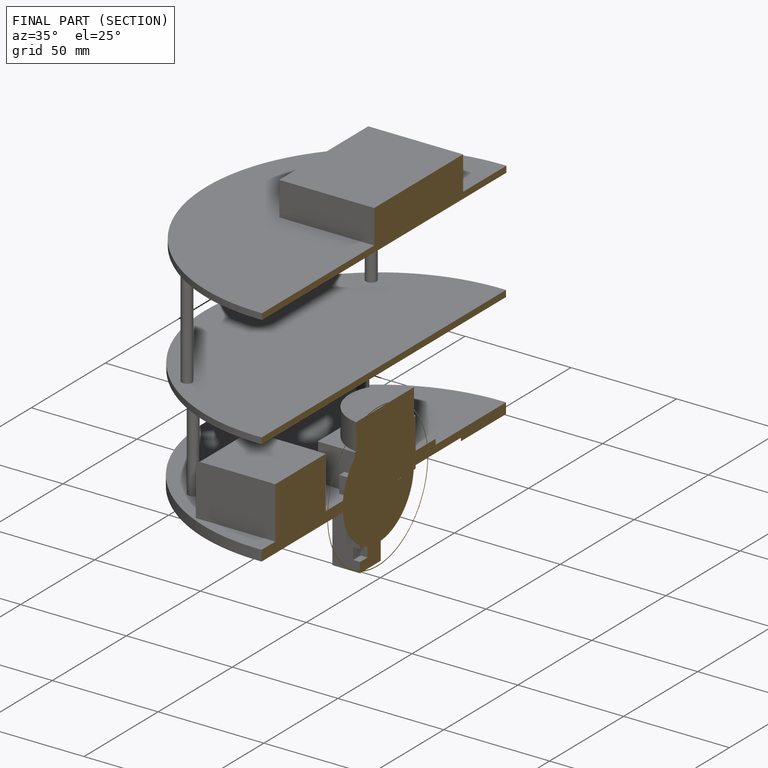
[diagram: finished part — half-section view (interior)]
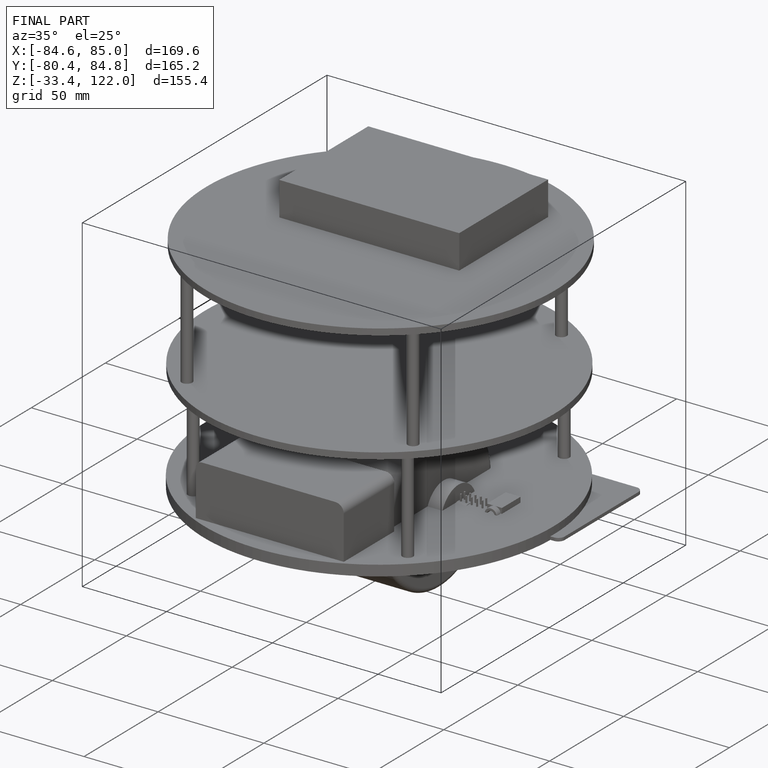
[diagram: finished part — iso view with bounding-box wireframe]
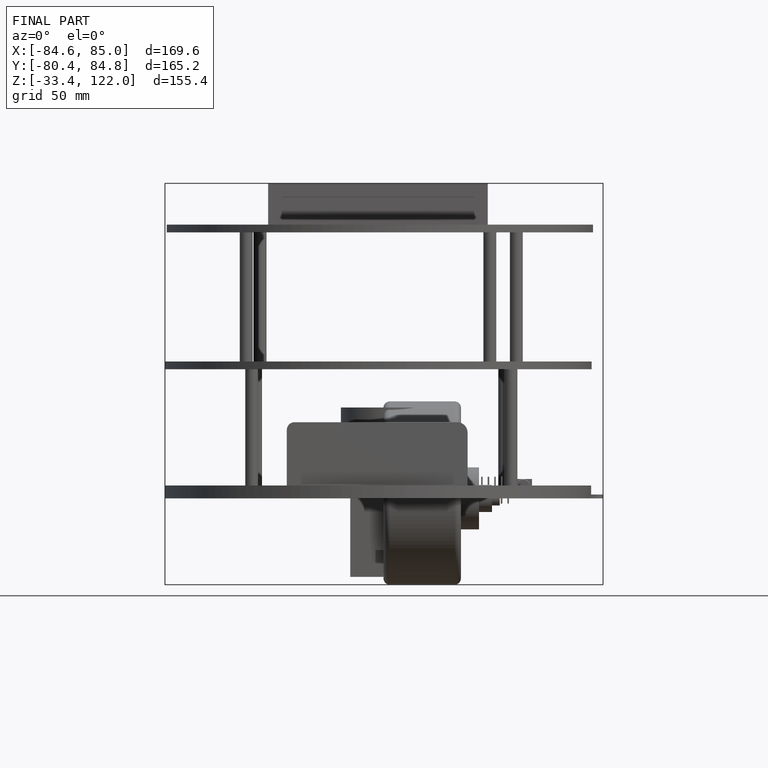
[diagram: finished part — front view with bounding-box wireframe]
